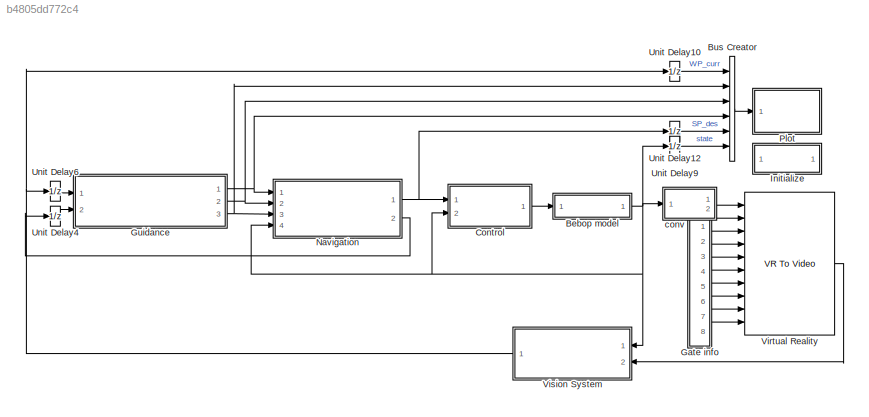
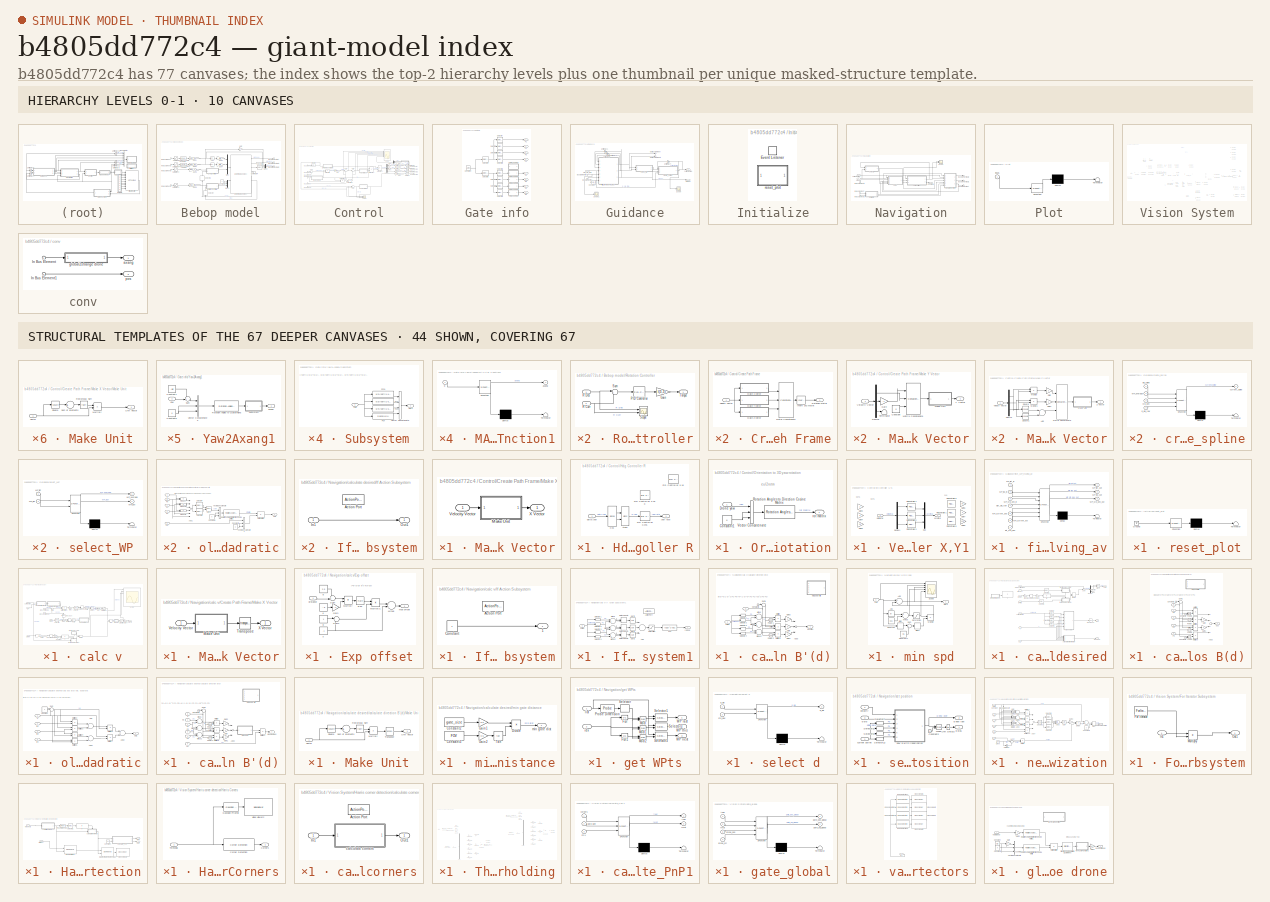
[diagram: thumbnail index - top-2 hierarchy levels (10 canvases) + 44 structural-template representatives of the remaining 67 canvases]
MODEL slx_b4805dd772c4
KIND model
CONFIG AbsTol = 10
CONFIG EnableMultiTasking = off
CONFIG FixedStep = .04
CONFIG MaxStep = 1.00
CONFIG MinStep = 0.005
CONFIG RelTol = 10
CONFIG SampleTimeConstraint = Unconstrained
CONFIG Solver = VariableStepAuto
CONFIG SolverName = VariableStepAuto
CONFIG StartTime = 0.0
CONFIG StopTime = 50
BLOCK [SubSystem] Bebop model
  Ports = [1, 1]
  RequestExecContextInheritance = off
BLOCK [Reference] Bebop model/6DOF (Euler Angles)  REF=shared6dof/6DOF (Euler Angles)
  Ports = [2, 8]
  SourceBlock = shared6dof/6DOF (Euler Angles)
  SourceProductBaseCode = AE
  SourceProductName = Aerospace Blockset
  SourceType = 6DOF EoM (Body Axis)
BLOCK [Outport] Bebop model/Bus Element Out
  IconDisplay = Port number
BLOCK [Outport] Bebop model/Bus Element Out1
  IconDisplay = Port number
BLOCK [Outport] Bebop model/Bus Element Out2
  IconDisplay = Port number
BLOCK [Constant] Bebop model/Constant2
  Value = 0
BLOCK [Gain] Bebop model/Gain
  Gain = -1
  OutDataTypeStr = Inherit: Inherit via internal rule
  ParamDataTypeStr = Inherit: Inherit via internal rule
  SaturateOnIntegerOverflow = off
BLOCK [Gain] Bebop model/Gain1
  Gain = max_theta_X
  OutDataTypeStr = Inherit: Inherit via internal rule
  ParamDataTypeStr = Inherit: Inherit via internal rule
  SaturateOnIntegerOverflow = off
BLOCK [Gain] Bebop model/Gain2
  Gain = max_theta_Y
  OutDataTypeStr = Inherit: Inherit via internal rule
  ParamDataTypeStr = Inherit: Inherit via internal rule
  SaturateOnIntegerOverflow = off
BLOCK [Gain] Bebop model/Gain3
  Gain = m*g
  OutDataTypeStr = Inherit: Inherit via internal rule
  ParamDataTypeStr = Inherit: Inherit via internal rule
  SaturateOnIntegerOverflow = off
BLOCK [Gain] Bebop model/Gain4
  Gain = m*g
  OutDataTypeStr = Inherit: Inherit via internal rule
  ParamDataTypeStr = Inherit: Inherit via internal rule
  SaturateOnIntegerOverflow = off
BLOCK [Gain] Bebop model/Gain5
  Gain = max_v_Z
  OutDataTypeStr = Inherit: Inherit via internal rule
  ParamDataTypeStr = Inherit: Inherit via internal rule
  SaturateOnIntegerOverflow = off
BLOCK [Gain] Bebop model/Gain6
  Gain = max_rot_Z
  OutDataTypeStr = Inherit: Inherit via internal rule
  ParamDataTypeStr = Inherit: Inherit via internal rule
  SaturateOnIntegerOverflow = off
BLOCK [Inport] Bebop model/In Bus Element
  IconDisplay = Port number
BLOCK [Inport] Bebop model/In Bus Element1
  IconDisplay = Port number
BLOCK [Inport] Bebop model/In Bus Element2
  IconDisplay = Port number
BLOCK [Inport] Bebop model/In Bus Element3
  IconDisplay = Port number
BLOCK [Reference] Bebop model/Linear Second-Order Actuator  REF=aerolibactuator/Linear Second-Order Actuator
  Ports = [1, 1]
  SourceBlock = aerolibactuator/Linear Second-Order Actuator
  SourceProductBaseCode = AE
  SourceProductName = Aerospace Blockset
  SourceType = LinearSecondOrderActuator
BLOCK [Reference] Bebop model/Linear Second-Order Actuator1  REF=aerolibactuator/Linear Second-Order Actuator
  Ports = [1, 1]
  SourceBlock = aerolibactuator/Linear Second-Order Actuator
  SourceProductBaseCode = AE
  SourceProductName = Aerospace Blockset
  SourceType = LinearSecondOrderActuator
BLOCK [Mux] Bebop model/Mux
  DisplayOption = bar
  Inputs = 3
  Ports = [3, 1]
BLOCK [Mux] Bebop model/Mux1
  DisplayOption = bar
  Inputs = 3
  Ports = [3, 1]
BLOCK [Mux] Bebop model/Mux2
  DisplayOption = bar
  Inputs = 3
  Ports = [3, 1]
BLOCK [SubSystem] Bebop model/Rotation Controller
  Ports = [2, 1]
  RequestExecContextInheritance = off
BLOCK [Gain] Bebop model/Rotation Controller/Gain
  Gain = I(3,3)
  OutDataTypeStr = Inherit: Inherit via internal rule
  ParamDataTypeStr = Inherit: Inherit via internal rule
  SaturateOnIntegerOverflow = off
BLOCK [Reference] Bebop model/Rotation Controller/PID Controller  REF=simulink/Continuous/PID Controller
  Ports = [1, 1]
  SourceBlock = simulink/Continuous/PID Controller
  SourceProductBaseCode = SL
  SourceProductName = Simulink
  SourceType = PID 1dof
BLOCK [Inport] Bebop model/Rotation Controller/R Curr
  IconDisplay = Port number
  Port = 2
BLOCK [Inport] Bebop model/Rotation Controller/R Des
  IconDisplay = Port number
BLOCK [Scope] Bebop model/Rotation Controller/Scope
  Floating = off
  NumInputPorts = 2
  Ports = [2]
  ScopeSpecificationString = Simulink.scopes.TimeScopeBlockCfg('CurrentConfiguration', extmgr.ConfigurationSet(extmgr.Configuration('Core','General UI',true),extmgr.Configuration('Core','Source UI',true),extmgr.Configuration('Sources','WiredSimulink',true,'DataLoggingVariableName','ScopeData5'),extmgr.Configuration('Visuals','Time Domain',true,'SerializedDisplays',{struct('MinYLimReal','-1.00000','MaxYLimReal','1.00000','YLab...<+1373ch>
BLOCK [Sum] Bebop model/Rotation Controller/Sum
  IconShape = round
  InputSameDT = off
  Inputs = |+-
  OutDataTypeStr = Inherit: Inherit via internal rule
  Ports = [2, 1]
  SaturateOnIntegerOverflow = off
BLOCK [Outport] Bebop model/Rotation Controller/Torque
  IconDisplay = Port number
BLOCK [Saturate] Bebop model/Saturation
  InputPortMap = u0
  LowerLimit = -1
  Ports = [1, 1]
  UpperLimit = 1
BLOCK [Saturate] Bebop model/Saturation1
  InputPortMap = u0
  LowerLimit = -1
  Ports = [1, 1]
  UpperLimit = 1
BLOCK [Saturate] Bebop model/Saturation2
  InputPortMap = u0
  LowerLimit = -1
  Ports = [1, 1]
  UpperLimit = 1
BLOCK [Saturate] Bebop model/Saturation3
  InputPortMap = u0
  LowerLimit = -1
  Ports = [1, 1]
  UpperLimit = 1
BLOCK [Selector] Bebop model/Selector
  IndexOptions = Index vector (dialog)
  Indices = 3
  InputPortWidth = 3
  OutputSizes = 1
  Ports = [1, 1]
BLOCK [Selector] Bebop model/Selector1
  IndexOptions = Index vector (dialog)
  Indices = 3
  InputPortWidth = 3
  OutputSizes = 1
  Ports = [1, 1]
BLOCK [Selector] Bebop model/Selector2
  IndexOptions = Index vector (dialog)
  Indices = 3
  InputPortWidth = 3
  OutputSizes = 1
  Ports = [1, 1]
BLOCK [Trigonometry] Bebop model/Tan
  Operator = tan
  Ports = [1, 1]
BLOCK [Trigonometry] Bebop model/Tan1
  Operator = tan
  Ports = [1, 1]
BLOCK [Terminator] Bebop model/Terminator4
BLOCK [SubSystem] Bebop model/Z Vel Controller
  Ports = [2, 1]
  RequestExecContextInheritance = off
BLOCK [Outport] Bebop model/Z Vel Controller/Fz
  IconDisplay = Port number
BLOCK [Gain] Bebop model/Z Vel Controller/Gain
  Gain = m
  OutDataTypeStr = Inherit: Inherit via internal rule
  ParamDataTypeStr = Inherit: Inherit via internal rule
  SaturateOnIntegerOverflow = off
BLOCK [Reference] Bebop model/Z Vel Controller/PID Controller  REF=simulink/Continuous/PID Controller
  Ports = [1, 1]
  SourceBlock = simulink/Continuous/PID Controller
  SourceProductBaseCode = SL
  SourceProductName = Simulink
  SourceType = PID 1dof
BLOCK [Scope] Bebop model/Z Vel Controller/Scope
  Floating = off
  NumInputPorts = 2
  Ports = [2]
  ScopeSpecificationString = Simulink.scopes.TimeScopeBlockCfg('CurrentConfiguration', extmgr.ConfigurationSet(extmgr.Configuration('Core','General UI',true),extmgr.Configuration('Core','Source UI',true),extmgr.Configuration('Sources','WiredSimulink',true,'DataLoggingVariableName','ScopeData6'),extmgr.Configuration('Visuals','Time Domain',true,'SerializedDisplays',{struct('MinYLimReal','-0.62509','MaxYLimReal','0.62582','YLab...<+1373ch>
BLOCK [Sum] Bebop model/Z Vel Controller/Sum
  IconShape = round
  InputSameDT = off
  Inputs = |+-
  OutDataTypeStr = Inherit: Inherit via internal rule
  Ports = [2, 1]
  SaturateOnIntegerOverflow = off
BLOCK [Inport] Bebop model/Z Vel Controller/Z Curr
  IconDisplay = Port number
  Port = 2
BLOCK [Inport] Bebop model/Z Vel Controller/Z Des
  IconDisplay = Port number
BLOCK [BusCreator] Bus Creator
  DisplayOption = bar
  InheritFromInputs = on
  Inputs = 6
  NonVirtualBus = on
  OutDataTypeStr = Bus: PlotBus
  Ports = [6, 1]
BLOCK [SubSystem] Control
  Ports = [2, 1]
  RequestExecContextInheritance = off
BLOCK [Outport] Control/Bus Element Out
  IconDisplay = Port number
BLOCK [Outport] Control/Bus Element Out1
  IconDisplay = Port number
BLOCK [Outport] Control/Bus Element Out2
  IconDisplay = Port number
BLOCK [Outport] Control/Bus Element Out3
  IconDisplay = Port number
BLOCK [SubSystem] Control/Create Path Frame
  Ports = [1, 1]
  RequestExecContextInheritance = off
BLOCK [Reference] Control/Create Path Frame/Invert 3x3 Matrix  REF=aerolibutil/Invert 
3x3 Matrix
  Ports = [1, 1]
  SourceBlock = aerolibutil/Invert \n3x3 Matrix
  SourceProductBaseCode = AE
  SourceProductName = Aerospace Blockset
  SourceType = Invert 3x3 Matrix
BLOCK [SubSystem] Control/Create Path Frame/Make X Vector
  Ports = [1, 1]
  RequestExecContextInheritance = off
BLOCK [SubSystem] Control/Create Path Frame/Make X Vector/Make Unit
  Ports = [1, 1]
  RequestExecContextInheritance = off
BLOCK [Product] Control/Create Path Frame/Make X Vector/Make Unit/Multiply
  InputSameDT = off
  OutDataTypeStr = Inherit: Inherit via internal rule
  Ports = [2, 1]
  RndMeth = Floor
  SaturateOnIntegerOverflow = off
BLOCK [Sqrt] Control/Create Path Frame/Make X Vector/Make Unit/Reciprocal Sqrt
  Operator = rSqrt
BLOCK [Math] Control/Create Path Frame/Make X Vector/Make Unit/Square
  Operator = square
  Ports = [1, 1]
BLOCK [Sum] Control/Create Path Frame/Make X Vector/Make Unit/Sum of Elements
  InputSameDT = off
  Inputs = +
  OutDataTypeStr = Inherit: Inherit via internal rule
  Ports = [1, 1]
  SaturateOnIntegerOverflow = off
BLOCK [Outport] Control/Create Path Frame/Make X Vector/Make Unit/Unit Vector
  IconDisplay = Port number
BLOCK [Inport] Control/Create Path Frame/Make X Vector/Make Unit/Vector
  IconDisplay = Port number
BLOCK [Inport] Control/Create Path Frame/Make X Vector/Velocity Vector
  IconDisplay = Port number
BLOCK [Outport] Control/Create Path Frame/Make X Vector/X Vector
  IconDisplay = Port number
BLOCK [SubSystem] Control/Create Path Frame/Make Y Vector
  Ports = [1, 1]
  RequestExecContextInheritance = off
BLOCK [Constant] Control/Create Path Frame/Make Y Vector/Constant
  Value = 0
BLOCK [Demux] Control/Create Path Frame/Make Y Vector/Demux
  DisplayOption = bar
  Outputs = 3
  Ports = [1, 3]
BLOCK [Gain] Control/Create Path Frame/Make Y Vector/Gain
  Gain = -1
  OutDataTypeStr = Inherit: Inherit via internal rule
  ParamDataTypeStr = Inherit: Inherit via internal rule
  SaturateOnIntegerOverflow = off
BLOCK [SubSystem] Control/Create Path Frame/Make Y Vector/Make Unit
  Ports = [1, 1]
  RequestExecContextInheritance = off
BLOCK [Product] Control/Create Path Frame/Make Y Vector/Make Unit/Multiply
  InputSameDT = off
  OutDataTypeStr = Inherit: Inherit via internal rule
  Ports = [2, 1]
  RndMeth = Floor
  SaturateOnIntegerOverflow = off
BLOCK [Sqrt] Control/Create Path Frame/Make Y Vector/Make Unit/Reciprocal Sqrt
  Operator = rSqrt
BLOCK [Math] Control/Create Path Frame/Make Y Vector/Make Unit/Square
  Operator = square
  Ports = [1, 1]
BLOCK [Sum] Control/Create Path Frame/Make Y Vector/Make Unit/Sum of Elements
  InputSameDT = off
  Inputs = +
  OutDataTypeStr = Inherit: Inherit via internal rule
  Ports = [1, 1]
  SaturateOnIntegerOverflow = off
BLOCK [Outport] Control/Create Path Frame/Make Y Vector/Make Unit/Unit Vector
  IconDisplay = Port number
BLOCK [Inport] Control/Create Path Frame/Make Y Vector/Make Unit/Vector
  IconDisplay = Port number
BLOCK [Concatenate] Control/Create Path Frame/Make Y Vector/Matrix Concatenate
  Mode = Multidimensional array
  NumInputs = 3
  Ports = [3, 1]
BLOCK [Terminator] Control/Create Path Frame/Make Y Vector/Terminator
BLOCK [Inport] Control/Create Path Frame/Make Y Vector/Velocity Vector
  IconDisplay = Port number
BLOCK [Outport] Control/Create Path Frame/Make Y Vector/Y Vector
  IconDisplay = Port number
BLOCK [SubSystem] Control/Create Path Frame/Make Z Vector
  Ports = [1, 1]
  RequestExecContextInheritance = off
BLOCK [Sum] Control/Create Path Frame/Make Z Vector/Add
  InputSameDT = off
  OutDataTypeStr = Inherit: Inherit via internal rule
  Ports = [2, 1]
  SaturateOnIntegerOverflow = off
BLOCK [Demux] Control/Create Path Frame/Make Z Vector/Demux
  DisplayOption = bar
  Outputs = 3
  Ports = [1, 3]
BLOCK [Gain] Control/Create Path Frame/Make Z Vector/Gain
  Gain = -1
  OutDataTypeStr = Inherit: Inherit via internal rule
  ParamDataTypeStr = Inherit: Inherit via internal rule
  SaturateOnIntegerOverflow = off
BLOCK [Gain] Control/Create Path Frame/Make Z Vector/Gain1
  Gain = -1
  OutDataTypeStr = Inherit: Inherit via internal rule
  ParamDataTypeStr = Inherit: Inherit via internal rule
  SaturateOnIntegerOverflow = off
BLOCK [SubSystem] Control/Create Path Frame/Make Z Vector/Make Unit
  Ports = [1, 1]
  RequestExecContextInheritance = off
BLOCK [Product] Control/Create Path Frame/Make Z Vector/Make Unit/Multiply
  InputSameDT = off
  OutDataTypeStr = Inherit: Inherit via internal rule
  Ports = [2, 1]
  RndMeth = Floor
  SaturateOnIntegerOverflow = off
BLOCK [Sqrt] Control/Create Path Frame/Make Z Vector/Make Unit/Reciprocal Sqrt
  Operator = rSqrt
BLOCK [Math] Control/Create Path Frame/Make Z Vector/Make Unit/Square
  Operator = square
  Ports = [1, 1]
BLOCK [Sum] Control/Create Path Frame/Make Z Vector/Make Unit/Sum of Elements
  InputSameDT = off
  Inputs = +
  OutDataTypeStr = Inherit: Inherit via internal rule
  Ports = [1, 1]
  SaturateOnIntegerOverflow = off
BLOCK [Outport] Control/Create Path Frame/Make Z Vector/Make Unit/Unit Vector
  IconDisplay = Port number
BLOCK [Inport] Control/Create Path Frame/Make Z Vector/Make Unit/Vector
  IconDisplay = Port number
BLOCK [Concatenate] Control/Create Path Frame/Make Z Vector/Matrix Concatenate
  Mode = Multidimensional array
  NumInputs = 3
  Ports = [3, 1]
BLOCK [Product] Control/Create Path Frame/Make Z Vector/Multiply
  InputSameDT = off
  OutDataTypeStr = Inherit: Inherit via internal rule
  Ports = [2, 1]
  RndMeth = Floor
  SaturateOnIntegerOverflow = off
BLOCK [Product] Control/Create Path Frame/Make Z Vector/Multiply1
  InputSameDT = off
  OutDataTypeStr = Inherit: Inherit via internal rule
  Ports = [2, 1]
  RndMeth = Floor
  SaturateOnIntegerOverflow = off
BLOCK [Math] Control/Create Path Frame/Make Z Vector/Square
  Operator = square
  Ports = [1, 1]
BLOCK [Math] Control/Create Path Frame/Make Z Vector/Square1
  Operator = square
  Ports = [1, 1]
BLOCK [Inport] Control/Create Path Frame/Make Z Vector/Velocity Vector
  IconDisplay = Port number
BLOCK [Outport] Control/Create Path Frame/Make Z Vector/Z Vector
  IconDisplay = Port number
BLOCK [Concatenate] Control/Create Path Frame/Matrix Concatenate
  ConcatenateDimension = 2
  Mode = Multidimensional array
  NumInputs = 3
  Ports = [3, 1]
BLOCK [Outport] Control/Create Path Frame/Rotation Matrix
  IconDisplay = Port number
BLOCK [Inport] Control/Create Path Frame/Velocity Vector
  IconDisplay = Port number
BLOCK [Demux] Control/Demux1
  DisplayOption = bar
  Outputs = 3
  Ports = [1, 3]
BLOCK [Gain] Control/Gain
  Gain = 1*[1;1;1]
  OutDataTypeStr = Inherit: Inherit via internal rule
  ParamDataTypeStr = Inherit: Inherit via internal rule
  SaturateOnIntegerOverflow = off
BLOCK [Gain] Control/Gain1
  Gain = 1/max_v_Z
  OutDataTypeStr = Inherit: Inherit via internal rule
  ParamDataTypeStr = Inherit: Inherit via internal rule
  SaturateOnIntegerOverflow = off
BLOCK [Gain] Control/Gain2
  Gain = 1/max_rot_Z
  OutDataTypeStr = Inherit: Inherit via internal rule
  ParamDataTypeStr = Inherit: Inherit via internal rule
  SaturateOnIntegerOverflow = off
BLOCK [Gain] Control/Gain5
  Gain = 1/g
  OutDataTypeStr = Inherit: Inherit via internal rule
  ParamDataTypeStr = Inherit: Inherit via internal rule
  SaturateOnIntegerOverflow = off
BLOCK [Gain] Control/Gain6
  Gain = 1/g
  OutDataTypeStr = Inherit: Inherit via internal rule
  ParamDataTypeStr = Inherit: Inherit via internal rule
  SaturateOnIntegerOverflow = off
BLOCK [Gain] Control/Gain7
  Gain = 1/max_theta_X
  OutDataTypeStr = Inherit: Inherit via internal rule
  ParamDataTypeStr = Inherit: Inherit via internal rule
  SaturateOnIntegerOverflow = off
BLOCK [Gain] Control/Gain8
  Gain = 1/max_theta_Y
  OutDataTypeStr = Inherit: Inherit via internal rule
  ParamDataTypeStr = Inherit: Inherit via internal rule
  SaturateOnIntegerOverflow = off
BLOCK [SubSystem] Control/Hdg Controller R
  Ports = [1, 1]
  RequestExecContextInheritance = off
BLOCK [Trigonometry] Control/Hdg Controller R/Atan2
  Operator = atan2
  Ports = [2, 1]
BLOCK [Trigonometry] Control/Hdg Controller R/Cos
  Operator = sincos
  Ports = [1, 2]
BLOCK [Reference] Control/Hdg Controller R/PID Controller 0.075  REF=simulink/Continuous/PID Controller
  Ports = [1, 1]
  SourceBlock = simulink/Continuous/PID Controller
  SourceProductBaseCode = SL
  SourceProductName = Simulink
  SourceType = PID 1dof
BLOCK [Reference] Control/Hdg Controller R/PID Controller 0.15  REF=simulink/Continuous/PID Controller
  Ports = [1, 1]
  SourceBlock = simulink/Continuous/PID Controller
  SourceProductBaseCode = SL
  SourceProductName = Simulink
  SourceType = PID 1dof
BLOCK [Reference] Control/Hdg Controller R/PID Controller 0.15 p  REF=simulink/Continuous/PID Controller
  Ports = [1, 1]
  SourceBlock = simulink/Continuous/PID Controller
  SourceProductBaseCode = SL
  SourceProductName = Simulink
  SourceType = PID 1dof
BLOCK [Inport] Control/Hdg Controller R/delta yaw
  IconDisplay = Port number
BLOCK [Outport] Control/Hdg Controller R/yaw rate
  IconDisplay = Port number
BLOCK [Inport] Control/In Bus Element
  IconDisplay = Port number
  Port = 2
BLOCK [Inport] Control/In Bus Element1
  IconDisplay = Port number
  Port = 2
BLOCK [Inport] Control/In Bus Element2
  IconDisplay = Port number
  Port = 2
BLOCK [Inport] Control/In Bus Element3
  IconDisplay = Port number
BLOCK [Inport] Control/In Bus Element4
  IconDisplay = Port number
BLOCK [Inport] Control/In Bus Element5
  IconDisplay = Port number
BLOCK [Product] Control/Matrix Multiply
  InputSameDT = off
  Inputs = **
  Multiplication = Matrix(*)
  OutDataTypeStr = Inherit: Inherit via internal rule
  Ports = [2, 1]
  RndMeth = Floor
  SaturateOnIntegerOverflow = off
BLOCK [Product] Control/Matrix Multiply1
  InputSameDT = off
  Inputs = /*
  Multiplication = Matrix(*)
  OutDataTypeStr = Inherit: Inherit via internal rule
  Ports = [2, 1]
  RndMeth = Floor
  SaturateOnIntegerOverflow = off
BLOCK [Product] Control/Matrix Multiply2
  InputSameDT = off
  Inputs = **
  Multiplication = Matrix(*)
  OutDataTypeStr = Inherit: Inherit via internal rule
  Ports = [2, 1]
  RndMeth = Floor
  SaturateOnIntegerOverflow = off
BLOCK [Product] Control/Matrix Multiply3
  InputSameDT = off
  Inputs = **
  Multiplication = Matrix(*)
  OutDataTypeStr = Inherit: Inherit via internal rule
  Ports = [2, 1]
  RndMeth = Floor
  SaturateOnIntegerOverflow = off
BLOCK [Product] Control/Matrix Multiply5
  InputSameDT = off
  Inputs = **
  Multiplication = Matrix(*)
  OutDataTypeStr = Inherit: Inherit via internal rule
  Ports = [2, 1]
  RndMeth = Floor
  SaturateOnIntegerOverflow = off
BLOCK [Mux] Control/Mux
  DisplayOption = bar
  Ports = [4, 1]
BLOCK [SubSystem] Control/Orientation to 3D yaw rotation
  Ports = [1, 1]
  RequestExecContextInheritance = off
BLOCK [Constant] Control/Orientation to 3D yaw rotation/Constant1
  Value = 0
BLOCK [Inport] Control/Orientation to 3D yaw rotation/Drone yaw
  IconDisplay = Port number
BLOCK [Reference] Control/Orientation to 3D yaw rotation/Rotation Angles to Direction Cosine Matrix  REF=sharedtransform/Rotation Angles to
Direction Cosine Matrix
  AttributesFormatString = Rotation Order: %<rotationOrder>
  Ports = [1, 1]
  SourceBlock = sharedtransform/Rotation Angles to\nDirection Cosine Matrix
  SourceProductBaseCode = AE
  SourceProductName = Aerospace Blockset
  SourceType = Ang2DCM
BLOCK [Concatenate] Control/Orientation to 3D yaw rotation/Vector Concatenate
  NumInputs = 3
  Ports = [3, 1]
BLOCK [Outport] Control/Orientation to 3D yaw rotation/rot matrix
  IconDisplay = Port number
BLOCK [Saturate] Control/Saturation
  Commented = through
  InputPortMap = u0
  LowerLimit = -1
  Ports = [1, 1]
  UpperLimit = 1
BLOCK [Saturate] Control/Saturation1
  Commented = through
  InputPortMap = u0
  LowerLimit = -1
  Ports = [1, 1]
  UpperLimit = 1
BLOCK [Saturate] Control/Saturation2
  Commented = through
  InputPortMap = u0
  LowerLimit = -1
  Ports = [1, 1]
  UpperLimit = 1
BLOCK [Saturate] Control/Saturation3
  Commented = through
  InputPortMap = u0
  LowerLimit = -1
  Ports = [1, 1]
  UpperLimit = 1
BLOCK [Scope] Control/Scope
  Commented = on
  Floating = off
  NumInputPorts = 10
  Ports = [10]
  ScopeSpecificationString = Simulink.scopes.TimeScopeBlockCfg('CurrentConfiguration', extmgr.ConfigurationSet(extmgr.Configuration('Core','General UI',true),extmgr.Configuration('Core','Source UI',true),extmgr.Configuration('Sources','WiredSimulink',true,'DataLoggingVariableName','ScopeData3'),extmgr.Configuration('Visuals','Time Domain',true,'SerializedDisplays',{struct('MinYLimReal','-0.56825','MaxYLimReal','0.2559','YLabe...<+2273ch>
BLOCK [Scope] Control/Scope1
  Commented = on
  Floating = off
  NumInputPorts = 4
  Ports = [4]
  ScopeSpecificationString = Simulink.scopes.TimeScopeBlockCfg('CurrentConfiguration', extmgr.ConfigurationSet(extmgr.Configuration('Core','General UI',true),extmgr.Configuration('Core','Source UI',true),extmgr.Configuration('Sources','WiredSimulink',true,'DataLoggingVariableName','ScopeData4'),extmgr.Configuration('Visuals','Time Domain',true,'SerializedDisplays',{struct('MinYLimReal','-3.46855','MaxYLimReal','3.66777','YLab...<+1545ch>
BLOCK [Selector] Control/Selector2
  IndexMode = Zero-based
  IndexOptions = Index vector (dialog)
  Indices = 2
  InputPortWidth = 3
  OutputSizes = 1
  Ports = [1, 1]
BLOCK [Sum] Control/Sum1
  IconShape = round
  InputSameDT = off
  Inputs = |+-
  OutDataTypeStr = Inherit: Inherit via internal rule
  Ports = [2, 1]
  SaturateOnIntegerOverflow = off
BLOCK [Sum] Control/Sum2
  IconShape = round
  InputSameDT = off
  Inputs = |++
  OutDataTypeStr = Inherit: Inherit via internal rule
  Ports = [2, 1]
  SaturateOnIntegerOverflow = off
BLOCK [Sum] Control/Sum3
  IconShape = round
  InputSameDT = off
  Inputs = |+-
  OutDataTypeStr = Inherit: Inherit via internal rule
  Ports = [2, 1]
  SaturateOnIntegerOverflow = off
BLOCK [Sum] Control/Sum4
  IconShape = round
  InputSameDT = off
  Inputs = |+-
  OutDataTypeStr = Inherit: Inherit via internal rule
  Ports = [2, 1]
  SaturateOnIntegerOverflow = off
BLOCK [SubSystem] Control/Vel Controller X,Y1
  Ports = [1, 1]
  RequestExecContextInheritance = off
BLOCK [Demux] Control/Vel Controller X,Y1/Demux1
  DisplayOption = bar
  Outputs = 3
  Ports = [1, 3]
BLOCK [Gain] Control/Vel Controller X,Y1/Gain3
  Gain = 2
  OutDataTypeStr = Inherit: Inherit via internal rule
  ParamDataTypeStr = Inherit: Inherit via internal rule
  SaturateOnIntegerOverflow = off
BLOCK [Gain] Control/Vel Controller X,Y1/Gain4
  Gain = 8
  OutDataTypeStr = Inherit: Inherit via internal rule
  ParamDataTypeStr = Inherit: Inherit via internal rule
  SaturateOnIntegerOverflow = off
BLOCK [Gain] Control/Vel Controller X,Y1/Gain5
  Gain = 2.5
  OutDataTypeStr = Inherit: Inherit via internal rule
  ParamDataTypeStr = Inherit: Inherit via internal rule
  SaturateOnIntegerOverflow = off
BLOCK [Gain] Control/Vel Controller X,Y1/Gain6
  Gain = .75
  OutDataTypeStr = Inherit: Inherit via internal rule
  ParamDataTypeStr = Inherit: Inherit via internal rule
  SaturateOnIntegerOverflow = off
BLOCK [Gain] Control/Vel Controller X,Y1/Gain7
  Gain = 3
  OutDataTypeStr = Inherit: Inherit via internal rule
  ParamDataTypeStr = Inherit: Inherit via internal rule
  SaturateOnIntegerOverflow = off
BLOCK [Gain] Control/Vel Controller X,Y1/Gain8
  Gain = 1.25
  OutDataTypeStr = Inherit: Inherit via internal rule
  ParamDataTypeStr = Inherit: Inherit via internal rule
  SaturateOnIntegerOverflow = off
BLOCK [Mux] Control/Vel Controller X,Y1/Mux
  DisplayOption = bar
  Inputs = 3
  Ports = [3, 1]
BLOCK [Reference] Control/Vel Controller X,Y1/PID Controller1  REF=simulink/Continuous/PID Controller
  Ports = [1, 1]
  SourceBlock = simulink/Continuous/PID Controller
  SourceProductBaseCode = SL
  SourceProductName = Simulink
  SourceType = PID 1dof
BLOCK [Reference] Control/Vel Controller X,Y1/PID Controller2  REF=simulink/Continuous/PID Controller
  Ports = [1, 1]
  SourceBlock = simulink/Continuous/PID Controller
  SourceProductBaseCode = SL
  SourceProductName = Simulink
  SourceType = PID 1dof
BLOCK [Reference] Control/Vel Controller X,Y1/PID Controller3  REF=simulink/Continuous/PID Controller
  Ports = [1, 1]
  SourceBlock = simulink/Continuous/PID Controller
  SourceProductBaseCode = SL
  SourceProductName = Simulink
  SourceType = PID 1dof
BLOCK [Reference] Control/Vel Controller X,Y1/PID Controller4  REF=simulink/Continuous/PID Controller
  Ports = [1, 1]
  SourceBlock = simulink/Continuous/PID Controller
  SourceProductBaseCode = SL
  SourceProductName = Simulink
  SourceType = PID 1dof
BLOCK [Reference] Control/Vel Controller X,Y1/PID Controller5  REF=simulink/Continuous/PID Controller
  Ports = [1, 1]
  SourceBlock = simulink/Continuous/PID Controller
  SourceProductBaseCode = SL
  SourceProductName = Simulink
  SourceType = PID 1dof
BLOCK [Reference] Control/Vel Controller X,Y1/PID Controller6  REF=simulink/Continuous/PID Controller
  Ports = [1, 1]
  SourceBlock = simulink/Continuous/PID Controller
  SourceProductBaseCode = SL
  SourceProductName = Simulink
  SourceType = PID 1dof
BLOCK [Outport] Control/Vel Controller X,Y1/accel traj
  IconDisplay = Port number
BLOCK [Inport] Control/Vel Controller X,Y1/delta V traj
  IconDisplay = Port number
BLOCK [SubSystem] Gate info
  Ports = [0, 8]
  RequestExecContextInheritance = off
BLOCK [Constant] Gate info/Constant
  Value = gates
BLOCK [Outport] Gate info/O1
  IconDisplay = Port number
BLOCK [Outport] Gate info/O2
  IconDisplay = Port number
  Port = 3
BLOCK [Outport] Gate info/O3
  IconDisplay = Port number
  Port = 5
BLOCK [Outport] Gate info/O4
  IconDisplay = Port number
  Port = 7
BLOCK [Outport] Gate info/P1
  IconDisplay = Port number
  Port = 2
BLOCK [Outport] Gate info/P2
  IconDisplay = Port number
  Port = 4
BLOCK [Outport] Gate info/P3
  IconDisplay = Port number
  Port = 6
BLOCK [Outport] Gate info/P4
  IconDisplay = Port number
  Port = 8
BLOCK [Selector] Gate info/Selector
  IndexMode = Zero-based
  IndexOptions = Index vector (dialog),Select all
  Indices = 0,1
  InputPortWidth = 3
  NumberOfDimensions = 2
  OutputSizes = 1,1
  Ports = [1, 1]
BLOCK [Selector] Gate info/Selector1
  IndexMode = Zero-based
  IndexOptions = Index vector (dialog),Select all
  Indices = 1,1
  InputPortWidth = 3
  NumberOfDimensions = 2
  OutputSizes = 1,1
  Ports = [1, 1]
BLOCK [Selector] Gate info/Selector2
  IndexMode = Zero-based
  IndexOptions = Index vector (dialog),Select all
  Indices = 2,1
  InputPortWidth = 3
  NumberOfDimensions = 2
  OutputSizes = 1,1
  Ports = [1, 1]
BLOCK [Selector] Gate info/Selector3
  IndexMode = Zero-based
  IndexOptions = Index vector (dialog),Select all
  Indices = 3,1
  InputPortWidth = 3
  NumberOfDimensions = 2
  OutputSizes = 1,1
  Ports = [1, 1]
BLOCK [Selector] Gate info/Selector4
  IndexMode = Zero-based
  IndexOptions = Select all,Index vector (dialog)
  Indices = 4,[0 1 2]
  InputPortWidth = 3
  NumberOfDimensions = 2
  OutputSizes = 1,1
  Ports = [1, 1]
BLOCK [Selector] Gate info/Selector5
  IndexMode = Zero-based
  IndexOptions = Select all,Index vector (dialog)
  Indices = 4,3
  InputPortWidth = 3
  NumberOfDimensions = 2
  OutputSizes = 1,1
  Ports = [1, 1]
BLOCK [Selector] Gate info/Selector6
  IndexMode = Zero-based
  IndexOptions = Index vector (dialog),Select all
  Indices = 0,1
  InputPortWidth = 3
  NumberOfDimensions = 2
  OutputSizes = 1,1
  Ports = [1, 1]
BLOCK [Selector] Gate info/Selector7
  IndexMode = Zero-based
  IndexOptions = Index vector (dialog),Select all
  Indices = 1,1
  InputPortWidth = 3
  NumberOfDimensions = 2
  OutputSizes = 1,1
  Ports = [1, 1]
BLOCK [Selector] Gate info/Selector8
  IndexMode = Zero-based
  IndexOptions = Index vector (dialog),Select all
  Indices = 2,1
  InputPortWidth = 3
  NumberOfDimensions = 2
  OutputSizes = 1,1
  Ports = [1, 1]
BLOCK [Selector] Gate info/Selector9
  IndexMode = Zero-based
  IndexOptions = Index vector (dialog),Select all
  Indices = 3,1
  InputPortWidth = 3
  NumberOfDimensions = 2
  OutputSizes = 1,1
  Ports = [1, 1]
BLOCK [SubSystem] Gate info/Yaw2Axang1
  Ports = [1, 1]
  RequestExecContextInheritance = off
BLOCK [Constant] Gate info/Yaw2Axang1/Constant6
  Value = 0
BLOCK [Constant] Gate info/Yaw2Axang1/Constant7
  Value = -pi/2
BLOCK [Reference] Gate info/Yaw2Axang1/Rotation Angles to Quaternions  REF=sharedtransform/Rotation Angles to Quaternions
  AttributesFormatString = Rotation Order: %<rotationOrder>
  Ports = [1, 1]
  SourceBlock = sharedtransform/Rotation Angles to Quaternions
  SourceProductBaseCode = AE
  SourceProductName = Aerospace Blockset
  SourceType = Ang2Quat
BLOCK [SubSystem] Gate info/Yaw2Axang1/Subsystem
  Ports = [1, 1]
  RequestExecContextInheritance = off
BLOCK [Fcn] Gate info/Yaw2Axang1/Subsystem/Fcn
  Expr = 2*acos(u(1))
BLOCK [Fcn] Gate info/Yaw2Axang1/Subsystem/Fcn1
  Expr = u(2)/sqrt(1-u(1)*u(1))
BLOCK [Fcn] Gate info/Yaw2Axang1/Subsystem/Fcn2
  Expr = u(3)/sqrt(1-u(1)*u(1))
BLOCK [Fcn] Gate info/Yaw2Axang1/Subsystem/Fcn3
  Expr = u(4)/sqrt(1-u(1)*u(1))
BLOCK [Inport] Gate info/Yaw2Axang1/Subsystem/In1
  IconDisplay = Port number
BLOCK [Outport] Gate info/Yaw2Axang1/Subsystem/Out1
  IconDisplay = Port number
BLOCK [Concatenate] Gate info/Yaw2Axang1/Subsystem/Vector Concatenate
  NumInputs = 4
  Ports = [4, 1]
BLOCK [Sum] Gate info/Yaw2Axang1/Sum
  IconShape = round
  InputSameDT = off
  Inputs = ++|
  OutDataTypeStr = Inherit: Inherit via internal rule
  Ports = [2, 1]
  SaturateOnIntegerOverflow = off
BLOCK [Concatenate] Gate info/Yaw2Axang1/Vector Concatenate2
  NumInputs = 3
  Ports = [3, 1]
BLOCK [Inport] Gate info/Yaw2Axang1/Yaw
  IconDisplay = Port number
BLOCK [Outport] Gate info/Yaw2Axang1/axang
  IconDisplay = Port number
BLOCK [SubSystem] Gate info/Yaw2Axang2
  Ports = [1, 1]
  RequestExecContextInheritance = off
BLOCK [Constant] Gate info/Yaw2Axang2/Constant6
  Value = 0
BLOCK [Constant] Gate info/Yaw2Axang2/Constant7
  Value = -pi/2
BLOCK [Reference] Gate info/Yaw2Axang2/Rotation Angles to Quaternions  REF=sharedtransform/Rotation Angles to Quaternions
  AttributesFormatString = Rotation Order: %<rotationOrder>
  Ports = [1, 1]
  SourceBlock = sharedtransform/Rotation Angles to Quaternions
  SourceProductBaseCode = AE
  SourceProductName = Aerospace Blockset
  SourceType = Ang2Quat
BLOCK [SubSystem] Gate info/Yaw2Axang2/Subsystem
  Ports = [1, 1]
  RequestExecContextInheritance = off
BLOCK [Fcn] Gate info/Yaw2Axang2/Subsystem/Fcn
  Expr = 2*acos(u(1))
BLOCK [Fcn] Gate info/Yaw2Axang2/Subsystem/Fcn1
  Expr = u(2)/sqrt(1-u(1)*u(1))
BLOCK [Fcn] Gate info/Yaw2Axang2/Subsystem/Fcn2
  Expr = u(3)/sqrt(1-u(1)*u(1))
BLOCK [Fcn] Gate info/Yaw2Axang2/Subsystem/Fcn3
  Expr = u(4)/sqrt(1-u(1)*u(1))
BLOCK [Inport] Gate info/Yaw2Axang2/Subsystem/In1
  IconDisplay = Port number
BLOCK [Outport] Gate info/Yaw2Axang2/Subsystem/Out1
  IconDisplay = Port number
BLOCK [Concatenate] Gate info/Yaw2Axang2/Subsystem/Vector Concatenate
  NumInputs = 4
  Ports = [4, 1]
BLOCK [Sum] Gate info/Yaw2Axang2/Sum
  IconShape = round
  InputSameDT = off
  Inputs = ++|
  OutDataTypeStr = Inherit: Inherit via internal rule
  Ports = [2, 1]
  SaturateOnIntegerOverflow = off
BLOCK [Concatenate] Gate info/Yaw2Axang2/Vector Concatenate2
  NumInputs = 3
  Ports = [3, 1]
BLOCK [Inport] Gate info/Yaw2Axang2/Yaw
  IconDisplay = Port number
BLOCK [Outport] Gate info/Yaw2Axang2/axang
  IconDisplay = Port number
BLOCK [SubSystem] Gate info/Yaw2Axang4
  Commented = on
  Ports = [1, 1]
  RequestExecContextInheritance = off
BLOCK [Constant] Gate info/Yaw2Axang4/Constant6
  Value = 0
BLOCK [Constant] Gate info/Yaw2Axang4/Constant7
  Value = -pi/2
BLOCK [SubSystem] Gate info/Yaw2Axang4/MATLAB Function1
  ErrorFcn = Stateflow.Translate.translate
  PermitHierarchicalResolution = ExplicitOnly
  Ports = [1, 1]
  RequestExecContextInheritance = off
  SFBlockType = MATLAB Function
  TreatAsAtomicUnit = on
BLOCK [Demux] Gate info/Yaw2Axang4/MATLAB Function1/ Demux 
  Outputs = 1
  Ports = [1, 1]
BLOCK [S-Function] Gate info/Yaw2Axang4/MATLAB Function1/ SFunction 
  EnableBusSupport = on
  FunctionName = sf_sfun
  PortCounts = [1 2]
  Ports = [1, 2]
  SFcnIsStateOwnerBlock = off
  SFunctionDeploymentMode = off
  Tag = Stateflow S-Function Bebop7_like6_but_spline_only_from_SP 6
BLOCK [Terminator] Gate info/Yaw2Axang4/MATLAB Function1/ Terminator 
BLOCK [Outport] Gate info/Yaw2Axang4/MATLAB Function1/axang
  IconDisplay = Port number
BLOCK [Inport] Gate info/Yaw2Axang4/MATLAB Function1/q
  IconDisplay = Port number
BLOCK [Reference] Gate info/Yaw2Axang4/Rotation Angles to Quaternions  REF=sharedtransform/Rotation Angles to Quaternions
  AttributesFormatString = Rotation Order: %<rotationOrder>
  Ports = [1, 1]
  SourceBlock = sharedtransform/Rotation Angles to Quaternions
  SourceProductBaseCode = AE
  SourceProductName = Aerospace Blockset
  SourceType = Ang2Quat
BLOCK [Sum] Gate info/Yaw2Axang4/Sum
  IconShape = round
  InputSameDT = off
  Inputs = ++|
  OutDataTypeStr = Inherit: Inherit via internal rule
  Ports = [2, 1]
  SaturateOnIntegerOverflow = off
BLOCK [Concatenate] Gate info/Yaw2Axang4/Vector Concatenate2
  NumInputs = 3
  Ports = [3, 1]
BLOCK [Inport] Gate info/Yaw2Axang4/Yaw
  IconDisplay = Port number
BLOCK [Outport] Gate info/Yaw2Axang4/axang
  IconDisplay = Port number
BLOCK [SubSystem] Gate info/Yaw2Axang5
  Ports = [1, 1]
  RequestExecContextInheritance = off
BLOCK [Constant] Gate info/Yaw2Axang5/Constant6
  Value = 0
BLOCK [Constant] Gate info/Yaw2Axang5/Constant7
  Value = -pi/2
BLOCK [Reference] Gate info/Yaw2Axang5/Rotation Angles to Quaternions  REF=sharedtransform/Rotation Angles to Quaternions
  AttributesFormatString = Rotation Order: %<rotationOrder>
  Ports = [1, 1]
  SourceBlock = sharedtransform/Rotation Angles to Quaternions
  SourceProductBaseCode = AE
  SourceProductName = Aerospace Blockset
  SourceType = Ang2Quat
BLOCK [SubSystem] Gate info/Yaw2Axang5/Subsystem
  Ports = [1, 1]
  RequestExecContextInheritance = off
BLOCK [Fcn] Gate info/Yaw2Axang5/Subsystem/Fcn
  Expr = 2*acos(u(1))
BLOCK [Fcn] Gate info/Yaw2Axang5/Subsystem/Fcn1
  Expr = u(2)/sqrt(1-u(1)*u(1))
BLOCK [Fcn] Gate info/Yaw2Axang5/Subsystem/Fcn2
  Expr = u(3)/sqrt(1-u(1)*u(1))
BLOCK [Fcn] Gate info/Yaw2Axang5/Subsystem/Fcn3
  Expr = u(4)/sqrt(1-u(1)*u(1))
BLOCK [Inport] Gate info/Yaw2Axang5/Subsystem/In1
  IconDisplay = Port number
BLOCK [Outport] Gate info/Yaw2Axang5/Subsystem/Out1
  IconDisplay = Port number
BLOCK [Concatenate] Gate info/Yaw2Axang5/Subsystem/Vector Concatenate
  NumInputs = 4
  Ports = [4, 1]
BLOCK [Sum] Gate info/Yaw2Axang5/Sum
  IconShape = round
  InputSameDT = off
  Inputs = ++|
  OutDataTypeStr = Inherit: Inherit via internal rule
  Ports = [2, 1]
  SaturateOnIntegerOverflow = off
BLOCK [Concatenate] Gate info/Yaw2Axang5/Vector Concatenate2
  NumInputs = 3
  Ports = [3, 1]
BLOCK [Inport] Gate info/Yaw2Axang5/Yaw
  IconDisplay = Port number
BLOCK [Outport] Gate info/Yaw2Axang5/axang
  IconDisplay = Port number
BLOCK [SubSystem] Gate info/Yaw2Axang6
  Ports = [1, 1]
  RequestExecContextInheritance = off
BLOCK [Constant] Gate info/Yaw2Axang6/Constant6
  Value = 0
BLOCK [Constant] Gate info/Yaw2Axang6/Constant7
  Value = -pi/2
BLOCK [Reference] Gate info/Yaw2Axang6/Rotation Angles to Quaternions  REF=sharedtransform/Rotation Angles to Quaternions
  AttributesFormatString = Rotation Order: %<rotationOrder>
  Ports = [1, 1]
  SourceBlock = sharedtransform/Rotation Angles to Quaternions
  SourceProductBaseCode = AE
  SourceProductName = Aerospace Blockset
  SourceType = Ang2Quat
BLOCK [SubSystem] Gate info/Yaw2Axang6/Subsystem
  Ports = [1, 1]
  RequestExecContextInheritance = off
BLOCK [Fcn] Gate info/Yaw2Axang6/Subsystem/Fcn
  Expr = 2*acos(u(1))
BLOCK [Fcn] Gate info/Yaw2Axang6/Subsystem/Fcn1
  Expr = u(2)/sqrt(1-u(1)*u(1))
BLOCK [Fcn] Gate info/Yaw2Axang6/Subsystem/Fcn2
  Expr = u(3)/sqrt(1-u(1)*u(1))
BLOCK [Fcn] Gate info/Yaw2Axang6/Subsystem/Fcn3
  Expr = u(4)/sqrt(1-u(1)*u(1))
BLOCK [Inport] Gate info/Yaw2Axang6/Subsystem/In1
  IconDisplay = Port number
BLOCK [Outport] Gate info/Yaw2Axang6/Subsystem/Out1
  IconDisplay = Port number
BLOCK [Concatenate] Gate info/Yaw2Axang6/Subsystem/Vector Concatenate
  NumInputs = 4
  Ports = [4, 1]
BLOCK [Sum] Gate info/Yaw2Axang6/Sum
  IconShape = round
  InputSameDT = off
  Inputs = ++|
  OutDataTypeStr = Inherit: Inherit via internal rule
  Ports = [2, 1]
  SaturateOnIntegerOverflow = off
BLOCK [Concatenate] Gate info/Yaw2Axang6/Vector Concatenate2
  NumInputs = 3
  Ports = [3, 1]
BLOCK [Inport] Gate info/Yaw2Axang6/Yaw
  IconDisplay = Port number
BLOCK [Outport] Gate info/Yaw2Axang6/axang
  IconDisplay = Port number
BLOCK [SubSystem] Guidance
  Ports = [2, 3]
  RequestExecContextInheritance = off
BLOCK [Inport] Guidance/Bus Element In
  IconDisplay = Port number
BLOCK [Inport] Guidance/Bus Element In1
  IconDisplay = Port number
BLOCK [Constant] Guidance/Constant
  Value = init_std_dev
BLOCK [Outport] Guidance/Out Bus Element
  IconDisplay = Port number
  Port = 3
BLOCK [Outport] Guidance/Out Bus Element1
  IconDisplay = Port number
  Port = 3
BLOCK [Scope] Guidance/Scope
  Commented = on
  Floating = off
  NumInputPorts = 1
  Ports = [1]
  ScopeSpecificationString = Simulink.scopes.TimeScopeBlockCfg('CurrentConfiguration', extmgr.ConfigurationSet(extmgr.Configuration('Core','General UI',true),extmgr.Configuration('Core','Source UI',true),extmgr.Configuration('Sources','WiredSimulink',true,'DataLoggingVariableName','ScopeData2'),extmgr.Configuration('Visuals','Time Domain',true,'SerializedDisplays',{struct('MinYLimReal','-6.26319','MaxYLimReal','5.22834','YLab...<+1657ch>
BLOCK [Scope] Guidance/Scope1
  Floating = off
  NumInputPorts = 1
  Ports = [1]
  ScopeSpecificationString = Simulink.scopes.TimeScopeBlockCfg('CurrentConfiguration', extmgr.ConfigurationSet(extmgr.Configuration('Core','General UI',true),extmgr.Configuration('Core','Source UI',true),extmgr.Configuration('Sources','WiredSimulink',true,'DataLoggingVariableName','ScopeData1'),extmgr.Configuration('Visuals','Time Domain',true,'SerializedDisplays',{struct('MinYLimReal','1.91063','MaxYLimReal','2.63808','YLabe...<+1483ch>
BLOCK [UnitDelay] Guidance/Unit Delay1
  InitialCondition = init_std_dev
  InputProcessing = Elements as channels (sample based)
  SampleTime = -1
BLOCK [UnitDelay] Guidance/Unit Delay2
  InputProcessing = Elements as channels (sample based)
  SampleTime = -1
BLOCK [UnitDelay] Guidance/Unit Delay3
  InitialCondition = flightplan
  InputProcessing = Elements as channels (sample based)
  SampleTime = -1
BLOCK [UnitDelay] Guidance/Unit Delay4
  InitialCondition = spline_init
  InputProcessing = Elements as channels (sample based)
  SampleTime = -1
BLOCK [SubSystem] Guidance/create_spline
  ErrorFcn = Stateflow.Translate.translate
  PermitHierarchicalResolution = ExplicitOnly
  Ports = [4, 1]
  RequestExecContextInheritance = off
  SFBlockType = MATLAB Function
  TreatAsAtomicUnit = on
BLOCK [Demux] Guidance/create_spline/ Demux 
  Outputs = 1
  Ports = [1, 1]
BLOCK [S-Function] Guidance/create_spline/ SFunction 
  EnableBusSupport = on
  FunctionName = sf_sfun
  PortCounts = [4 2]
  Ports = [4, 2]
  SFcnIsStateOwnerBlock = off
  SFunctionDeploymentMode = off
  Tag = Stateflow S-Function Bebop7_like6_but_spline_only_from_SP 10
BLOCK [Terminator] Guidance/create_spline/ Terminator 
BLOCK [Inport] Guidance/create_spline/WP_average
  IconDisplay = Port number
  Port = 2
BLOCK [Outport] Guidance/create_spline/current_spline
  IconDisplay = Port number
BLOCK [Inport] Guidance/create_spline/d_old_raw
  IconDisplay = Port number
  Port = 4
BLOCK [Inport] Guidance/create_spline/old_spline
  IconDisplay = Port number
BLOCK [Inport] Guidance/create_spline/std_dev
  IconDisplay = Port number
  Port = 3
BLOCK [Outport] Guidance/current spline
  IconDisplay = Port number
BLOCK [Inport] Guidance/dist_old_raw
  IconDisplay = Port number
  Port = 2
BLOCK [SubSystem] Guidance/filter_WP_moving_av
  ErrorFcn = Stateflow.Translate.translate
  PermitHierarchicalResolution = ExplicitOnly
  Ports = [7, 3]
  RequestExecContextInheritance = off
  SFBlockType = MATLAB Function
  TreatAsAtomicUnit = on
BLOCK [Demux] Guidance/filter_WP_moving_av/ Demux 
  Outputs = 1
  Ports = [1, 1]
BLOCK [S-Function] Guidance/filter_WP_moving_av/ SFunction 
  EnableBusSupport = on
  FunctionName = sf_sfun
  PortCounts = [7 4]
  Ports = [7, 4]
  SFcnIsStateOwnerBlock = off
  SFunctionDeploymentMode = off
  Tag = Stateflow S-Function Bebop7_like6_but_spline_only_from_SP 17
BLOCK [Terminator] Guidance/filter_WP_moving_av/ Terminator 
BLOCK [Inport] Guidance/filter_WP_moving_av/WP_current_eul
  IconDisplay = Port number
  Port = 6
BLOCK [Inport] Guidance/filter_WP_moving_av/WP_current_pos
  IconDisplay = Port number
  Port = 5
BLOCK [Inport] Guidance/filter_WP_moving_av/WP_idx_in
  IconDisplay = Port number
  Port = 2
BLOCK [Outport] Guidance/filter_WP_moving_av/WP_idx_out
  IconDisplay = Port number
  Port = 2
BLOCK [Inport] Guidance/filter_WP_moving_av/WP_list_in
  IconDisplay = Port number
BLOCK [Outport] Guidance/filter_WP_moving_av/WP_list_out
  IconDisplay = Port number
BLOCK [Inport] Guidance/filter_WP_moving_av/WP_std_dev_in
  IconDisplay = Port number
  Port = 3
BLOCK [Outport] Guidance/filter_WP_moving_av/WP_std_dev_out
  IconDisplay = Port number
  Port = 3
BLOCK [Inport] Guidance/filter_WP_moving_av/dist_old_raw
  IconDisplay = Port number
  Port = 4
BLOCK [Inport] Guidance/filter_WP_moving_av/init_std_dev
  IconDisplay = Port number
  Port = 7
BLOCK [SubSystem] Guidance/select_WP
  ErrorFcn = Stateflow.Translate.translate
  PermitHierarchicalResolution = ExplicitOnly
  Ports = [2, 2]
  RequestExecContextInheritance = off
  SFBlockType = MATLAB Function
  TreatAsAtomicUnit = on
BLOCK [Demux] Guidance/select_WP/ Demux 
  Outputs = 1
  Ports = [1, 1]
BLOCK [S-Function] Guidance/select_WP/ SFunction 
  EnableBusSupport = on
  FunctionName = sf_sfun
  PortCounts = [2 3]
  Ports = [2, 3]
  SFcnIsStateOwnerBlock = off
  SFunctionDeploymentMode = off
  Tag = Stateflow S-Function Bebop7_like6_but_spline_only_from_SP 9
BLOCK [Terminator] Guidance/select_WP/ Terminator 
BLOCK [Outport] Guidance/select_WP/WP_average
  IconDisplay = Port number
BLOCK [Inport] Guidance/select_WP/WP_idx
  IconDisplay = Port number
  Port = 2
BLOCK [Outport] Guidance/select_WP/WP_last
  IconDisplay = Port number
  Port = 2
BLOCK [Inport] Guidance/select_WP/WP_list
  IconDisplay = Port number
BLOCK [Outport] Guidance/std dev
  IconDisplay = Port number
  Port = 2
BLOCK [SubSystem] Initialize
  Ports = []
  RequestExecContextInheritance = off
  TreatAsAtomicUnit = on
BLOCK [EventListener] Initialize/Event Listener
  DisableCoverage = on
  EventName = reset
BLOCK [SubSystem] Initialize/reset_plot
  ErrorFcn = Stateflow.Translate.translate
  PermitHierarchicalResolution = ExplicitOnly
  Ports = []
  RequestExecContextInheritance = off
  SFBlockType = MATLAB Function
  TreatAsAtomicUnit = on
BLOCK [Demux] Initialize/reset_plot/ Demux 
  Outputs = 1
  Ports = [1, 1]
BLOCK [Ground] Initialize/reset_plot/ Ground 
BLOCK [S-Function] Initialize/reset_plot/ SFunction 
  EnableBusSupport = on
  FunctionName = sf_sfun
  PortCounts = [1 1]
  Ports = [1, 1]
  SFcnIsStateOwnerBlock = off
  SFunctionDeploymentMode = off
  Tag = Stateflow S-Function Bebop7_like6_but_spline_only_from_SP 3
BLOCK [Terminator] Initialize/reset_plot/ Terminator 
BLOCK [SubSystem] Navigation
  Ports = [4, 2]
  RequestExecContextInheritance = off
BLOCK [Outport] Navigation/Bus Element Out
  IconDisplay = Port number
BLOCK [Outport] Navigation/Bus Element Out1
  IconDisplay = Port number
BLOCK [Outport] Navigation/Bus Element Out2
  IconDisplay = Port number
BLOCK [Inport] Navigation/In Bus Element
  IconDisplay = Port number
  Port = 3
BLOCK [Inport] Navigation/In Bus Element1
  IconDisplay = Port number
  Port = 4
BLOCK [Inport] Navigation/In Bus Element3
  IconDisplay = Port number
  Port = 3
BLOCK [Scope] Navigation/Scope
  Commented = on
  Floating = off
  NumInputPorts = 5
  Ports = [5]
  ScopeSpecificationString = Simulink.scopes.TimeScopeBlockCfg('CurrentConfiguration', extmgr.ConfigurationSet(extmgr.Configuration('Core','General UI',true),extmgr.Configuration('Core','Source UI',true),extmgr.Configuration('Sources','WiredSimulink',true,'DataLoggingVariableName','ScopeData1'),extmgr.Configuration('Visuals','Time Domain',true,'SerializedDisplays',{struct('MinYLimReal','-0.12499','MaxYLimReal','1.12494','YLab...<+1445ch>
BLOCK [SubSystem] Navigation/calc v
  Ports = [6, 1]
  RequestExecContextInheritance = off
BLOCK [Constant] Navigation/calc v/Constant
  Value = std_dev_switch
BLOCK [SubSystem] Navigation/calc v/Create Path Frame
  Ports = [1, 1]
  RequestExecContextInheritance = off
BLOCK [Reference] Navigation/calc v/Create Path Frame/Invert 3x3 Matrix  REF=aerolibutil/Invert 
3x3 Matrix
  Ports = [1, 1]
  SourceBlock = aerolibutil/Invert \n3x3 Matrix
  SourceProductBaseCode = AE
  SourceProductName = Aerospace Blockset
  SourceType = Invert 3x3 Matrix
BLOCK [SubSystem] Navigation/calc v/Create Path Frame/Make X Vector
  Ports = [1, 1]
  RequestExecContextInheritance = off
BLOCK [SubSystem] Navigation/calc v/Create Path Frame/Make X Vector/Make Unit
  Ports = [1, 1]
  RequestExecContextInheritance = off
BLOCK [Product] Navigation/calc v/Create Path Frame/Make X Vector/Make Unit/Multiply
  InputSameDT = off
  OutDataTypeStr = Inherit: Inherit via internal rule
  Ports = [2, 1]
  RndMeth = Floor
  SaturateOnIntegerOverflow = off
BLOCK [Sqrt] Navigation/calc v/Create Path Frame/Make X Vector/Make Unit/Reciprocal Sqrt
  Operator = rSqrt
BLOCK [Math] Navigation/calc v/Create Path Frame/Make X Vector/Make Unit/Square
  Operator = square
  Ports = [1, 1]
BLOCK [Sum] Navigation/calc v/Create Path Frame/Make X Vector/Make Unit/Sum of Elements
  InputSameDT = off
  Inputs = +
  OutDataTypeStr = Inherit: Inherit via internal rule
  Ports = [1, 1]
  SaturateOnIntegerOverflow = off
BLOCK [Outport] Navigation/calc v/Create Path Frame/Make X Vector/Make Unit/Unit Vector
  IconDisplay = Port number
BLOCK [Inport] Navigation/calc v/Create Path Frame/Make X Vector/Make Unit/Vector
  IconDisplay = Port number
BLOCK [Math] Navigation/calc v/Create Path Frame/Make X Vector/Transpose
  Operator = transpose
  Ports = [1, 1]
BLOCK [Inport] Navigation/calc v/Create Path Frame/Make X Vector/Velocity Vector
  IconDisplay = Port number
BLOCK [Outport] Navigation/calc v/Create Path Frame/Make X Vector/X Vector
  IconDisplay = Port number
BLOCK [SubSystem] Navigation/calc v/Create Path Frame/Make Y Vector
  Ports = [1, 1]
  RequestExecContextInheritance = off
BLOCK [Constant] Navigation/calc v/Create Path Frame/Make Y Vector/Constant
  Value = 0
BLOCK [Demux] Navigation/calc v/Create Path Frame/Make Y Vector/Demux
  DisplayOption = bar
  Outputs = 3
  Ports = [1, 3]
BLOCK [Gain] Navigation/calc v/Create Path Frame/Make Y Vector/Gain
  Gain = -1
  OutDataTypeStr = Inherit: Inherit via internal rule
  ParamDataTypeStr = Inherit: Inherit via internal rule
  SaturateOnIntegerOverflow = off
BLOCK [SubSystem] Navigation/calc v/Create Path Frame/Make Y Vector/Make Unit
  Ports = [1, 1]
  RequestExecContextInheritance = off
BLOCK [Product] Navigation/calc v/Create Path Frame/Make Y Vector/Make Unit/Multiply
  InputSameDT = off
  OutDataTypeStr = Inherit: Inherit via internal rule
  Ports = [2, 1]
  RndMeth = Floor
  SaturateOnIntegerOverflow = off
BLOCK [Sqrt] Navigation/calc v/Create Path Frame/Make Y Vector/Make Unit/Reciprocal Sqrt
  Operator = rSqrt
BLOCK [Math] Navigation/calc v/Create Path Frame/Make Y Vector/Make Unit/Square
  Operator = square
  Ports = [1, 1]
BLOCK [Sum] Navigation/calc v/Create Path Frame/Make Y Vector/Make Unit/Sum of Elements
  InputSameDT = off
  Inputs = +
  OutDataTypeStr = Inherit: Inherit via internal rule
  Ports = [1, 1]
  SaturateOnIntegerOverflow = off
BLOCK [Outport] Navigation/calc v/Create Path Frame/Make Y Vector/Make Unit/Unit Vector
  IconDisplay = Port number
BLOCK [Inport] Navigation/calc v/Create Path Frame/Make Y Vector/Make Unit/Vector
  IconDisplay = Port number
BLOCK [Concatenate] Navigation/calc v/Create Path Frame/Make Y Vector/Matrix Concatenate
  Mode = Multidimensional array
  NumInputs = 3
  Ports = [3, 1]
BLOCK [Terminator] Navigation/calc v/Create Path Frame/Make Y Vector/Terminator
BLOCK [Inport] Navigation/calc v/Create Path Frame/Make Y Vector/Velocity Vector
  IconDisplay = Port number
BLOCK [Outport] Navigation/calc v/Create Path Frame/Make Y Vector/Y Vector
  IconDisplay = Port number
BLOCK [SubSystem] Navigation/calc v/Create Path Frame/Make Z Vector
  Ports = [1, 1]
  RequestExecContextInheritance = off
BLOCK [Sum] Navigation/calc v/Create Path Frame/Make Z Vector/Add
  InputSameDT = off
  OutDataTypeStr = Inherit: Inherit via internal rule
  Ports = [2, 1]
  SaturateOnIntegerOverflow = off
BLOCK [Demux] Navigation/calc v/Create Path Frame/Make Z Vector/Demux
  DisplayOption = bar
  Outputs = 3
  Ports = [1, 3]
BLOCK [Gain] Navigation/calc v/Create Path Frame/Make Z Vector/Gain
  Gain = -1
  OutDataTypeStr = Inherit: Inherit via internal rule
  ParamDataTypeStr = Inherit: Inherit via internal rule
  SaturateOnIntegerOverflow = off
BLOCK [Gain] Navigation/calc v/Create Path Frame/Make Z Vector/Gain1
  Gain = -1
  OutDataTypeStr = Inherit: Inherit via internal rule
  ParamDataTypeStr = Inherit: Inherit via internal rule
  SaturateOnIntegerOverflow = off
BLOCK [SubSystem] Navigation/calc v/Create Path Frame/Make Z Vector/Make Unit
  Ports = [1, 1]
  RequestExecContextInheritance = off
BLOCK [Product] Navigation/calc v/Create Path Frame/Make Z Vector/Make Unit/Multiply
  InputSameDT = off
  OutDataTypeStr = Inherit: Inherit via internal rule
  Ports = [2, 1]
  RndMeth = Floor
  SaturateOnIntegerOverflow = off
BLOCK [Sqrt] Navigation/calc v/Create Path Frame/Make Z Vector/Make Unit/Reciprocal Sqrt
  Operator = rSqrt
BLOCK [Math] Navigation/calc v/Create Path Frame/Make Z Vector/Make Unit/Square
  Operator = square
  Ports = [1, 1]
BLOCK [Sum] Navigation/calc v/Create Path Frame/Make Z Vector/Make Unit/Sum of Elements
  InputSameDT = off
  Inputs = +
  OutDataTypeStr = Inherit: Inherit via internal rule
  Ports = [1, 1]
  SaturateOnIntegerOverflow = off
BLOCK [Outport] Navigation/calc v/Create Path Frame/Make Z Vector/Make Unit/Unit Vector
  IconDisplay = Port number
BLOCK [Inport] Navigation/calc v/Create Path Frame/Make Z Vector/Make Unit/Vector
  IconDisplay = Port number
BLOCK [Concatenate] Navigation/calc v/Create Path Frame/Make Z Vector/Matrix Concatenate
  Mode = Multidimensional array
  NumInputs = 3
  Ports = [3, 1]
BLOCK [Product] Navigation/calc v/Create Path Frame/Make Z Vector/Multiply
  InputSameDT = off
  OutDataTypeStr = Inherit: Inherit via internal rule
  Ports = [2, 1]
  RndMeth = Floor
  SaturateOnIntegerOverflow = off
BLOCK [Product] Navigation/calc v/Create Path Frame/Make Z Vector/Multiply1
  InputSameDT = off
  OutDataTypeStr = Inherit: Inherit via internal rule
  Ports = [2, 1]
  RndMeth = Floor
  SaturateOnIntegerOverflow = off
BLOCK [Math] Navigation/calc v/Create Path Frame/Make Z Vector/Square
  Operator = square
  Ports = [1, 1]
BLOCK [Math] Navigation/calc v/Create Path Frame/Make Z Vector/Square1
  Operator = square
  Ports = [1, 1]
BLOCK [Inport] Navigation/calc v/Create Path Frame/Make Z Vector/Velocity Vector
  IconDisplay = Port number
BLOCK [Outport] Navigation/calc v/Create Path Frame/Make Z Vector/Z Vector
  IconDisplay = Port number
BLOCK [Concatenate] Navigation/calc v/Create Path Frame/Matrix Concatenate
  ConcatenateDimension = 2
  Mode = Multidimensional array
  NumInputs = 3
  Ports = [3, 1]
BLOCK [Outport] Navigation/calc v/Create Path Frame/Rotation Matrix
  IconDisplay = Port number
BLOCK [Inport] Navigation/calc v/Create Path Frame/Velocity Vector
  IconDisplay = Port number
BLOCK [Product] Navigation/calc v/Divide1
  InputSameDT = off
  Inputs = */
  OutDataTypeStr = Inherit: Inherit via internal rule
  Ports = [2, 1]
  RndMeth = Floor
  SaturateOnIntegerOverflow = off
BLOCK [DotProduct] Navigation/calc v/Dot Product1
  OutDataTypeStr = Inherit: Inherit via internal rule
BLOCK [DotProduct] Navigation/calc v/Dot Product3
  OutDataTypeStr = Inherit: Inherit via internal rule
BLOCK [SubSystem] Navigation/calc v/Exp offset
  Ports = [1, 1]
  RequestExecContextInheritance = off
BLOCK [Math] Navigation/calc v/Exp offset/Exp
  Ports = [1, 1]
BLOCK [Gain] Navigation/calc v/Exp offset/Gain
  Gain = -1
  OutDataTypeStr = Inherit: Inherit via internal rule
  ParamDataTypeStr = Inherit: Inherit via internal rule
  SaturateOnIntegerOverflow = off
BLOCK [Sum] Navigation/calc v/Exp offset/Minus
  InputSameDT = off
  Inputs = -+
  OutDataTypeStr = Inherit: Inherit via internal rule
  Ports = [2, 1]
  SaturateOnIntegerOverflow = off
BLOCK [Product] Navigation/calc v/Exp offset/Multiply
  InputSameDT = off
  OutDataTypeStr = Inherit: Inherit via internal rule
  Ports = [2, 1]
  RndMeth = Floor
  SaturateOnIntegerOverflow = off
BLOCK [Product] Navigation/calc v/Exp offset/Multiply1
  InputSameDT = off
  OutDataTypeStr = Inherit: Inherit via internal rule
  Ports = [2, 1]
  RndMeth = Floor
  SaturateOnIntegerOverflow = off
BLOCK [Sum] Navigation/calc v/Exp offset/Sum
  IconShape = round
  InputSameDT = off
  Inputs = -+|
  OutDataTypeStr = Inherit: Inherit via internal rule
  Ports = [2, 1]
  SaturateOnIntegerOverflow = off
BLOCK [Sum] Navigation/calc v/Exp offset/Sum1
  IconShape = round
  InputSameDT = off
  Inputs = |-+
  OutDataTypeStr = Inherit: Inherit via internal rule
  Ports = [2, 1]
  SaturateOnIntegerOverflow = off
BLOCK [Constant] Navigation/calc v/Exp offset/b
BLOCK [Constant] Navigation/calc v/Exp offset/d
  Value = 2.5
BLOCK [Inport] Navigation/calc v/Exp offset/distance
  IconDisplay = Port number
BLOCK [Constant] Navigation/calc v/Exp offset/k
  Value = -.8
BLOCK [Outport] Navigation/calc v/Exp offset/max offset
  IconDisplay = Port number
BLOCK [Constant] Navigation/calc v/Exp offset/s
  Value = .1
BLOCK [Fcn] Navigation/calc v/Fcn
  Expr = sqrt(1-u*u)
BLOCK [Gain] Navigation/calc v/Gain1
  Gain = std_dev_factor
  OutDataTypeStr = Inherit: Inherit via internal rule
  ParamDataTypeStr = Inherit: Inherit via internal rule
  SaturateOnIntegerOverflow = off
BLOCK [Gain] Navigation/calc v/Gain2
  Gain = [1 1 1 1/(30*pi/180)]
  OutDataTypeStr = Inherit: Inherit via internal rule
  ParamDataTypeStr = Inherit: Inherit via internal rule
  SaturateOnIntegerOverflow = off
BLOCK [Gain] Navigation/calc v/Gain3
  Gain = [0;1;1]
  OutDataTypeStr = Inherit: Inherit via internal rule
  ParamDataTypeStr = Inherit: Inherit via internal rule
  SaturateOnIntegerOverflow = off
BLOCK [Gain] Navigation/calc v/Gain4
  Gain = max_vel
  OutDataTypeStr = Inherit: Inherit via internal rule
  ParamDataTypeStr = Inherit: Inherit via internal rule
  SaturateOnIntegerOverflow = off
BLOCK [If] Navigation/calc v/If
  IfExpression = u1<=u2
  NumInputs = 2
  Ports = [2, 2]
BLOCK [SubSystem] Navigation/calc v/If Action Subsystem
  Ports = [0, 1, 0, 0, 0, 0, 0, 1]
  RequestExecContextInheritance = off
  TreatAsAtomicUnit = on
BLOCK [Outport] Navigation/calc v/If Action Subsystem/1
  IconDisplay = Port number
BLOCK [ActionPort] Navigation/calc v/If Action Subsystem/Action Port
  ActionType = then
BLOCK [Constant] Navigation/calc v/If Action Subsystem/Constant
BLOCK [SubSystem] Navigation/calc v/If Action Subsystem1
  Ports = [1, 1, 0, 0, 0, 0, 0, 1]
  RequestExecContextInheritance = off
  TreatAsAtomicUnit = on
BLOCK [ActionPort] Navigation/calc v/If Action Subsystem1/Action Port
  ActionType = else
BLOCK [Sum] Navigation/calc v/If Action Subsystem1/Add
  InputSameDT = off
  Inputs = +++
  OutDataTypeStr = Inherit: Inherit via internal rule
  Ports = [3, 1]
  SaturateOnIntegerOverflow = off
BLOCK [DotProduct] Navigation/calc v/If Action Subsystem1/Dot Product1
  OutDataTypeStr = Inherit: Inherit via internal rule
BLOCK [DotProduct] Navigation/calc v/If Action Subsystem1/Dot Product2
  OutDataTypeStr = Inherit: Inherit via internal rule
BLOCK [DotProduct] Navigation/calc v/If Action Subsystem1/Dot Product3
  OutDataTypeStr = Inherit: Inherit via internal rule
BLOCK [Fcn] Navigation/calc v/If Action Subsystem1/Fcn
  Expr = (u/1.5)^2-0.01
BLOCK [Sum] Navigation/calc v/If Action Subsystem1/Minus
  InputSameDT = off
  Inputs = -+
  OutDataTypeStr = Inherit: Inherit via internal rule
  Ports = [2, 1]
  SaturateOnIntegerOverflow = off
BLOCK [Sum] Navigation/calc v/If Action Subsystem1/Minus1
  InputSameDT = off
  Inputs = -+
  OutDataTypeStr = Inherit: Inherit via internal rule
  Ports = [2, 1]
  SaturateOnIntegerOverflow = off
BLOCK [Sum] Navigation/calc v/If Action Subsystem1/Minus2
  InputSameDT = off
  Inputs = -+
  OutDataTypeStr = Inherit: Inherit via internal rule
  Ports = [2, 1]
  SaturateOnIntegerOverflow = off
BLOCK [Saturate] Navigation/calc v/If Action Subsystem1/Saturation
  InputPortMap = u0
  LowerLimit = -1
  Ports = [1, 1]
  UpperLimit = 1.5
BLOCK [Selector] Navigation/calc v/If Action Subsystem1/Selector1
  IndexMode = Zero-based
  IndexOptions = Index vector (dialog),Select all
  Indices = 0,[0 1 2]
  InputPortWidth = 3
  NumberOfDimensions = 2
  OutputSizes = 1,1
  Ports = [1, 1]
BLOCK [Selector] Navigation/calc v/If Action Subsystem1/Selector2
  IndexMode = Zero-based
  IndexOptions = Index vector (dialog),Select all
  Indices = 1,[0 1 2]
  InputPortWidth = 3
  NumberOfDimensions = 2
  OutputSizes = 1,1
  Ports = [1, 1]
BLOCK [Selector] Navigation/calc v/If Action Subsystem1/Selector3
  IndexMode = Zero-based
  IndexOptions = Index vector (dialog),Select all
  Indices = 2,[0 1 2]
  InputPortWidth = 3
  NumberOfDimensions = 2
  OutputSizes = 1,1
  Ports = [1, 1]
BLOCK [Selector] Navigation/calc v/If Action Subsystem1/Selector4
  IndexMode = Zero-based
  IndexOptions = Index vector (dialog),Select all
  Indices = 3,[0 1 2]
  InputPortWidth = 3
  NumberOfDimensions = 2
  OutputSizes = 1,1
  Ports = [1, 1]
BLOCK [Sqrt] Navigation/calc v/If Action Subsystem1/Sqrt1
BLOCK [Sqrt] Navigation/calc v/If Action Subsystem1/Sqrt2
BLOCK [Sqrt] Navigation/calc v/If Action Subsystem1/Sqrt3
BLOCK [Outport] Navigation/calc v/If Action Subsystem1/red vel
  IconDisplay = Port number
BLOCK [Inport] Navigation/calc v/If Action Subsystem1/spline
  IconDisplay = Port number
BLOCK [Product] Navigation/calc v/Matrix Multiply1
  InputSameDT = off
  Inputs = **
  Multiplication = Matrix(*)
  OutDataTypeStr = Inherit: Inherit via internal rule
  Ports = [2, 1]
  RndMeth = Floor
  SaturateOnIntegerOverflow = off
BLOCK [MinMax] Navigation/calc v/Max of Elements
  Function = max
  InputSameDT = off
  Ports = [1, 1]
  SaturateOnIntegerOverflow = off
BLOCK [Merge] Navigation/calc v/Merge
  Ports = [2, 1]
BLOCK [MinMax] Navigation/calc v/Min
  InputSameDT = off
  Inputs = 2
  Ports = [2, 1]
  SaturateOnIntegerOverflow = off
BLOCK [Saturate] Navigation/calc v/Saturation
  Commented = through
  InputPortMap = u0
  LowerLimit = 0.99
  Ports = [1, 1]
  UpperLimit = 1.01
BLOCK [Saturate] Navigation/calc v/Saturation1
  InputPortMap = u0
  LowerLimit = 0
  Ports = [1, 1]
  UpperLimit = 1
BLOCK [Scope] Navigation/calc v/Scope
  Commented = on
  Floating = off
  NumInputPorts = 10
  Ports = [10]
  ScopeSpecificationString = Simulink.scopes.TimeScopeBlockCfg('CurrentConfiguration', extmgr.ConfigurationSet(extmgr.Configuration('Core','General UI',true),extmgr.Configuration('Core','Source UI',true),extmgr.Configuration('Sources','WiredSimulink',true,'DataLoggingVariableName','ScopeData1'),extmgr.Configuration('Visuals','Time Domain',true,'SerializedDisplays',{struct('MinYLimReal','-0.125','MaxYLimReal','1.125','YLabelRe...<+1723ch>
BLOCK [Selector] Navigation/calc v/Selector
  IndexMode = Zero-based
  IndexOptions = Index vector (dialog)
  Indices = [0 1 2]
  InputPortWidth = 3
  OutputSizes = 1
  Ports = [1, 1]
BLOCK [Selector] Navigation/calc v/Selector5
  IndexMode = Zero-based
  IndexOptions = Select all,Index vector (dialog)
  Indices = [1 2 3],[0 1 2]
  InputPortWidth = 4
  NumberOfDimensions = 2
  OutputSizes = 1,1
  Ports = [1, 1]
BLOCK [Sqrt] Navigation/calc v/Sqrt1
BLOCK [Sqrt] Navigation/calc v/Sqrt3
BLOCK [Sum] Navigation/calc v/Sum
  IconShape = round
  InputSameDT = off
  Inputs = |+-
  OutDataTypeStr = Inherit: Inherit via internal rule
  Ports = [2, 1]
  SaturateOnIntegerOverflow = off
BLOCK [Sum] Navigation/calc v/Sum2
  IconShape = round
  InputSameDT = off
  Inputs = -+|
  OutDataTypeStr = Inherit: Inherit via internal rule
  Ports = [2, 1]
  SaturateOnIntegerOverflow = off
BLOCK [Math] Navigation/calc v/Transpose
  Operator = transpose
  Ports = [1, 1]
BLOCK [Inport] Navigation/calc v/WP this
  IconDisplay = Port number
  Port = 4
BLOCK [SubSystem] Navigation/calc v/calculate direction B'(d)
  Ports = [2, 1]
  RequestExecContextInheritance = off
BLOCK [Sum] Navigation/calc v/calculate direction B'(d)/Add3
  InputSameDT = off
  Inputs = +++
  OutDataTypeStr = Inherit: Inherit via internal rule
  Ports = [3, 1]
  SaturateOnIntegerOverflow = off
BLOCK [Constant] Navigation/calc v/calculate direction B'(d)/Constant3
BLOCK [Gain] Navigation/calc v/calculate direction B'(d)/Gain
  Gain = 6
  OutDataTypeStr = Inherit: Inherit via internal rule
  ParamDataTypeStr = Inherit: Inherit via internal rule
  SaturateOnIntegerOverflow = off
BLOCK [Gain] Navigation/calc v/calculate direction B'(d)/Gain1
  Gain = 3
  OutDataTypeStr = Inherit: Inherit via internal rule
  ParamDataTypeStr = Inherit: Inherit via internal rule
  SaturateOnIntegerOverflow = off
BLOCK [Gain] Navigation/calc v/calculate direction B'(d)/Gain2
  Gain = 3
  OutDataTypeStr = Inherit: Inherit via internal rule
  ParamDataTypeStr = Inherit: Inherit via internal rule
  SaturateOnIntegerOverflow = off
BLOCK [Sum] Navigation/calc v/calculate direction B'(d)/Minus
  InputSameDT = off
  Inputs = -+
  OutDataTypeStr = Inherit: Inherit via internal rule
  Ports = [2, 1]
  SaturateOnIntegerOverflow = off
BLOCK [Sum] Navigation/calc v/calculate direction B'(d)/Minus1
  InputSameDT = off
  Inputs = -+
  OutDataTypeStr = Inherit: Inherit via internal rule
  Ports = [2, 1]
  SaturateOnIntegerOverflow = off
BLOCK [Sum] Navigation/calc v/calculate direction B'(d)/Minus2
  InputSameDT = off
  Inputs = -+
  OutDataTypeStr = Inherit: Inherit via internal rule
  Ports = [2, 1]
  SaturateOnIntegerOverflow = off
BLOCK [Product] Navigation/calc v/calculate direction B'(d)/Multiply
  InputSameDT = off
  OutDataTypeStr = Inherit: Inherit via internal rule
  Ports = [2, 1]
  RndMeth = Floor
  SaturateOnIntegerOverflow = off
BLOCK [Product] Navigation/calc v/calculate direction B'(d)/Multiply1
  InputSameDT = off
  Inputs = 3
  OutDataTypeStr = Inherit: Inherit via internal rule
  Ports = [3, 1]
  RndMeth = Floor
  SaturateOnIntegerOverflow = off
BLOCK [Product] Navigation/calc v/calculate direction B'(d)/Multiply8
  InputSameDT = off
  OutDataTypeStr = Inherit: Inherit via internal rule
  Ports = [2, 1]
  RndMeth = Floor
  SaturateOnIntegerOverflow = off
BLOCK [Math] Navigation/calc v/calculate direction B'(d)/Power1
  Operator = square
  Ports = [1, 1]
BLOCK [Math] Navigation/calc v/calculate direction B'(d)/Power2
  Operator = square
  Ports = [1, 1]
BLOCK [Selector] Navigation/calc v/calculate direction B'(d)/Selector1
  IndexMode = Zero-based
  IndexOptions = Index vector (dialog),Select all
  Indices = 0,[0 1 2]
  InputPortWidth = 3
  NumberOfDimensions = 2
  OutputSizes = 1,1
  Ports = [1, 1]
BLOCK [Selector] Navigation/calc v/calculate direction B'(d)/Selector2
  IndexMode = Zero-based
  IndexOptions = Index vector (dialog),Select all
  Indices = 1,[0 1 2]
  InputPortWidth = 3
  NumberOfDimensions = 2
  OutputSizes = 1,1
  Ports = [1, 1]
BLOCK [Selector] Navigation/calc v/calculate direction B'(d)/Selector3
  IndexMode = Zero-based
  IndexOptions = Index vector (dialog),Select all
  Indices = 2,[0 1 2]
  InputPortWidth = 3
  NumberOfDimensions = 2
  OutputSizes = 1,1
  Ports = [1, 1]
BLOCK [Selector] Navigation/calc v/calculate direction B'(d)/Selector4
  IndexMode = Zero-based
  IndexOptions = Index vector (dialog),Select all
  Indices = 3,[0 1 2]
  InputPortWidth = 3
  NumberOfDimensions = 2
  OutputSizes = 1,1
  Ports = [1, 1]
BLOCK [Sum] Navigation/calc v/calculate direction B'(d)/Sum1
  IconShape = round
  InputSameDT = off
  Inputs = |+-
  OutDataTypeStr = Inherit: Inherit via internal rule
  Ports = [2, 1]
  SaturateOnIntegerOverflow = off
BLOCK [Inport] Navigation/calc v/calculate direction B'(d)/d
  IconDisplay = Port number
  Port = 2
BLOCK [Outport] Navigation/calc v/calculate direction B'(d)/direction
  IconDisplay = Port number
BLOCK [SubSystem] Navigation/calc v/calculate direction B'(d)/old, quadratic
  Commented = on
  Ports = [5, 1]
  RequestExecContextInheritance = off
BLOCK [Sum] Navigation/calc v/calculate direction B'(d)/old, quadratic/Add1
  Commented = on
  InputSameDT = off
  Inputs = +--++-
  OutDataTypeStr = Inherit: Inherit via internal rule
  Ports = [6, 1]
  SaturateOnIntegerOverflow = off
BLOCK [Trigonometry] Navigation/calc v/calculate direction B'(d)/old, quadratic/Atan1
  Commented = on
  Operator = atan2
  Ports = [2, 1]
BLOCK [Constant] Navigation/calc v/calculate direction B'(d)/old, quadratic/Constant1
  Commented = on
  Value = 0
BLOCK [Constant] Navigation/calc v/calculate direction B'(d)/old, quadratic/Constant2
  Commented = on
  Value = 0
BLOCK [Product] Navigation/calc v/calculate direction B'(d)/old, quadratic/Matrix Multiply
  Commented = on
  InputSameDT = off
  Inputs = /*
  Multiplication = Matrix(*)
  OutDataTypeStr = Inherit: Inherit via internal rule
  Ports = [2, 1]
  RndMeth = Floor
  SaturateOnIntegerOverflow = off
BLOCK [Outport] Navigation/calc v/calculate direction B'(d)/old, quadratic/Out1
  IconDisplay = Port number
BLOCK [Inport] Navigation/calc v/calculate direction B'(d)/old, quadratic/P0
  IconDisplay = Port number
  Port = 2
BLOCK [Inport] Navigation/calc v/calculate direction B'(d)/old, quadratic/P1
  IconDisplay = Port number
  Port = 3
BLOCK [Inport] Navigation/calc v/calculate direction B'(d)/old, quadratic/P2
  IconDisplay = Port number
  Port = 4
BLOCK [Product] Navigation/calc v/calculate direction B'(d)/old, quadratic/Product
  Commented = on
  InputSameDT = off
  OutDataTypeStr = Inherit: Inherit via internal rule
  Ports = [2, 1]
  RndMeth = Floor
  SaturateOnIntegerOverflow = off
BLOCK [Product] Navigation/calc v/calculate direction B'(d)/old, quadratic/Product1
  Commented = on
  InputSameDT = off
  OutDataTypeStr = Inherit: Inherit via internal rule
  Ports = [2, 1]
  RndMeth = Floor
  SaturateOnIntegerOverflow = off
BLOCK [Product] Navigation/calc v/calculate direction B'(d)/old, quadratic/Product2
  Commented = on
  InputSameDT = off
  OutDataTypeStr = Inherit: Inherit via internal rule
  Ports = [2, 1]
  RndMeth = Floor
  SaturateOnIntegerOverflow = off
BLOCK [Reference] Navigation/calc v/calculate direction B'(d)/old, quadratic/Rotation Angles to Direction Cosine Matrix1  REF=sharedtransform/Rotation Angles to
Direction Cosine Matrix
  AttributesFormatString = Rotation Order: %<rotationOrder>
  Commented = on
  Ports = [1, 1]
  SourceBlock = sharedtransform/Rotation Angles to\nDirection Cosine Matrix
  SourceProductBaseCode = AE
  SourceProductName = Aerospace Blockset
  SourceType = Ang2DCM
BLOCK [Selector] Navigation/calc v/calculate direction B'(d)/old, quadratic/Selector7
  Commented = on
  IndexMode = Zero-based
  IndexOptions = Index vector (dialog)
  Indices = 1
  InputPortWidth = 3
  OutputSizes = 1
  Ports = [1, 1]
BLOCK [Selector] Navigation/calc v/calculate direction B'(d)/old, quadratic/Selector8
  Commented = on
  IndexMode = Zero-based
  IndexOptions = Index vector (dialog)
  Indices = 0
  InputPortWidth = 3
  OutputSizes = 1
  Ports = [1, 1]
BLOCK [Concatenate] Navigation/calc v/calculate direction B'(d)/old, quadratic/Vector Concatenate
  Commented = on
  NumInputs = 3
  Ports = [3, 1]
BLOCK [Concatenate] Navigation/calc v/calculate direction B'(d)/old, quadratic/Vector Concatenate1
  Commented = on
  NumInputs = 3
  Ports = [3, 1]
BLOCK [Inport] Navigation/calc v/calculate direction B'(d)/old, quadratic/d
  IconDisplay = Port number
BLOCK [Inport] Navigation/calc v/calculate direction B'(d)/old, quadratic/vel
  IconDisplay = Port number
  Port = 5
BLOCK [Inport] Navigation/calc v/calculate direction B'(d)/spline
  IconDisplay = Port number
BLOCK [Inport] Navigation/calc v/current spline
  IconDisplay = Port number
BLOCK [Inport] Navigation/calc v/d
  IconDisplay = Port number
  Port = 6
BLOCK [Inport] Navigation/calc v/drone current pos
  IconDisplay = Port number
  Port = 3
BLOCK [Inport] Navigation/calc v/drone desired pos
  IconDisplay = Port number
  Port = 5
BLOCK [SubSystem] Navigation/calc v/min spd
  Ports = [1, 1]
  RequestExecContextInheritance = off
BLOCK [Abs] Navigation/calc v/min spd/Abs
  SaturateOnIntegerOverflow = off
BLOCK [Sum] Navigation/calc v/min spd/Add
  InputSameDT = off
  Inputs = +-
  OutDataTypeStr = Inherit: Inherit via internal rule
  Ports = [2, 1]
  SaturateOnIntegerOverflow = off
BLOCK [Constant] Navigation/calc v/min spd/Constant
  Value = 0.01
BLOCK [Constant] Navigation/calc v/min spd/Constant1
  Value = 0.5
BLOCK [Inport] Navigation/calc v/min spd/In1
  IconDisplay = Port number
BLOCK [Sum] Navigation/calc v/min spd/Minus
  InputSameDT = off
  Inputs = +-
  OutDataTypeStr = Inherit: Inherit via internal rule
  Ports = [2, 1]
  SaturateOnIntegerOverflow = off
BLOCK [Product] Navigation/calc v/min spd/Multiply
  InputSameDT = off
  OutDataTypeStr = Inherit: Inherit via internal rule
  Ports = [2, 1]
  RndMeth = Floor
  SaturateOnIntegerOverflow = off
BLOCK [Outport] Navigation/calc v/min spd/Out1
  IconDisplay = Port number
BLOCK [Saturate] Navigation/calc v/min spd/Saturation
  InputPortMap = u0
  LowerLimit = -1
  Ports = [1, 1]
  UpperLimit = 0
BLOCK [Scope] Navigation/calc v/min spd/Scope
  Floating = off
  NumInputPorts = 7
  Ports = [7]
  ScopeSpecificationString = Simulink.scopes.TimeScopeBlockCfg('CurrentConfiguration', extmgr.ConfigurationSet(extmgr.Configuration('Core','General UI',true),extmgr.Configuration('Core','Source UI',true),extmgr.Configuration('Sources','WiredSimulink',true,'DataLoggingVariableName','ScopeData1'),extmgr.Configuration('Visuals','Time Domain',true,'SerializedDisplays',{struct('MinYLimReal','-0.125','MaxYLimReal','1.125','YLabelRe...<+1606ch>
BLOCK [Signum] Navigation/calc v/min spd/Sign
BLOCK [Signum] Navigation/calc v/min spd/Sign1
BLOCK [Sum] Navigation/calc v/min spd/Sum
  IconShape = round
  InputSameDT = off
  Inputs = |++
  OutDataTypeStr = Inherit: Inherit via internal rule
  Ports = [2, 1]
  SaturateOnIntegerOverflow = off
BLOCK [Inport] Navigation/calc v/std dev
  IconDisplay = Port number
  Port = 2
BLOCK [Outport] Navigation/calc v/velocity
  IconDisplay = Port number
BLOCK [SubSystem] Navigation/calculate desired
  Ports = [7, 3]
  RequestExecContextInheritance = off
BLOCK [Trigonometry] Navigation/calculate desired/Atan2
  Operator = atan2
  Ports = [2, 1]
BLOCK [Demux] Navigation/calculate desired/Demux
  DisplayOption = bar
  Outputs = 3
  Ports = [1, 3]
BLOCK [Gain] Navigation/calculate desired/Gain1
  OutDataTypeStr = Inherit: Inherit via internal rule
  ParamDataTypeStr = Inherit: Inherit via internal rule
  SaturateOnIntegerOverflow = off
BLOCK [Gain] Navigation/calculate desired/Gain2
  Gain = [1 1 1 1/(30*pi/180)]
  OutDataTypeStr = Inherit: Inherit via internal rule
  ParamDataTypeStr = Inherit: Inherit via internal rule
  SaturateOnIntegerOverflow = off
BLOCK [If] Navigation/calculate desired/If
  Commented = on
  IfExpression = u1 < u2
  NumInputs = 2
  Ports = [2, 2]
BLOCK [SubSystem] Navigation/calculate desired/If Action Subsystem
  Ports = [1, 1, 0, 0, 0, 0, 0, 1]
  RequestExecContextInheritance = off
  TreatAsAtomicUnit = on
BLOCK [ActionPort] Navigation/calculate desired/If Action Subsystem/Action Port
  ActionType = then
BLOCK [Inport] Navigation/calculate desired/If Action Subsystem/In1
  IconDisplay = Port number
BLOCK [Outport] Navigation/calculate desired/If Action Subsystem/Out1
  IconDisplay = Port number
BLOCK [SubSystem] Navigation/calculate desired/If Action Subsystem1
  Ports = [1, 1, 0, 0, 0, 0, 0, 1]
  RequestExecContextInheritance = off
  TreatAsAtomicUnit = on
BLOCK [ActionPort] Navigation/calculate desired/If Action Subsystem1/Action Port
  ActionType = else
BLOCK [Inport] Navigation/calculate desired/If Action Subsystem1/In1
  IconDisplay = Port number
BLOCK [Outport] Navigation/calculate desired/If Action Subsystem1/Out1
  IconDisplay = Port number
BLOCK [If] Navigation/calculate desired/If2
  IfExpression = u1<.2
  Ports = [1, 2]
BLOCK [MinMax] Navigation/calculate desired/Max of Elements
  Function = max
  InputSameDT = off
  Ports = [1, 1]
  SaturateOnIntegerOverflow = off
BLOCK [Merge] Navigation/calculate desired/Merge
  Ports = [2, 1]
BLOCK [Selector] Navigation/calculate desired/Selector
  IndexMode = Zero-based
  IndexOptions = Index vector (dialog),Select all
  Indices = 0,[0 1 2]
  InputPortWidth = 3
  NumberOfDimensions = 2
  OutputSizes = 1,1
  Ports = [1, 1]
BLOCK [Selector] Navigation/calculate desired/Selector1
  IndexMode = Zero-based
  IndexOptions = Index vector (dialog),Select all
  Indices = 1,[0 1 2]
  InputPortWidth = 3
  NumberOfDimensions = 2
  OutputSizes = 1,1
  Ports = [1, 1]
BLOCK [Selector] Navigation/calculate desired/Selector2
  IndexMode = Zero-based
  IndexOptions = Select all,Index vector (dialog)
  Indices = [1 2 3],[0 1 2]
  InputPortWidth = 4
  NumberOfDimensions = 2
  OutputSizes = 1,1
  Ports = [1, 1]
BLOCK [Selector] Navigation/calculate desired/Selector3
  IndexMode = Zero-based
  IndexOptions = Index vector (dialog),Select all
  Indices = 2,[0 1 2]
  InputPortWidth = 3
  NumberOfDimensions = 2
  OutputSizes = 1,1
  Ports = [1, 1]
BLOCK [Selector] Navigation/calculate desired/Selector4
  IndexMode = Zero-based
  IndexOptions = Index vector (dialog),Select all
  Indices = 3,[0 1 2]
  InputPortWidth = 3
  NumberOfDimensions = 2
  OutputSizes = 1,1
  Ports = [1, 1]
BLOCK [Selector] Navigation/calculate desired/Selector5
  IndexMode = Zero-based
  IndexOptions = Select all,Index vector (dialog)
  Indices = [1 2 3],[0 1 2]
  InputPortWidth = 4
  NumberOfDimensions = 2
  OutputSizes = 1,1
  Ports = [1, 1]
BLOCK [Sum] Navigation/calculate desired/Sum
  IconShape = round
  InputSameDT = off
  Inputs = -+|
  OutDataTypeStr = Inherit: Inherit via internal rule
  Ports = [2, 1]
  SaturateOnIntegerOverflow = off
BLOCK [Terminator] Navigation/calculate desired/Terminator
BLOCK [Math] Navigation/calculate desired/Transpose
  Operator = transpose
  Ports = [1, 1]
BLOCK [Inport] Navigation/calculate desired/WP next
  IconDisplay = Port number
  Port = 7
BLOCK [Inport] Navigation/calculate desired/WP this
  IconDisplay = Port number
  Port = 6
BLOCK [Outport] Navigation/calculate desired/WP vel des
  IconDisplay = Port number
  Port = 2
BLOCK [SubSystem] Navigation/calculate desired/calc pos B(d)
  Ports = [5, 1]
  RequestExecContextInheritance = off
BLOCK [Sum] Navigation/calculate desired/calc pos B(d)/Add3
  InputSameDT = off
  Inputs = ++++
  OutDataTypeStr = Inherit: Inherit via internal rule
  Ports = [4, 1]
  SaturateOnIntegerOverflow = off
BLOCK [Constant] Navigation/calculate desired/calc pos B(d)/Constant1
BLOCK [Constant] Navigation/calculate desired/calc pos B(d)/Constant2
  Value = 3
BLOCK [Constant] Navigation/calculate desired/calc pos B(d)/Constant3
  Value = 3
BLOCK [Gain] Navigation/calculate desired/calc pos B(d)/Gain
  Gain = 3
  OutDataTypeStr = Inherit: Inherit via internal rule
  ParamDataTypeStr = Inherit: Inherit via internal rule
  SaturateOnIntegerOverflow = off
BLOCK [Gain] Navigation/calculate desired/calc pos B(d)/Gain1
  Gain = 3
  OutDataTypeStr = Inherit: Inherit via internal rule
  ParamDataTypeStr = Inherit: Inherit via internal rule
  SaturateOnIntegerOverflow = off
BLOCK [Product] Navigation/calculate desired/calc pos B(d)/Multiply
  InputSameDT = off
  OutDataTypeStr = Inherit: Inherit via internal rule
  Ports = [2, 1]
  RndMeth = Floor
  SaturateOnIntegerOverflow = off
BLOCK [Product] Navigation/calculate desired/calc pos B(d)/Multiply1
  InputSameDT = off
  Inputs = 3
  OutDataTypeStr = Inherit: Inherit via internal rule
  Ports = [3, 1]
  RndMeth = Floor
  SaturateOnIntegerOverflow = off
BLOCK [Product] Navigation/calculate desired/calc pos B(d)/Multiply8
  InputSameDT = off
  Inputs = 3
  OutDataTypeStr = Inherit: Inherit via internal rule
  Ports = [3, 1]
  RndMeth = Floor
  SaturateOnIntegerOverflow = off
BLOCK [Product] Navigation/calculate desired/calc pos B(d)/Multiply9
  InputSameDT = off
  OutDataTypeStr = Inherit: Inherit via internal rule
  Ports = [2, 1]
  RndMeth = Floor
  SaturateOnIntegerOverflow = off
BLOCK [Inport] Navigation/calculate desired/calc pos B(d)/P0
  IconDisplay = Port number
BLOCK [Inport] Navigation/calculate desired/calc pos B(d)/P1
  IconDisplay = Port number
  Port = 2
BLOCK [Inport] Navigation/calculate desired/calc pos B(d)/P2
  IconDisplay = Port number
  Port = 3
BLOCK [Inport] Navigation/calculate desired/calc pos B(d)/P3
  IconDisplay = Port number
  Port = 4
BLOCK [Math] Navigation/calculate desired/calc pos B(d)/Power
  Operator = square
  Ports = [1, 1]
BLOCK [Math] Navigation/calculate desired/calc pos B(d)/Power1
  Operator = pow
  Ports = [2, 1]
BLOCK [Math] Navigation/calculate desired/calc pos B(d)/Power2
  Operator = square
  Ports = [1, 1]
BLOCK [Math] Navigation/calculate desired/calc pos B(d)/Power3
  Operator = pow
  Ports = [2, 1]
BLOCK [Sum] Navigation/calculate desired/calc pos B(d)/Sum1
  IconShape = round
  InputSameDT = off
  Inputs = |+-
  OutDataTypeStr = Inherit: Inherit via internal rule
  Ports = [2, 1]
  SaturateOnIntegerOverflow = off
BLOCK [Inport] Navigation/calculate desired/calc pos B(d)/d
  IconDisplay = Port number
  Port = 5
BLOCK [SubSystem] Navigation/calculate desired/calc pos B(d)/old, quadratic
  Commented = on
  Ports = [4, 1]
  RequestExecContextInheritance = off
BLOCK [Sum] Navigation/calculate desired/calc pos B(d)/old, quadratic/Add
  Commented = on
  InputSameDT = off
  OutDataTypeStr = Inherit: Inherit via internal rule
  Ports = [2, 1]
  SaturateOnIntegerOverflow = off
BLOCK [Sum] Navigation/calculate desired/calc pos B(d)/old, quadratic/Add1
  Commented = on
  InputSameDT = off
  OutDataTypeStr = Inherit: Inherit via internal rule
  Ports = [2, 1]
  SaturateOnIntegerOverflow = off
BLOCK [Sum] Navigation/calculate desired/calc pos B(d)/old, quadratic/Add2
  Commented = on
  InputSameDT = off
  OutDataTypeStr = Inherit: Inherit via internal rule
  Ports = [2, 1]
  SaturateOnIntegerOverflow = off
BLOCK [Constant] Navigation/calculate desired/calc pos B(d)/old, quadratic/Constant
  Commented = on
BLOCK [Inport] Navigation/calculate desired/calc pos B(d)/old, quadratic/In2
  IconDisplay = Port number
  Port = 2
BLOCK [Inport] Navigation/calculate desired/calc pos B(d)/old, quadratic/In3
  IconDisplay = Port number
  Port = 3
BLOCK [Inport] Navigation/calculate desired/calc pos B(d)/old, quadratic/In4
  IconDisplay = Port number
  Port = 4
BLOCK [Product] Navigation/calculate desired/calc pos B(d)/old, quadratic/Multiply2
  Commented = on
  InputSameDT = off
  OutDataTypeStr = Inherit: Inherit via internal rule
  Ports = [2, 1]
  RndMeth = Floor
  SaturateOnIntegerOverflow = off
BLOCK [Product] Navigation/calculate desired/calc pos B(d)/old, quadratic/Multiply3
  Commented = on
  InputSameDT = off
  OutDataTypeStr = Inherit: Inherit via internal rule
  Ports = [2, 1]
  RndMeth = Floor
  SaturateOnIntegerOverflow = off
BLOCK [Product] Navigation/calculate desired/calc pos B(d)/old, quadratic/Multiply4
  Commented = on
  InputSameDT = off
  OutDataTypeStr = Inherit: Inherit via internal rule
  Ports = [2, 1]
  RndMeth = Floor
  SaturateOnIntegerOverflow = off
BLOCK [Product] Navigation/calculate desired/calc pos B(d)/old, quadratic/Multiply5
  Commented = on
  InputSameDT = off
  OutDataTypeStr = Inherit: Inherit via internal rule
  Ports = [2, 1]
  RndMeth = Floor
  SaturateOnIntegerOverflow = off
BLOCK [Product] Navigation/calculate desired/calc pos B(d)/old, quadratic/Multiply6
  Commented = on
  InputSameDT = off
  OutDataTypeStr = Inherit: Inherit via internal rule
  Ports = [2, 1]
  RndMeth = Floor
  SaturateOnIntegerOverflow = off
BLOCK [Product] Navigation/calculate desired/calc pos B(d)/old, quadratic/Multiply7
  Commented = on
  InputSameDT = off
  OutDataTypeStr = Inherit: Inherit via internal rule
  Ports = [2, 1]
  RndMeth = Floor
  SaturateOnIntegerOverflow = off
BLOCK [Outport] Navigation/calculate desired/calc pos B(d)/old, quadratic/Out1
  IconDisplay = Port number
BLOCK [Sum] Navigation/calculate desired/calc pos B(d)/old, quadratic/Sum
  Commented = on
  IconShape = round
  InputSameDT = off
  Inputs = |+-
  OutDataTypeStr = Inherit: Inherit via internal rule
  Ports = [2, 1]
  SaturateOnIntegerOverflow = off
BLOCK [Inport] Navigation/calculate desired/calc pos B(d)/old, quadratic/d
  IconDisplay = Port number
BLOCK [Outport] Navigation/calculate desired/calc pos B(d)/pos
  IconDisplay = Port number
BLOCK [SubSystem] Navigation/calculate desired/calculate direction B'(d)
  Ports = [6, 1]
  RequestExecContextInheritance = off
BLOCK [Sum] Navigation/calculate desired/calculate direction B'(d)/Add3
  InputSameDT = off
  Inputs = +++
  OutDataTypeStr = Inherit: Inherit via internal rule
  Ports = [3, 1]
  SaturateOnIntegerOverflow = off
BLOCK [Constant] Navigation/calculate desired/calculate direction B'(d)/Constant3
BLOCK [Gain] Navigation/calculate desired/calculate direction B'(d)/Gain
  Gain = 6
  OutDataTypeStr = Inherit: Inherit via internal rule
  ParamDataTypeStr = Inherit: Inherit via internal rule
  SaturateOnIntegerOverflow = off
BLOCK [Gain] Navigation/calculate desired/calculate direction B'(d)/Gain1
  Gain = 3
  OutDataTypeStr = Inherit: Inherit via internal rule
  ParamDataTypeStr = Inherit: Inherit via internal rule
  SaturateOnIntegerOverflow = off
BLOCK [Gain] Navigation/calculate desired/calculate direction B'(d)/Gain2
  Gain = 3
  OutDataTypeStr = Inherit: Inherit via internal rule
  ParamDataTypeStr = Inherit: Inherit via internal rule
  SaturateOnIntegerOverflow = off
BLOCK [SubSystem] Navigation/calculate desired/calculate direction B'(d)/Make Unit
  Ports = [1, 1]
  RequestExecContextInheritance = off
BLOCK [Product] Navigation/calculate desired/calculate direction B'(d)/Make Unit/Multiply
  InputSameDT = off
  OutDataTypeStr = Inherit: Inherit via internal rule
  Ports = [2, 1]
  RndMeth = Floor
  SaturateOnIntegerOverflow = off
BLOCK [Sqrt] Navigation/calculate desired/calculate direction B'(d)/Make Unit/Reciprocal Sqrt
  Operator = rSqrt
BLOCK [Math] Navigation/calculate desired/calculate direction B'(d)/Make Unit/Square
  Operator = square
  Ports = [1, 1]
BLOCK [Sum] Navigation/calculate desired/calculate direction B'(d)/Make Unit/Sum of Elements
  InputSameDT = off
  Inputs = +
  OutDataTypeStr = Inherit: Inherit via internal rule
  Ports = [1, 1]
  SaturateOnIntegerOverflow = off
BLOCK [Math] Navigation/calculate desired/calculate direction B'(d)/Make Unit/Transpose
  Operator = transpose
  Ports = [1, 1]
BLOCK [Outport] Navigation/calculate desired/calculate direction B'(d)/Make Unit/Unit Vector
  IconDisplay = Port number
BLOCK [Inport] Navigation/calculate desired/calculate direction B'(d)/Make Unit/Vector
  IconDisplay = Port number
BLOCK [Sum] Navigation/calculate desired/calculate direction B'(d)/Minus
  InputSameDT = off
  Inputs = -+
  OutDataTypeStr = Inherit: Inherit via internal rule
  Ports = [2, 1]
  SaturateOnIntegerOverflow = off
BLOCK [Sum] Navigation/calculate desired/calculate direction B'(d)/Minus1
  InputSameDT = off
  Inputs = -+
  OutDataTypeStr = Inherit: Inherit via internal rule
  Ports = [2, 1]
  SaturateOnIntegerOverflow = off
BLOCK [Sum] Navigation/calculate desired/calculate direction B'(d)/Minus2
  InputSameDT = off
  Inputs = -+
  OutDataTypeStr = Inherit: Inherit via internal rule
  Ports = [2, 1]
  SaturateOnIntegerOverflow = off
BLOCK [Product] Navigation/calculate desired/calculate direction B'(d)/Multiply
  InputSameDT = off
  OutDataTypeStr = Inherit: Inherit via internal rule
  Ports = [2, 1]
  RndMeth = Floor
  SaturateOnIntegerOverflow = off
BLOCK [Product] Navigation/calculate desired/calculate direction B'(d)/Multiply1
  InputSameDT = off
  Inputs = 3
  OutDataTypeStr = Inherit: Inherit via internal rule
  Ports = [3, 1]
  RndMeth = Floor
  SaturateOnIntegerOverflow = off
BLOCK [Product] Navigation/calculate desired/calculate direction B'(d)/Multiply2
  InputSameDT = off
  OutDataTypeStr = Inherit: Inherit via internal rule
  Ports = [2, 1]
  RndMeth = Floor
  SaturateOnIntegerOverflow = off
BLOCK [Product] Navigation/calculate desired/calculate direction B'(d)/Multiply8
  InputSameDT = off
  OutDataTypeStr = Inherit: Inherit via internal rule
  Ports = [2, 1]
  RndMeth = Floor
  SaturateOnIntegerOverflow = off
BLOCK [Inport] Navigation/calculate desired/calculate direction B'(d)/P0
  IconDisplay = Port number
BLOCK [Inport] Navigation/calculate desired/calculate direction B'(d)/P1
  IconDisplay = Port number
  Port = 2
BLOCK [Inport] Navigation/calculate desired/calculate direction B'(d)/P2
  IconDisplay = Port number
  Port = 3
BLOCK [Inport] Navigation/calculate desired/calculate direction B'(d)/P3
  IconDisplay = Port number
  Port = 4
BLOCK [Math] Navigation/calculate desired/calculate direction B'(d)/Power1
  Operator = square
  Ports = [1, 1]
BLOCK [Math] Navigation/calculate desired/calculate direction B'(d)/Power2
  Operator = square
  Ports = [1, 1]
BLOCK [Sum] Navigation/calculate desired/calculate direction B'(d)/Sum1
  IconShape = round
  InputSameDT = off
  Inputs = |+-
  OutDataTypeStr = Inherit: Inherit via internal rule
  Ports = [2, 1]
  SaturateOnIntegerOverflow = off
BLOCK [Inport] Navigation/calculate desired/calculate direction B'(d)/d
  IconDisplay = Port number
  Port = 5
BLOCK [Outport] Navigation/calculate desired/calculate direction B'(d)/global vel des
  IconDisplay = Port number
BLOCK [SubSystem] Navigation/calculate desired/calculate direction B'(d)/old, quadratic
  Commented = on
  Ports = [5, 1]
  RequestExecContextInheritance = off
BLOCK [Sum] Navigation/calculate desired/calculate direction B'(d)/old, quadratic/Add1
  Commented = on
  InputSameDT = off
  Inputs = +--++-
  OutDataTypeStr = Inherit: Inherit via internal rule
  Ports = [6, 1]
  SaturateOnIntegerOverflow = off
BLOCK [Trigonometry] Navigation/calculate desired/calculate direction B'(d)/old, quadratic/Atan1
  Commented = on
  Operator = atan2
  Ports = [2, 1]
BLOCK [Constant] Navigation/calculate desired/calculate direction B'(d)/old, quadratic/Constant1
  Commented = on
  Value = 0
BLOCK [Constant] Navigation/calculate desired/calculate direction B'(d)/old, quadratic/Constant2
  Commented = on
  Value = 0
BLOCK [Product] Navigation/calculate desired/calculate direction B'(d)/old, quadratic/Matrix Multiply
  Commented = on
  InputSameDT = off
  Inputs = /*
  Multiplication = Matrix(*)
  OutDataTypeStr = Inherit: Inherit via internal rule
  Ports = [2, 1]
  RndMeth = Floor
  SaturateOnIntegerOverflow = off
BLOCK [Outport] Navigation/calculate desired/calculate direction B'(d)/old, quadratic/Out1
  IconDisplay = Port number
BLOCK [Inport] Navigation/calculate desired/calculate direction B'(d)/old, quadratic/P0
  IconDisplay = Port number
  Port = 2
BLOCK [Inport] Navigation/calculate desired/calculate direction B'(d)/old, quadratic/P1
  IconDisplay = Port number
  Port = 3
BLOCK [Inport] Navigation/calculate desired/calculate direction B'(d)/old, quadratic/P2
  IconDisplay = Port number
  Port = 4
BLOCK [Product] Navigation/calculate desired/calculate direction B'(d)/old, quadratic/Product
  Commented = on
  InputSameDT = off
  OutDataTypeStr = Inherit: Inherit via internal rule
  Ports = [2, 1]
  RndMeth = Floor
  SaturateOnIntegerOverflow = off
BLOCK [Product] Navigation/calculate desired/calculate direction B'(d)/old, quadratic/Product1
  Commented = on
  InputSameDT = off
  OutDataTypeStr = Inherit: Inherit via internal rule
  Ports = [2, 1]
  RndMeth = Floor
  SaturateOnIntegerOverflow = off
BLOCK [Product] Navigation/calculate desired/calculate direction B'(d)/old, quadratic/Product2
  Commented = on
  InputSameDT = off
  OutDataTypeStr = Inherit: Inherit via internal rule
  Ports = [2, 1]
  RndMeth = Floor
  SaturateOnIntegerOverflow = off
BLOCK [Reference] Navigation/calculate desired/calculate direction B'(d)/old, quadratic/Rotation Angles to Direction Cosine Matrix1  REF=sharedtransform/Rotation Angles to
Direction Cosine Matrix
  AttributesFormatString = Rotation Order: %<rotationOrder>
  Commented = on
  Ports = [1, 1]
  SourceBlock = sharedtransform/Rotation Angles to\nDirection Cosine Matrix
  SourceProductBaseCode = AE
  SourceProductName = Aerospace Blockset
  SourceType = Ang2DCM
BLOCK [Selector] Navigation/calculate desired/calculate direction B'(d)/old, quadratic/Selector7
  Commented = on
  IndexMode = Zero-based
  IndexOptions = Index vector (dialog)
  Indices = 1
  InputPortWidth = 3
  OutputSizes = 1
  Ports = [1, 1]
BLOCK [Selector] Navigation/calculate desired/calculate direction B'(d)/old, quadratic/Selector8
  Commented = on
  IndexMode = Zero-based
  IndexOptions = Index vector (dialog)
  Indices = 0
  InputPortWidth = 3
  OutputSizes = 1
  Ports = [1, 1]
BLOCK [Concatenate] Navigation/calculate desired/calculate direction B'(d)/old, quadratic/Vector Concatenate
  Commented = on
  NumInputs = 3
  Ports = [3, 1]
BLOCK [Concatenate] Navigation/calculate desired/calculate direction B'(d)/old, quadratic/Vector Concatenate1
  Commented = on
  NumInputs = 3
  Ports = [3, 1]
BLOCK [Inport] Navigation/calculate desired/calculate direction B'(d)/old, quadratic/d
  IconDisplay = Port number
BLOCK [Inport] Navigation/calculate desired/calculate direction B'(d)/old, quadratic/vel
  IconDisplay = Port number
  Port = 5
BLOCK [Inport] Navigation/calculate desired/calculate direction B'(d)/vel
  IconDisplay = Port number
  Port = 6
BLOCK [Inport] Navigation/calculate desired/current spline
  IconDisplay = Port number
  Port = 2
BLOCK [Inport] Navigation/calculate desired/d
  IconDisplay = Port number
  Port = 3
BLOCK [Inport] Navigation/calculate desired/drone current pos
  IconDisplay = Port number
  Port = 5
BLOCK [SubSystem] Navigation/calculate desired/min gate distance
  Commented = on
  Ports = [0, 1]
  RequestExecContextInheritance = off
BLOCK [Constant] Navigation/calculate desired/min gate distance/Constant2
  Value = gate_size
BLOCK [Constant] Navigation/calculate desired/min gate distance/Constant3
  Value = FOV
BLOCK [Product] Navigation/calculate desired/min gate distance/Divide
  InputSameDT = off
  Inputs = */
  OutDataTypeStr = Inherit: Inherit via internal rule
  Ports = [2, 1]
  RndMeth = Floor
  SaturateOnIntegerOverflow = off
BLOCK [Gain] Navigation/calculate desired/min gate distance/Gain1
  Gain = 0.5
  OutDataTypeStr = Inherit: Inherit via internal rule
  ParamDataTypeStr = Inherit: Inherit via internal rule
  SaturateOnIntegerOverflow = off
BLOCK [Gain] Navigation/calculate desired/min gate distance/Gain2
  Gain = 0.5
  OutDataTypeStr = Inherit: Inherit via internal rule
  ParamDataTypeStr = Inherit: Inherit via internal rule
  SaturateOnIntegerOverflow = off
BLOCK [Trigonometry] Navigation/calculate desired/min gate distance/Tan
  Operator = tan
  Ports = [1, 1]
BLOCK [Outport] Navigation/calculate desired/min gate distance/min gate dist
  IconDisplay = Port number
BLOCK [Outport] Navigation/calculate desired/pos
  IconDisplay = Port number
  Port = 3
BLOCK [Inport] Navigation/calculate desired/std dev
  IconDisplay = Port number
BLOCK [Inport] Navigation/calculate desired/vel
  IconDisplay = Port number
  Port = 4
BLOCK [Outport] Navigation/calculate desired/yaw
  IconDisplay = Port number
BLOCK [Inport] Navigation/current spline
  IconDisplay = Port number
BLOCK [Outport] Navigation/d new raw
  IconDisplay = Port number
  Port = 2
BLOCK [SubSystem] Navigation/get WPts
  Ports = [2, 3]
  RequestExecContextInheritance = off
BLOCK [Fcn] Navigation/get WPts/Fcn
  Expr = u-1
BLOCK [Fcn] Navigation/get WPts/Fcn1
  Expr = u+1
BLOCK [Math] Navigation/get WPts/Mod
  Operator = mod
  Ports = [2, 1]
BLOCK [Math] Navigation/get WPts/Mod1
  Operator = mod
  Ports = [2, 1]
BLOCK [Math] Navigation/get WPts/Mod2
  Operator = mod
  Ports = [2, 1]
BLOCK [Probe] Navigation/get WPts/Probe Dimension
  Ports = [1, 1]
  ProbeComplexSignal = off
  ProbeSampleTime = off
  ProbeSignalDimensions = on
  ProbeWidth = off
BLOCK [Selector] Navigation/get WPts/Selector
  IndexOptions = Index vector (dialog)
  Indices = 1
  InputPortWidth = 2
  OutputSizes = 1
  Ports = [1, 1]
BLOCK [Selector] Navigation/get WPts/Selector1
  IndexMode = Zero-based
  IndexOptions = Index vector (port),Select all
  Indices = [1 3],1
  InputPortWidth = 3
  NumberOfDimensions = 2
  OutputSizes = 1,1
  Ports = [2, 1]
BLOCK [Selector] Navigation/get WPts/Selector2
  IndexMode = Zero-based
  IndexOptions = Index vector (port),Select all
  Indices = [1 3],1
  InputPortWidth = 3
  NumberOfDimensions = 2
  OutputSizes = 1,1
  Ports = [2, 1]
BLOCK [Selector] Navigation/get WPts/Selector3
  IndexMode = Zero-based
  IndexOptions = Index vector (port),Select all
  Indices = [1 3],1
  InputPortWidth = 3
  NumberOfDimensions = 2
  OutputSizes = 1,1
  Ports = [2, 1]
BLOCK [Outport] Navigation/get WPts/WP last
  IconDisplay = Port number
BLOCK [Outport] Navigation/get WPts/WP next
  IconDisplay = Port number
  Port = 3
BLOCK [Outport] Navigation/get WPts/WP this
  IconDisplay = Port number
  Port = 2
BLOCK [Inport] Navigation/get WPts/idx
  IconDisplay = Port number
  Port = 2
BLOCK [Inport] Navigation/get WPts/list
  IconDisplay = Port number
BLOCK [SubSystem] Navigation/select d
  ErrorFcn = Stateflow.Translate.translate
  PermitHierarchicalResolution = ExplicitOnly
  Ports = [2, 1]
  RequestExecContextInheritance = off
  SFBlockType = MATLAB Function
  TreatAsAtomicUnit = on
BLOCK [Demux] Navigation/select d/ Demux 
  Outputs = 1
  Ports = [1, 1]
BLOCK [S-Function] Navigation/select d/ SFunction 
  EnableBusSupport = on
  FunctionName = sf_sfun
  PortCounts = [2 2]
  Ports = [2, 2]
  SFcnIsStateOwnerBlock = off
  SFunctionDeploymentMode = off
  Tag = Stateflow S-Function Bebop7_like6_but_spline_only_from_SP 2
BLOCK [Terminator] Navigation/select d/ Terminator 
BLOCK [Outport] Navigation/select d/d_old
  IconDisplay = Port number
BLOCK [Inport] Navigation/select d/d_old 
  IconDisplay = Port number
BLOCK [Inport] Navigation/select d/std_dev
  IconDisplay = Port number
  Port = 2
BLOCK [SubSystem] Navigation/set position
  Ports = [3, 2]
  RequestExecContextInheritance = off
BLOCK [Constant] Navigation/set position/Constant2
BLOCK [Math] Navigation/set position/Mod1
  Operator = mod
  Ports = [2, 1]
BLOCK [Selector] Navigation/set position/Selector10
  IndexMode = Zero-based
  IndexOptions = Index vector (dialog),Select all
  Indices = 1,[0 1 2]
  InputPortWidth = 3
  NumberOfDimensions = 2
  OutputSizes = 1,1
  Ports = [1, 1]
BLOCK [Selector] Navigation/set position/Selector11
  IndexMode = Zero-based
  IndexOptions = Index vector (dialog),Select all
  Indices = 2,[0 1 2]
  InputPortWidth = 3
  NumberOfDimensions = 2
  OutputSizes = 1,1
  Ports = [1, 1]
BLOCK [Selector] Navigation/set position/Selector12
  IndexMode = Zero-based
  IndexOptions = Index vector (dialog),Select all
  Indices = 3,[0 1 2]
  InputPortWidth = 3
  NumberOfDimensions = 2
  OutputSizes = 1,1
  Ports = [1, 1]
BLOCK [Selector] Navigation/set position/Selector7
  IndexMode = Zero-based
  IndexOptions = Index vector (dialog),Select all
  Indices = 0,[0 1 2]
  InputPortWidth = 3
  NumberOfDimensions = 2
  OutputSizes = 1,1
  Ports = [1, 1]
BLOCK [UnitDelay] Navigation/set position/Unit Delay2
  InputProcessing = Elements as channels (sample based)
  SampleTime = -1
BLOCK [Inport] Navigation/set position/current spline
  IconDisplay = Port number
BLOCK [Outport] Navigation/set position/d new raw
  IconDisplay = Port number
  Port = 2
BLOCK [Inport] Navigation/set position/d old
  IconDisplay = Port number
  Port = 3
BLOCK [Outport] Navigation/set position/d old1
  IconDisplay = Port number
BLOCK [SubSystem] Navigation/set position/new d with linearization
  Ports = [6, 1]
  RequestExecContextInheritance = off
BLOCK [Sum] Navigation/set position/new d with linearization/Add
  InputSameDT = off
  Inputs = -+-
  OutDataTypeStr = Inherit: Inherit via internal rule
  Ports = [3, 1]
  SaturateOnIntegerOverflow = off
BLOCK [Sum] Navigation/set position/new d with linearization/Add1
  InputSameDT = off
  Inputs = +-+
  OutDataTypeStr = Inherit: Inherit via internal rule
  Ports = [3, 1]
  SaturateOnIntegerOverflow = off
BLOCK [Sum] Navigation/set position/new d with linearization/Add2
  InputSameDT = off
  Inputs = -+
  OutDataTypeStr = Inherit: Inherit via internal rule
  Ports = [2, 1]
  SaturateOnIntegerOverflow = off
BLOCK [Sum] Navigation/set position/new d with linearization/Add3
  InputSameDT = off
  Inputs = +++
  OutDataTypeStr = Inherit: Inherit via internal rule
  Ports = [3, 1]
  SaturateOnIntegerOverflow = off
BLOCK [Sum] Navigation/set position/new d with linearization/Add4
  InputSameDT = off
  OutDataTypeStr = Inherit: Inherit via internal rule
  Ports = [2, 1]
  SaturateOnIntegerOverflow = off
BLOCK [Sum] Navigation/set position/new d with linearization/Add7
  InputSameDT = off
  Inputs = ++++
  OutDataTypeStr = Inherit: Inherit via internal rule
  Ports = [4, 1]
  SaturateOnIntegerOverflow = off
BLOCK [Clock] Navigation/set position/new d with linearization/Clock
BLOCK [Constant] Navigation/set position/new d with linearization/Constant
BLOCK [Constant] Navigation/set position/new d with linearization/Constant1
  Value = 0
BLOCK [Product] Navigation/set position/new d with linearization/Divide
  InputSameDT = off
  Inputs = /*
  OutDataTypeStr = Inherit: Inherit via internal rule
  Ports = [2, 1]
  RndMeth = Floor
  SaturateOnIntegerOverflow = off
BLOCK [Gain] Navigation/set position/new d with linearization/Gain
  Gain = 2
  OutDataTypeStr = Inherit: Inherit via internal rule
  ParamDataTypeStr = Inherit: Inherit via internal rule
  SaturateOnIntegerOverflow = off
BLOCK [Gain] Navigation/set position/new d with linearization/Gain1
  Gain = 4
  OutDataTypeStr = Inherit: Inherit via internal rule
  ParamDataTypeStr = Inherit: Inherit via internal rule
  SaturateOnIntegerOverflow = off
BLOCK [Gain] Navigation/set position/new d with linearization/Gain2
  Gain = 3
  OutDataTypeStr = Inherit: Inherit via internal rule
  ParamDataTypeStr = Inherit: Inherit via internal rule
  SaturateOnIntegerOverflow = off
BLOCK [Gain] Navigation/set position/new d with linearization/Gain3
  Gain = 3
  OutDataTypeStr = Inherit: Inherit via internal rule
  ParamDataTypeStr = Inherit: Inherit via internal rule
  SaturateOnIntegerOverflow = off
BLOCK [Gain] Navigation/set position/new d with linearization/Gain5
  Gain = 2
  OutDataTypeStr = Inherit: Inherit via internal rule
  ParamDataTypeStr = Inherit: Inherit via internal rule
  SaturateOnIntegerOverflow = off
BLOCK [Gain] Navigation/set position/new d with linearization/Gain6
  Gain = 3
  OutDataTypeStr = Inherit: Inherit via internal rule
  ParamDataTypeStr = Inherit: Inherit via internal rule
  SaturateOnIntegerOverflow = off
BLOCK [MinMax] Navigation/set position/new d with linearization/Max
  Function = max
  InputSameDT = off
  Inputs = 2
  Ports = [2, 1]
  SaturateOnIntegerOverflow = off
BLOCK [Product] Navigation/set position/new d with linearization/Multiply
  InputSameDT = off
  OutDataTypeStr = Inherit: Inherit via internal rule
  Ports = [2, 1]
  RndMeth = Floor
  SaturateOnIntegerOverflow = off
BLOCK [Product] Navigation/set position/new d with linearization/Multiply10
  InputSameDT = off
  OutDataTypeStr = Inherit: Inherit via internal rule
  Ports = [2, 1]
  RndMeth = Floor
  SaturateOnIntegerOverflow = off
BLOCK [Product] Navigation/set position/new d with linearization/Multiply7
  InputSameDT = off
  OutDataTypeStr = Inherit: Inherit via internal rule
  Ports = [2, 1]
  RndMeth = Floor
  SaturateOnIntegerOverflow = off
BLOCK [Product] Navigation/set position/new d with linearization/Multiply8
  InputSameDT = off
  OutDataTypeStr = Inherit: Inherit via internal rule
  Ports = [2, 1]
  RndMeth = Floor
  SaturateOnIntegerOverflow = off
BLOCK [Product] Navigation/set position/new d with linearization/Multiply9
  InputSameDT = off
  OutDataTypeStr = Inherit: Inherit via internal rule
  Ports = [2, 1]
  RndMeth = Floor
  SaturateOnIntegerOverflow = off
BLOCK [Inport] Navigation/set position/new d with linearization/P0
  IconDisplay = Port number
  Port = 3
BLOCK [Inport] Navigation/set position/new d with linearization/P1
  IconDisplay = Port number
  Port = 4
BLOCK [Inport] Navigation/set position/new d with linearization/P2
  IconDisplay = Port number
  Port = 5
BLOCK [Inport] Navigation/set position/new d with linearization/P3
  IconDisplay = Port number
  Port = 6
BLOCK [Selector] Navigation/set position/new d with linearization/Selector1
  IndexMode = Zero-based
  IndexOptions = Index vector (dialog)
  Indices = 2
  InputPortWidth = 3
  OutputSizes = 1
  Ports = [1, 1]
BLOCK [Selector] Navigation/set position/new d with linearization/Selector4
  IndexMode = Zero-based
  IndexOptions = Index vector (dialog)
  Indices = 0
  InputPortWidth = 3
  OutputSizes = 1
  Ports = [1, 1]
BLOCK [Selector] Navigation/set position/new d with linearization/Selector5
  IndexMode = Zero-based
  IndexOptions = Index vector (dialog)
  Indices = 1
  InputPortWidth = 3
  OutputSizes = 1
  Ports = [1, 1]
BLOCK [Sqrt] Navigation/set position/new d with linearization/Sqrt
BLOCK [Math] Navigation/set position/new d with linearization/Square
  Operator = square
  Ports = [1, 1]
BLOCK [Math] Navigation/set position/new d with linearization/Square1
  Operator = square
  Ports = [1, 1]
BLOCK [Sum] Navigation/set position/new d with linearization/Sum
  IconShape = round
  InputSameDT = off
  Inputs = |+-
  OutDataTypeStr = Inherit: Inherit via internal rule
  Ports = [2, 1]
  SaturateOnIntegerOverflow = off
BLOCK [UnitDelay] Navigation/set position/new d with linearization/Unit Delay
  InputProcessing = Elements as channels (sample based)
  SampleTime = -1
BLOCK [Outport] Navigation/set position/new d with linearization/d new same spline
  IconDisplay = Port number
BLOCK [Inport] Navigation/set position/new d with linearization/d old
  IconDisplay = Port number
  Port = 2
BLOCK [Inport] Navigation/set position/new d with linearization/vel
  IconDisplay = Port number
BLOCK [Inport] Navigation/set position/velocity
  IconDisplay = Port number
  Port = 2
BLOCK [Inport] Navigation/std dev
  IconDisplay = Port number
  Port = 2
BLOCK [SubSystem] Plot
  ErrorFcn = Stateflow.Translate.translate
  PermitHierarchicalResolution = ExplicitOnly
  Ports = [1]
  RequestExecContextInheritance = off
  SFBlockType = MATLAB Function
  TreatAsAtomicUnit = on
BLOCK [Demux] Plot/ Demux 
  Outputs = 1
  Ports = [1, 1]
BLOCK [S-Function] Plot/ SFunction 
  EnableBusSupport = on
  FunctionName = sf_sfun
  PortCounts = [1 1]
  Ports = [1, 1]
  SFcnIsStateOwnerBlock = off
  SFunctionDeploymentMode = off
  Tag = Stateflow S-Function Bebop7_like6_but_spline_only_from_SP 8
BLOCK [Terminator] Plot/ Terminator 
BLOCK [Inport] Plot/inbus
  IconDisplay = Port number
BLOCK [UnitDelay] Unit Delay10
  InputProcessing = Elements as channels (sample based)
  SampleTime = -1
BLOCK [UnitDelay] Unit Delay12
  InputProcessing = Elements as channels (sample based)
  SampleTime = -1
BLOCK [UnitDelay] Unit Delay4
  InputProcessing = Elements as channels (sample based)
  SampleTime = -1
BLOCK [UnitDelay] Unit Delay6
  InputProcessing = Elements as channels (sample based)
  SampleTime = -1
BLOCK [UnitDelay] Unit Delay9
  SampleTime = -1
BLOCK [Reference] Virtual Reality  REF=vrlib/VR To Video
  InstantiateOnLoad = on
  Ports = [10, 1]
  SourceBlock = vrlib/VR To Video
  SourceProductBaseCode = VR
  SourceProductName = Simulink 3D Animation
  SourceType = Virtual Reality Sink
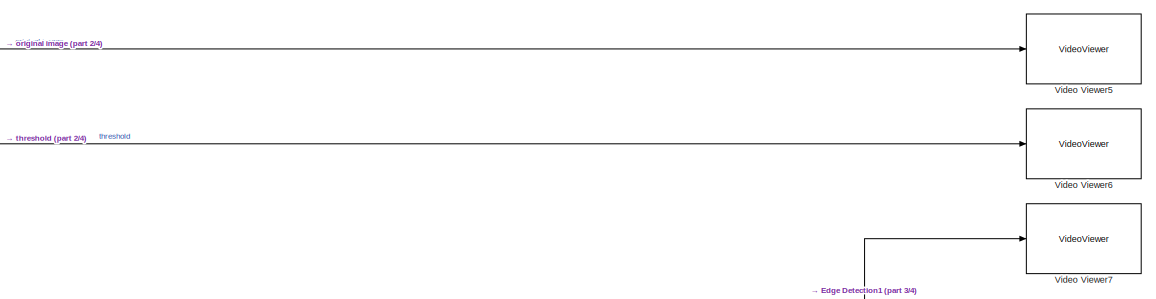
[diagram: Vision System - part 1/4, top right region]
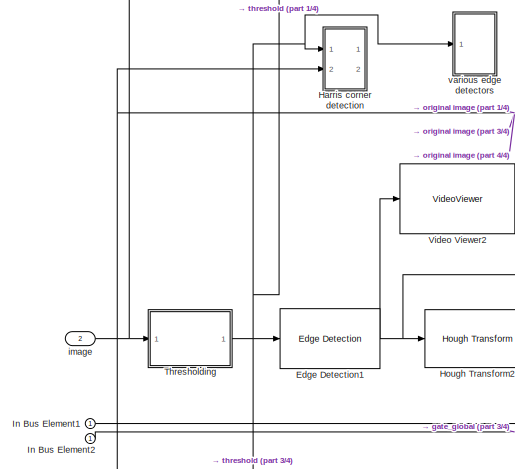
[diagram: Vision System - part 2/4, middle left region]
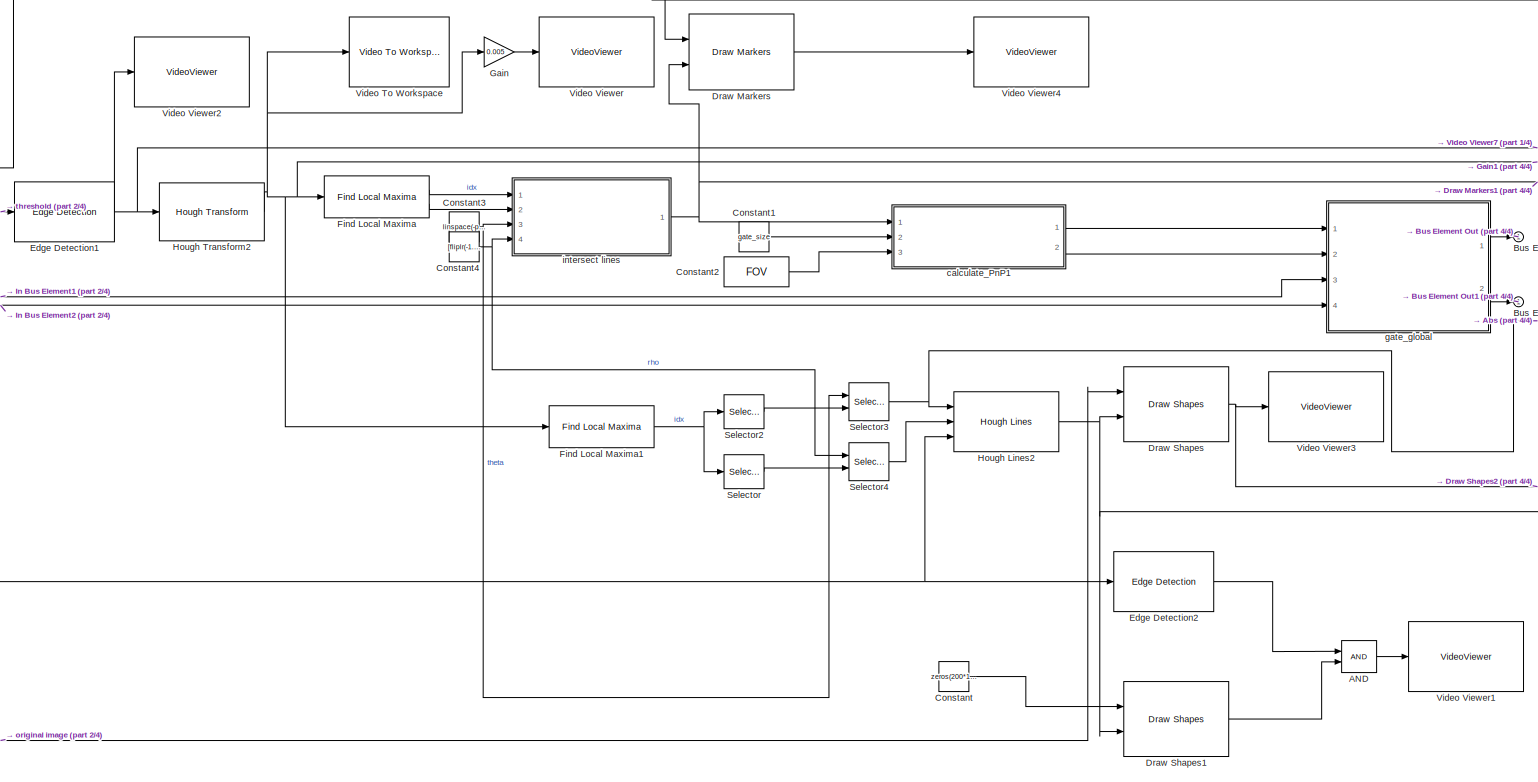
[diagram: Vision System - part 3/4, central region]
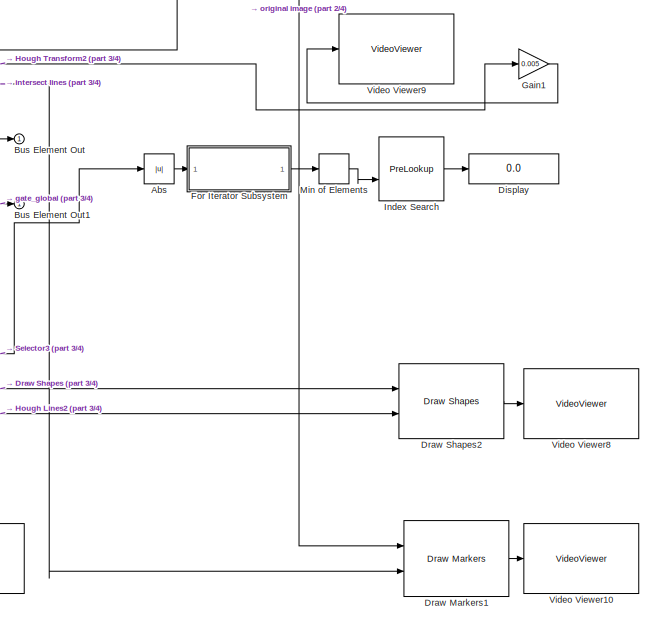
[diagram: Vision System - part 4/4, bottom right region]
BLOCK [SubSystem] Vision System
  Ports = [2, 1]
  RequestExecContextInheritance = off
BLOCK [Logic] Vision System/AND
  AllPortsSameDT = off
  IconShape = distinctive
  OutDataTypeStr = boolean
  Ports = [2, 1]
BLOCK [Abs] Vision System/Abs
  Commented = on
  SaturateOnIntegerOverflow = off
BLOCK [Outport] Vision System/Bus Element Out
  IconDisplay = Port number
BLOCK [Outport] Vision System/Bus Element Out1
  IconDisplay = Port number
BLOCK [Constant] Vision System/Constant
  Commented = on
  Value = zeros(200*1.5,320*1.5)
BLOCK [Constant] Vision System/Constant1
  Value = gate_size
BLOCK [Constant] Vision System/Constant2
  Value = FOV
BLOCK [Constant] Vision System/Constant3
  Value = linspace(-pi/2,pi/2-0.5*pi/180,360)
BLOCK [Constant] Vision System/Constant4
  Value = [fliplr(-1.5:-1.5:-sqrt(480*480+300*300)), 0:1.5:sqrt(480*480+300*300)]
BLOCK [Display] Vision System/Display
  Commented = on
  Decimation = 1
  Ports = [1]
BLOCK [Reference] Vision System/Draw Markers  REF=visiontextngfix/Draw Markers
  Commented = on
  Ports = [2, 1]
  SourceBlock = visiontextngfix/Draw Markers
  SourceProductBaseCode = VP
  SourceProductName = Computer Vision System Toolbox
  SourceType = Draw Markers
BLOCK [Reference] Vision System/Draw Markers1  REF=visiontextngfix/Draw Markers
  Commented = on
  Ports = [2, 1]
  SourceBlock = visiontextngfix/Draw Markers
  SourceProductBaseCode = VP
  SourceProductName = Computer Vision System Toolbox
  SourceType = Draw Markers
BLOCK [Reference] Vision System/Draw Shapes  REF=visiontextngfix/Draw Shapes
  Commented = on
  Ports = [2, 1]
  SourceBlock = visiontextngfix/Draw Shapes
  SourceProductBaseCode = VP
  SourceProductName = Computer Vision System Toolbox
  SourceType = Draw Shapes
BLOCK [Reference] Vision System/Draw Shapes1  REF=visiontextngfix/Draw Shapes
  Commented = on
  Ports = [2, 1]
  SourceBlock = visiontextngfix/Draw Shapes
  SourceProductBaseCode = VP
  SourceProductName = Computer Vision System Toolbox
  SourceType = Draw Shapes
BLOCK [Reference] Vision System/Draw Shapes2  REF=visiontextngfix/Draw Shapes
  Commented = on
  Ports = [2, 1]
  SourceBlock = visiontextngfix/Draw Shapes
  SourceProductBaseCode = VP
  SourceProductName = Computer Vision System Toolbox
  SourceType = Draw Shapes
BLOCK [Reference] Vision System/Edge Detection1  REF=visionanalysis/Edge Detection
  Ports = [1, 1]
  SourceBlock = visionanalysis/Edge Detection
  SourceProductBaseCode = VP
  SourceProductName = Computer Vision System Toolbox
  SourceType = Edge Detection
BLOCK [Reference] Vision System/Edge Detection2  REF=visionanalysis/Edge Detection
  Commented = on
  Ports = [1, 1]
  SourceBlock = visionanalysis/Edge Detection
  SourceProductBaseCode = VP
  SourceProductName = Computer Vision System Toolbox
  SourceType = Edge Detection
BLOCK [Reference] Vision System/Find Local Maxima  REF=visionstatistics/Find Local Maxima
  Ports = [1, 2]
  SourceBlock = visionstatistics/Find Local Maxima
  SourceProductBaseCode = VP
  SourceProductName = Computer Vision System Toolbox
  SourceType = Find Local Maxima
BLOCK [Reference] Vision System/Find Local Maxima1  REF=visionstatistics/Find Local Maxima
  Commented = on
  Ports = [1, 1]
  SourceBlock = visionstatistics/Find Local Maxima
  SourceProductBaseCode = VP
  SourceProductName = Computer Vision System Toolbox
  SourceType = Find Local Maxima
BLOCK [SubSystem] Vision System/For Iterator Subsystem
  Commented = on
  Ports = [1, 1]
  RequestExecContextInheritance = off
  TreatAsAtomicUnit = on
BLOCK [ForIterator] Vision System/For Iterator Subsystem/For Iterator
  Ports = [0, 1]
BLOCK [Inport] Vision System/For Iterator Subsystem/In1
  IconDisplay = Port number
BLOCK [Product] Vision System/For Iterator Subsystem/Multiply
  InputSameDT = off
  OutDataTypeStr = Inherit: Inherit via internal rule
  Ports = [2, 1]
  RndMeth = Floor
  SaturateOnIntegerOverflow = off
BLOCK [Outport] Vision System/For Iterator Subsystem/Out1
  IconDisplay = Port number
BLOCK [Gain] Vision System/Gain
  Commented = on
  Gain = 0.005
  OutDataTypeStr = Inherit: Inherit via internal rule
  ParamDataTypeStr = Inherit: Inherit via internal rule
  SaturateOnIntegerOverflow = off
BLOCK [Gain] Vision System/Gain1
  Commented = on
  Gain = 0.005
  OutDataTypeStr = Inherit: Inherit via internal rule
  ParamDataTypeStr = Inherit: Inherit via internal rule
  SaturateOnIntegerOverflow = off
BLOCK [SubSystem] Vision System/Harris corner detection
  Commented = on
  Ports = [2, 2]
  RequestExecContextInheritance = off
BLOCK [Constant] Vision System/Harris corner detection/Constant
  Commented = on
  Value = 1.4
BLOCK [Reference] Vision System/Harris corner detection/Draw all Harris red  REF=visiontextngfix/Draw Markers
  Commented = on
  Ports = [2, 1]
  SourceBlock = visiontextngfix/Draw Markers
  SourceProductBaseCode = VP
  SourceProductName = Computer Vision System Toolbox
  SourceType = Draw Markers
BLOCK [Reference] Vision System/Harris corner detection/Draw four markers green//blue  REF=visiontextngfix/Draw Markers
  Commented = on
  Ports = [2, 1]
  SourceBlock = visiontextngfix/Draw Markers
  SourceProductBaseCode = VP
  SourceProductName = Computer Vision System Toolbox
  SourceType = Draw Markers
BLOCK [SubSystem] Vision System/Harris corner detection/Harris Corners
  Commented = on
  Ports = [1, 1]
  RequestExecContextInheritance = off
BLOCK [Reference] Vision System/Harris corner detection/Harris Corners/Corner Detection  REF=visionanalysis/Corner Detection
  Ports = [1, 1]
  SourceBlock = visionanalysis/Corner Detection
  SourceProductBaseCode = VP
  SourceProductName = Computer Vision System Toolbox
  SourceType = Corner Detection
BLOCK [Outport] Vision System/Harris corner detection/Harris Corners/Corners
  IconDisplay = Port number
BLOCK [Reference] Vision System/Harris corner detection/Harris Corners/Gaussian Pyramid  REF=visiontransforms/Gaussian
Pyramid
  Commented = on
  Ports = [1, 1]
  SourceBlock = visiontransforms/Gaussian\nPyramid
  SourceProductBaseCode = VP
  SourceProductName = Computer Vision System Toolbox
  SourceType = Gaussian Pyramid
BLOCK [Inport] Vision System/Harris corner detection/Harris Corners/Threshold
  IconDisplay = Port number
BLOCK [VideoViewer] Vision System/Harris corner detection/Harris Corners/Video Viewer2
  Commented = on
  FigPos = [76 898 768 763]
  Ports = [1]
  ScopeSpecificationString = vipscopes.VideoViewerScopeCfg('CurrentConfiguration', extmgr.ConfigurationSet(extmgr.Configuration('Core','General UI',true,'ShowMainToolbar',false,'ShowStatusbar',false),extmgr.Configuration('Core','Source UI',true),extmgr.Configuration('Sources','WiredSimulink',true),extmgr.Configuration('Visuals','Video',true),extmgr.Configuration('Tools','Image Navigation Tools',true,'FitToView',true),extmgr.C...<+135ch>
  colormapValue = gray(256)
BLOCK [If] Vision System/Harris corner detection/If
  Commented = on
  IfExpression = u1 >= 4
  Ports = [1, 1]
  ShowElse = off
BLOCK [Outport] Vision System/Harris corner detection/Out1
  IconDisplay = Port number
BLOCK [Outport] Vision System/Harris corner detection/Out2
  IconDisplay = Port number
  Port = 2
BLOCK [Probe] Vision System/Harris corner detection/Probe Dimension1
  Commented = on
  Ports = [1, 1]
  ProbeComplexSignal = off
  ProbeSampleTime = off
  ProbeSignalDimensions = on
  ProbeWidth = off
BLOCK [Selector] Vision System/Harris corner detection/Selector1
  Commented = on
  IndexOptions = Index vector (dialog)
  Indices = 1
  OutputSizes = 1
  Ports = [1, 1]
BLOCK [VideoViewer] Vision System/Harris corner detection/Video Viewer1
  Commented = on
  FigPos = [823 898 758 735]
  Ports = [1]
  ScopeSpecificationString = vipscopes.VideoViewerScopeCfg('CurrentConfiguration', extmgr.ConfigurationSet(extmgr.Configuration('Core','General UI',true,'ShowMainToolbar',false,'ShowStatusbar',false),extmgr.Configuration('Core','Source UI',true),extmgr.Configuration('Sources','WiredSimulink',true,'LockSynchronous',true),extmgr.Configuration('Visuals','Video',true),extmgr.Configuration('Tools','Image Navigation Tools',true,'Fi...<+185ch>
  colormapValue = gray(256)
BLOCK [SubSystem] Vision System/Harris corner detection/calculate corners
  Commented = on
  Ports = [1, 1, 0, 0, 0, 0, 0, 1]
  RequestExecContextInheritance = off
  TreatAsAtomicUnit = on
BLOCK [ActionPort] Vision System/Harris corner detection/calculate corners/Action Port
  ActionType = then
  PropagateVarSize = During execution
BLOCK [Inport] Vision System/Harris corner detection/calculate corners/In1
  IconDisplay = Port number
BLOCK [Outport] Vision System/Harris corner detection/calculate corners/Out1
  IconDisplay = Port number
BLOCK [SubSystem] Vision System/Harris corner detection/calculate corners/calculate corners
  ErrorFcn = Stateflow.Translate.translate
  PermitHierarchicalResolution = ExplicitOnly
  Ports = [1, 1]
  RequestExecContextInheritance = off
  SFBlockType = MATLAB Function
  TreatAsAtomicUnit = on
BLOCK [Demux] Vision System/Harris corner detection/calculate corners/calculate corners/ Demux 
  Outputs = 1
  Ports = [1, 1]
BLOCK [S-Function] Vision System/Harris corner detection/calculate corners/calculate corners/ SFunction 
  EnableBusSupport = on
  FunctionName = sf_sfun
  PortCounts = [1 2]
  Ports = [1, 2]
  SFcnIsStateOwnerBlock = off
  SFunctionDeploymentMode = off
  Tag = Stateflow S-Function Bebop7_like6_but_spline_only_from_SP 1
BLOCK [Terminator] Vision System/Harris corner detection/calculate corners/calculate corners/ Terminator 
BLOCK [Inport] Vision System/Harris corner detection/calculate corners/calculate corners/corners
  IconDisplay = Port number
BLOCK [Outport] Vision System/Harris corner detection/calculate corners/calculate corners/corners_four
  IconDisplay = Port number
BLOCK [SubSystem] Vision System/Harris corner detection/calculate_PnP
  Commented = on
  ErrorFcn = Stateflow.Translate.translate
  PermitHierarchicalResolution = ExplicitOnly
  Ports = [2, 2]
  RequestExecContextInheritance = off
  SFBlockType = MATLAB Function
  TreatAsAtomicUnit = on
BLOCK [Demux] Vision System/Harris corner detection/calculate_PnP/ Demux 
  Outputs = 1
  Ports = [1, 1]
BLOCK [S-Function] Vision System/Harris corner detection/calculate_PnP/ SFunction 
  EnableBusSupport = on
  FunctionName = sf_sfun
  PortCounts = [2 3]
  Ports = [2, 3]
  SFcnIsStateOwnerBlock = off
  SFunctionDeploymentMode = off
  Tag = Stateflow S-Function Bebop7_like6_but_spline_only_from_SP 5
BLOCK [Terminator] Vision System/Harris corner detection/calculate_PnP/ Terminator 
BLOCK [Inport] Vision System/Harris corner detection/calculate_PnP/corners
  IconDisplay = Port number
BLOCK [Outport] Vision System/Harris corner detection/calculate_PnP/rMat
  IconDisplay = Port number
  Port = 2
BLOCK [Inport] Vision System/Harris corner detection/calculate_PnP/size
  IconDisplay = Port number
  Port = 2
BLOCK [Outport] Vision System/Harris corner detection/calculate_PnP/tVec
  IconDisplay = Port number
BLOCK [Inport] Vision System/Harris corner detection/hreshold
  IconDisplay = Port number
BLOCK [Inport] Vision System/Harris corner detection/original
  IconDisplay = Port number
  Port = 2
BLOCK [Reference] Vision System/Hough Lines2  REF=visiontransforms/Hough Lines
  Commented = on
  Ports = [3, 1]
  SourceBlock = visiontransforms/Hough Lines
  SourceProductBaseCode = VP
  SourceProductName = Computer Vision System Toolbox
  SourceType = Hough Lines
BLOCK [Reference] Vision System/Hough Transform2  REF=visiontransforms/Hough Transform
  Ports = [1, 1]
  SourceBlock = visiontransforms/Hough Transform
  SourceProductBaseCode = VP
  SourceProductName = Computer Vision System Toolbox
  SourceType = Hough Transform
BLOCK [Inport] Vision System/In Bus Element1
  IconDisplay = Port number
BLOCK [Inport] Vision System/In Bus Element2
  IconDisplay = Port number
BLOCK [PreLookup] Vision System/Index Search
  BreakpointsData = [10:10:110]
  BreakpointsDataSource = Input port
  Commented = on
  InputPortMap = u0,p1
  OutputSelection = Index only
  Ports = [2, 1]
BLOCK [MinMax] Vision System/Min of Elements
  Commented = on
  InputSameDT = off
  Ports = [1, 1]
  SaturateOnIntegerOverflow = off
BLOCK [Selector] Vision System/Selector
  Commented = on
  IndexMode = Zero-based
  IndexOptions = Select all,Index vector (dialog)
  Indices = 2,1
  InputPortWidth = 2
  NumberOfDimensions = 2
  OutputSizes = 1,1
  Ports = [1, 1]
BLOCK [Selector] Vision System/Selector2
  Commented = on
  IndexMode = Zero-based
  IndexOptions = Select all,Index vector (dialog)
  Indices = 1,0
  InputPortWidth = 2
  NumberOfDimensions = 2
  OutputSizes = 1,1
  Ports = [1, 1]
BLOCK [Selector] Vision System/Selector3
  Commented = on
  IndexOptions = Select all,Index vector (port)
  Indices = [1 3],1
  InputPortWidth = 3
  NumberOfDimensions = 2
  OutputSizes = 1,1
  Ports = [2, 1]
BLOCK [Selector] Vision System/Selector4
  Commented = on
  IndexOptions = Select all,Index vector (port)
  Indices = [1 3],1
  InputPortWidth = 3
  NumberOfDimensions = 2
  OutputSizes = 1,1
  Ports = [2, 1]
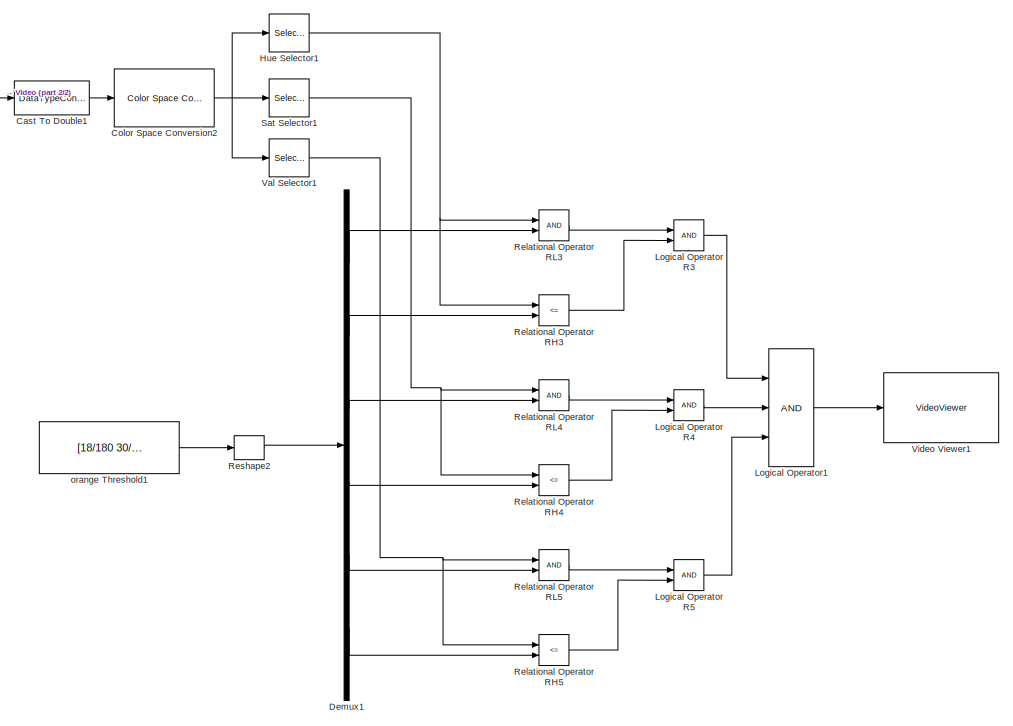
[diagram: Vision System/Thresholding - part 1/2, middle right region]
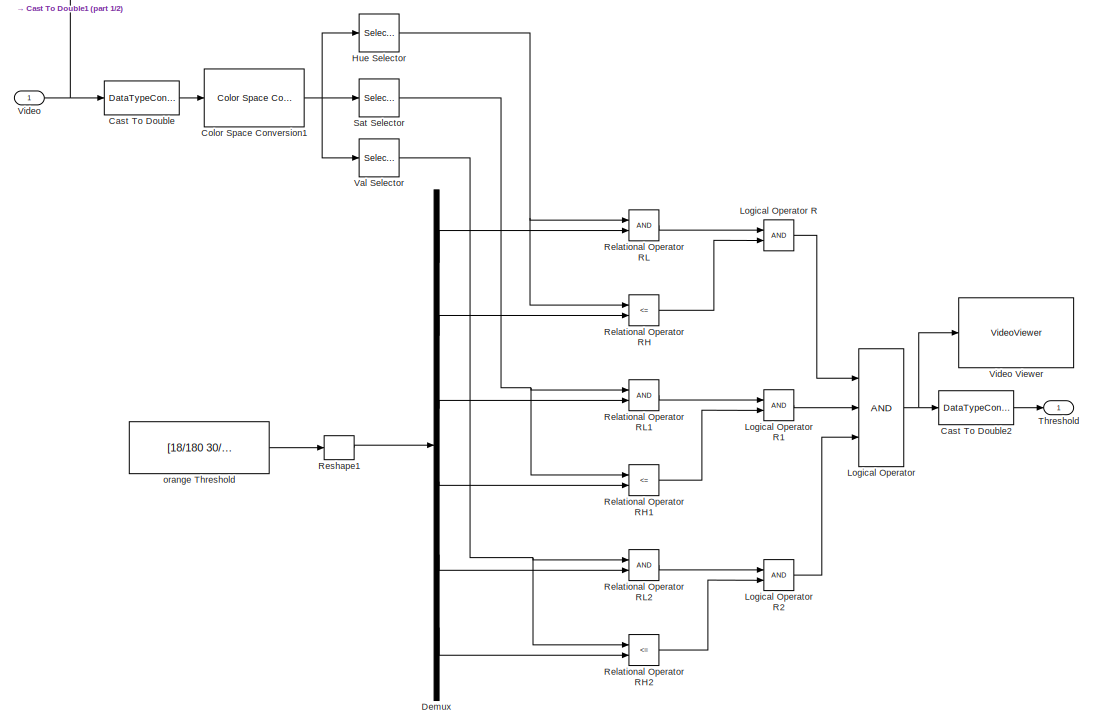
[diagram: Vision System/Thresholding - part 2/2, middle left region]
BLOCK [SubSystem] Vision System/Thresholding
  Ports = [1, 1]
  RequestExecContextInheritance = off
BLOCK [DataTypeConversion] Vision System/Thresholding/Cast To Double
  OutDataTypeStr = double
  RndMeth = Floor
  SaturateOnIntegerOverflow = off
BLOCK [DataTypeConversion] Vision System/Thresholding/Cast To Double1
  Commented = on
  OutDataTypeStr = double
  RndMeth = Floor
  SaturateOnIntegerOverflow = off
BLOCK [DataTypeConversion] Vision System/Thresholding/Cast To Double2
  OutDataTypeStr = double
  RndMeth = Floor
  SaturateOnIntegerOverflow = off
BLOCK [Reference] Vision System/Thresholding/Color Space Conversion1  REF=visionconversions/Color Space
 Conversion
  Ports = [1, 1]
  SourceBlock = visionconversions/Color Space\n Conversion
  SourceProductBaseCode = VP
  SourceProductName = Computer Vision System Toolbox
  SourceType = Color Space Conversion
BLOCK [Reference] Vision System/Thresholding/Color Space Conversion2  REF=visionconversions/Color Space
 Conversion
  Commented = on
  Ports = [1, 1]
  SourceBlock = visionconversions/Color Space\n Conversion
  SourceProductBaseCode = VP
  SourceProductName = Computer Vision System Toolbox
  SourceType = Color Space Conversion
BLOCK [Demux] Vision System/Thresholding/Demux
  DisplayOption = bar
  Outputs = 6
  Ports = [1, 6]
BLOCK [Demux] Vision System/Thresholding/Demux1
  Commented = on
  DisplayOption = bar
  Outputs = 6
  Ports = [1, 6]
BLOCK [Selector] Vision System/Thresholding/Hue Selector
  IndexMode = Zero-based
  IndexOptions = Select all,Select all,Index vector (dialog)
  Indices = [1 3],1,0
  InputPortWidth = 3
  NumberOfDimensions = 3
  OutputSizes = 1,1,1
  Ports = [1, 1]
BLOCK [Selector] Vision System/Thresholding/Hue Selector1
  Commented = on
  IndexOptions = Select all,Select all,Index vector (dialog)
  Indices = [1 3],1,1
  InputPortWidth = 3
  NumberOfDimensions = 3
  OutputSizes = 1,1,1
  Ports = [1, 1]
BLOCK [Logic] Vision System/Thresholding/Logical Operator
  AllPortsSameDT = off
  Inputs = 3
  OutDataTypeStr = boolean
  Ports = [3, 1]
BLOCK [Logic] Vision System/Thresholding/Logical Operator R
  AllPortsSameDT = off
  OutDataTypeStr = boolean
  Ports = [2, 1]
BLOCK [Logic] Vision System/Thresholding/Logical Operator R1
  AllPortsSameDT = off
  OutDataTypeStr = boolean
  Ports = [2, 1]
BLOCK [Logic] Vision System/Thresholding/Logical Operator R2
  AllPortsSameDT = off
  OutDataTypeStr = boolean
  Ports = [2, 1]
BLOCK [Logic] Vision System/Thresholding/Logical Operator R3
  AllPortsSameDT = off
  Commented = on
  OutDataTypeStr = boolean
  Ports = [2, 1]
BLOCK [Logic] Vision System/Thresholding/Logical Operator R4
  AllPortsSameDT = off
  Commented = on
  OutDataTypeStr = boolean
  Ports = [2, 1]
BLOCK [Logic] Vision System/Thresholding/Logical Operator R5
  AllPortsSameDT = off
  Commented = on
  OutDataTypeStr = boolean
  Ports = [2, 1]
BLOCK [Logic] Vision System/Thresholding/Logical Operator1
  AllPortsSameDT = off
  Commented = on
  Inputs = 3
  OutDataTypeStr = boolean
  Ports = [3, 1]
BLOCK [RelationalOperator] Vision System/Thresholding/Relational Operator RH
  InputSameDT = off
  Operator = <=
  OutDataTypeStr = boolean
  Ports = [2, 1]
BLOCK [RelationalOperator] Vision System/Thresholding/Relational Operator RH1
  InputSameDT = off
  Operator = <=
  OutDataTypeStr = boolean
  Ports = [2, 1]
BLOCK [RelationalOperator] Vision System/Thresholding/Relational Operator RH2
  InputSameDT = off
  Operator = <=
  OutDataTypeStr = boolean
  Ports = [2, 1]
BLOCK [RelationalOperator] Vision System/Thresholding/Relational Operator RH3
  Commented = on
  InputSameDT = off
  Operator = <=
  OutDataTypeStr = boolean
  Ports = [2, 1]
BLOCK [RelationalOperator] Vision System/Thresholding/Relational Operator RH4
  Commented = on
  InputSameDT = off
  Operator = <=
  OutDataTypeStr = boolean
  Ports = [2, 1]
BLOCK [RelationalOperator] Vision System/Thresholding/Relational Operator RH5
  Commented = on
  InputSameDT = off
  Operator = <=
  OutDataTypeStr = boolean
  Ports = [2, 1]
BLOCK [RelationalOperator] Vision System/Thresholding/Relational Operator RL
  InputSameDT = off
  OutDataTypeStr = boolean
  Ports = [2, 1]
BLOCK [RelationalOperator] Vision System/Thresholding/Relational Operator RL1
  InputSameDT = off
  OutDataTypeStr = boolean
  Ports = [2, 1]
BLOCK [RelationalOperator] Vision System/Thresholding/Relational Operator RL2
  InputSameDT = off
  OutDataTypeStr = boolean
  Ports = [2, 1]
BLOCK [RelationalOperator] Vision System/Thresholding/Relational Operator RL3
  Commented = on
  InputSameDT = off
  OutDataTypeStr = boolean
  Ports = [2, 1]
BLOCK [RelationalOperator] Vision System/Thresholding/Relational Operator RL4
  Commented = on
  InputSameDT = off
  OutDataTypeStr = boolean
  Ports = [2, 1]
BLOCK [RelationalOperator] Vision System/Thresholding/Relational Operator RL5
  Commented = on
  InputSameDT = off
  OutDataTypeStr = boolean
  Ports = [2, 1]
BLOCK [Reshape] Vision System/Thresholding/Reshape1
  Ports = [1, 1]
BLOCK [Reshape] Vision System/Thresholding/Reshape2
  Commented = on
  Ports = [1, 1]
BLOCK [Selector] Vision System/Thresholding/Sat Selector
  IndexMode = Zero-based
  IndexOptions = Select all,Select all,Index vector (dialog)
  Indices = [1 3],1,1
  InputPortWidth = 3
  NumberOfDimensions = 3
  OutputSizes = 1,1,1
  Ports = [1, 1]
BLOCK [Selector] Vision System/Thresholding/Sat Selector1
  Commented = on
  IndexOptions = Select all,Select all,Index vector (dialog)
  Indices = [1 3],1,2
  InputPortWidth = 3
  NumberOfDimensions = 3
  OutputSizes = 1,1,1
  Ports = [1, 1]
BLOCK [Outport] Vision System/Thresholding/Threshold
  IconDisplay = Port number
BLOCK [Selector] Vision System/Thresholding/Val Selector
  IndexMode = Zero-based
  IndexOptions = Select all,Select all,Index vector (dialog)
  Indices = [1 3],1,2
  InputPortWidth = 3
  NumberOfDimensions = 3
  OutputSizes = 1,1,1
  Ports = [1, 1]
BLOCK [Selector] Vision System/Thresholding/Val Selector1
  Commented = on
  IndexOptions = Select all,Select all,Index vector (dialog)
  Indices = [1 3],1,3
  InputPortWidth = 3
  NumberOfDimensions = 3
  OutputSizes = 1,1,1
  Ports = [1, 1]
BLOCK [Inport] Vision System/Thresholding/Video 
  IconDisplay = Port number
BLOCK [VideoViewer] Vision System/Thresholding/Video Viewer
  Commented = on
  FigPos = [833 898 768 793]
  Ports = [1]
  ScopeSpecificationString = vipscopes.VideoViewerScopeCfg('CurrentConfiguration', extmgr.ConfigurationSet(extmgr.Configuration('Core','General UI',true,'ShowMainToolbar',false,'ShowStatusbar',false),extmgr.Configuration('Core','Source UI',true),extmgr.Configuration('Sources','WiredSimulink',true),extmgr.Configuration('Visuals','Video',true),extmgr.Configuration('Tools','Image Navigation Tools',true,'FitToView',true),extmgr.C...<+136ch>
  colormapValue = gray(256)
BLOCK [VideoViewer] Vision System/Thresholding/Video Viewer1
  Commented = on
  FigPos = [823 898 778 793]
  Ports = [1]
  ScopeSpecificationString = vipscopes.VideoViewerScopeCfg('CurrentConfiguration', extmgr.ConfigurationSet(extmgr.Configuration('Core','General UI',true,'ShowMainToolbar',false,'ShowStatusbar',false),extmgr.Configuration('Core','Source UI',true),extmgr.Configuration('Sources','WiredSimulink',true),extmgr.Configuration('Visuals','Video',true),extmgr.Configuration('Tools','Image Navigation Tools',true,'FitToView',true),extmgr.C...<+136ch>
  colormapValue = gray(256)
BLOCK [Constant] Vision System/Thresholding/orange Threshold
  OutDataTypeStr = double
  Value = [18/180 30/180; 190/255 255/255; 75 255]'
BLOCK [Constant] Vision System/Thresholding/orange Threshold1
  Commented = on
  OutDataTypeStr = double
  Value = [18/180 30/180; 190/255 255/255; 75 255]'
BLOCK [Reference] Vision System/Video To Workspace  REF=visionsinks/Video To Workspace
  Commented = on
  Ports = [1]
  SourceBlock = visionsinks/Video To Workspace
  SourceProductBaseCode = VP
  SourceProductName = Computer Vision System Toolbox
  SourceType = Video To Workspace
BLOCK [VideoViewer] Vision System/Video Viewer
  Commented = on
  FigPos = [66 898 768 765]
  Ports = [1]
  ScopeSpecificationString = vipscopes.VideoViewerScopeCfg('CurrentConfiguration', extmgr.ConfigurationSet(extmgr.Configuration('Core','General UI',true),extmgr.Configuration('Core','Source UI',true),extmgr.Configuration('Sources','WiredSimulink',true),extmgr.Configuration('Visuals','Video',true),extmgr.Configuration('Tools','Image Navigation Tools',true,'FitToView',true),extmgr.Configuration('Tools','Image Tool',true),extmgr...<+115ch>
  colormapValue = gray(256)
BLOCK [VideoViewer] Vision System/Video Viewer1
  Commented = on
  FigPos = [983 1078 938 945]
  Ports = [1]
  ScopeSpecificationString = vipscopes.VideoViewerScopeCfg('CurrentConfiguration', extmgr.ConfigurationSet(extmgr.Configuration('Core','General UI',true,'ShowSaveConfigSet',true,'FigureProperties',struct('ColorMap',[0 0 0;0.00392156862745098 0.00392156862745098 0.00392156862745098;0.00784313725490196 0.00784313725490196 0.00784313725490196;0.0117647058823529 0.0117647058823529 0.0117647058823529;0.0156862745098039 0.015686274...<+15066ch>
  colormapValue = gray(256)
BLOCK [VideoViewer] Vision System/Video Viewer10
  Commented = on
  FigPos = [66 1078 1855 973]
  Ports = [1]
  ScopeSpecificationString = vipscopes.VideoViewerScopeCfg('CurrentConfiguration', extmgr.ConfigurationSet(extmgr.Configuration('Core','General UI',true,'ShowSaveConfigSet',true,'FigureProperties',struct('ColorMap',[0 0 0;0.00392156862745098 0.00392156862745098 0.00392156862745098;0.00784313725490196 0.00784313725490196 0.00784313725490196;0.0117647058823529 0.0117647058823529 0.0117647058823529;0.0156862745098039 0.015686274...<+15016ch>
  colormapValue = gray(256)
BLOCK [VideoViewer] Vision System/Video Viewer2
  Commented = on
  FigPos = [993 1078 928 945]
  Ports = [1]
  ScopeSpecificationString = vipscopes.VideoViewerScopeCfg('CurrentConfiguration', extmgr.ConfigurationSet(extmgr.Configuration('Core','General UI',true),extmgr.Configuration('Core','Source UI',true),extmgr.Configuration('Sources','WiredSimulink',true),extmgr.Configuration('Visuals','Video',true),extmgr.Configuration('Tools','Image Navigation Tools',true,'Magnification',1.6,'FitToView',true),extmgr.Configuration('Tools','Imag...<+136ch>
  colormapValue = gray(256)
BLOCK [VideoViewer] Vision System/Video Viewer3
  Commented = on
  FigPos = [993 1078 928 945]
  Ports = [1]
  ScopeSpecificationString = vipscopes.VideoViewerScopeCfg('CurrentConfiguration', extmgr.ConfigurationSet(extmgr.Configuration('Core','General UI',true,'ShowSaveConfigSet',true,'FigureProperties',struct('ColorMap',[0 0 0;0.00392156862745098 0.00392156862745098 0.00392156862745098;0.00784313725490196 0.00784313725490196 0.00784313725490196;0.0117647058823529 0.0117647058823529 0.0117647058823529;0.0156862745098039 0.015686274...<+15092ch>
  colormapValue = gray(256)
BLOCK [VideoViewer] Vision System/Video Viewer4
  Commented = on
  FigPos = [983 1078 938 945]
  Ports = [1]
  ScopeSpecificationString = vipscopes.VideoViewerScopeCfg('CurrentConfiguration', extmgr.ConfigurationSet(extmgr.Configuration('Core','General UI',true,'ShowSaveConfigSet',true,'FigureProperties',struct('ColorMap',[0 0 0;0.00392156862745098 0.00392156862745098 0.00392156862745098;0.00784313725490196 0.00784313725490196 0.00784313725490196;0.0117647058823529 0.0117647058823529 0.0117647058823529;0.0156862745098039 0.015686274...<+15092ch>
  colormapValue = gray(256)
BLOCK [VideoViewer] Vision System/Video Viewer5
  Commented = on
  FigPos = [66 1078 1855 973]
  Ports = [1]
  ScopeSpecificationString = vipscopes.VideoViewerScopeCfg('CurrentConfiguration', extmgr.ConfigurationSet(extmgr.Configuration('Core','General UI',true),extmgr.Configuration('Core','Source UI',true),extmgr.Configuration('Sources','WiredSimulink',true),extmgr.Configuration('Visuals','Video',true),extmgr.Configuration('Tools','Image Navigation Tools',true),extmgr.Configuration('Tools','Image Tool',true),extmgr.Configuration('T...<+73ch>  <repeated x4 — deduplicated; at blocks: Video Viewer5, Video Viewer6, Video Viewer7, Video Viewer8>
  colormapValue = gray(256)
BLOCK [VideoViewer] Vision System/Video Viewer6
  Commented = on
  FigPos = [66 1078 1855 973]
  Ports = [1]
  colormapValue = gray(256)
BLOCK [VideoViewer] Vision System/Video Viewer7
  Commented = on
  FigPos = [66 1078 1855 973]
  Ports = [1]
  colormapValue = gray(256)
BLOCK [VideoViewer] Vision System/Video Viewer8
  Commented = on
  FigPos = [66 1078 1855 973]
  Ports = [1]
  colormapValue = gray(256)
BLOCK [VideoViewer] Vision System/Video Viewer9
  Commented = on
  FigPos = [66 1078 1855 973]
  Ports = [1]
  ScopeSpecificationString = vipscopes.VideoViewerScopeCfg('CurrentConfiguration', extmgr.ConfigurationSet(extmgr.Configuration('Core','General UI',true),extmgr.Configuration('Core','Source UI',true),extmgr.Configuration('Sources','WiredSimulink',true),extmgr.Configuration('Visuals','Video',true),extmgr.Configuration('Tools','Image Navigation Tools',true,'FitToView',true),extmgr.Configuration('Tools','Image Tool',true),extmgr...<+90ch>
  colormapValue = gray(256)
BLOCK [SubSystem] Vision System/calculate_PnP1
  ErrorFcn = Stateflow.Translate.translate
  PermitHierarchicalResolution = ExplicitOnly
  Ports = [3, 2]
  RequestExecContextInheritance = off
  SFBlockType = MATLAB Function
  TreatAsAtomicUnit = on
BLOCK [Demux] Vision System/calculate_PnP1/ Demux 
  Outputs = 1
  Ports = [1, 1]
BLOCK [S-Function] Vision System/calculate_PnP1/ SFunction 
  EnableBusSupport = on
  FunctionName = sf_sfun
  PortCounts = [3 3]
  Ports = [3, 3]
  SFcnIsStateOwnerBlock = off
  SFunctionDeploymentMode = off
  Tag = Stateflow S-Function Bebop7_like6_but_spline_only_from_SP 13
BLOCK [Terminator] Vision System/calculate_PnP1/ Terminator 
BLOCK [Inport] Vision System/calculate_PnP1/FOV
  IconDisplay = Port number
  Port = 3
BLOCK [Inport] Vision System/calculate_PnP1/corners
  IconDisplay = Port number
BLOCK [Inport] Vision System/calculate_PnP1/gate_size
  IconDisplay = Port number
  Port = 2
BLOCK [Outport] Vision System/calculate_PnP1/rMat
  IconDisplay = Port number
  Port = 2
BLOCK [Outport] Vision System/calculate_PnP1/tVec
  IconDisplay = Port number
BLOCK [SubSystem] Vision System/gate_global
  ErrorFcn = Stateflow.Translate.translate
  PermitHierarchicalResolution = ExplicitOnly
  Ports = [4, 2]
  RequestExecContextInheritance = off
  SFBlockType = MATLAB Function
  TreatAsAtomicUnit = on
BLOCK [Demux] Vision System/gate_global/ Demux 
  Outputs = 1
  Ports = [1, 1]
BLOCK [S-Function] Vision System/gate_global/ SFunction 
  EnableBusSupport = on
  FunctionName = sf_sfun
  PortCounts = [4 3]
  Ports = [4, 3]
  SFcnIsStateOwnerBlock = off
  SFunctionDeploymentMode = off
  Tag = Stateflow S-Function Bebop7_like6_but_spline_only_from_SP 18
BLOCK [Terminator] Vision System/gate_global/ Terminator 
BLOCK [Inport] Vision System/gate_global/drone_ori
  IconDisplay = Port number
  Port = 4
BLOCK [Inport] Vision System/gate_global/drone_pos
  IconDisplay = Port number
  Port = 3
BLOCK [Outport] Vision System/gate_global/gate_eul_global
  IconDisplay = Port number
  Port = 2
BLOCK [Outport] Vision System/gate_global/gate_pos_global
  IconDisplay = Port number
BLOCK [Inport] Vision System/gate_global/rMat
  IconDisplay = Port number
  Port = 2
BLOCK [Inport] Vision System/gate_global/tVec
  IconDisplay = Port number
BLOCK [Inport] Vision System/image
  IconDisplay = Port number
  Port = 2
BLOCK [SubSystem] Vision System/intersect lines
  ErrorFcn = Stateflow.Translate.translate
  PermitHierarchicalResolution = ExplicitOnly
  Ports = [4, 1]
  RequestExecContextInheritance = off
  SFBlockType = MATLAB Function
  TreatAsAtomicUnit = on
BLOCK [Demux] Vision System/intersect lines/ Demux 
  Outputs = 1
  Ports = [1, 1]
BLOCK [S-Function] Vision System/intersect lines/ SFunction 
  EnableBusSupport = on
  FunctionName = sf_sfun
  PortCounts = [4 2]
  Ports = [4, 2]
  SFcnIsStateOwnerBlock = off
  SFunctionDeploymentMode = off
  Tag = Stateflow S-Function Bebop7_like6_but_spline_only_from_SP 12
BLOCK [Terminator] Vision System/intersect lines/ Terminator 
BLOCK [Outport] Vision System/intersect lines/corners_output
  IconDisplay = Port number
BLOCK [Inport] Vision System/intersect lines/count
  IconDisplay = Port number
  Port = 2
BLOCK [Inport] Vision System/intersect lines/index
  IconDisplay = Port number
BLOCK [Inport] Vision System/intersect lines/rhos
  IconDisplay = Port number
  Port = 4
BLOCK [Inport] Vision System/intersect lines/thetas
  IconDisplay = Port number
  Port = 3
BLOCK [SubSystem] Vision System/various edge detectors
  Commented = on
  Ports = [1]
  RequestExecContextInheritance = off
BLOCK [Reference] Vision System/various edge detectors/Edge Detection2  REF=visionanalysis/Edge Detection
  Commented = on
  Ports = [1, 1]
  SourceBlock = visionanalysis/Edge Detection
  SourceProductBaseCode = VP
  SourceProductName = Computer Vision System Toolbox
  SourceType = Edge Detection
BLOCK [Reference] Vision System/various edge detectors/Edge Detection3  REF=visionanalysis/Edge Detection
  Commented = on
  Ports = [1, 1]
  SourceBlock = visionanalysis/Edge Detection
  SourceProductBaseCode = VP
  SourceProductName = Computer Vision System Toolbox
  SourceType = Edge Detection
BLOCK [Reference] Vision System/various edge detectors/Edge Detection4  REF=visionanalysis/Edge Detection
  Commented = on
  Ports = [1, 1]
  SourceBlock = visionanalysis/Edge Detection
  SourceProductBaseCode = VP
  SourceProductName = Computer Vision System Toolbox
  SourceType = Edge Detection
BLOCK [Reference] Vision System/various edge detectors/Edge Detection5  REF=visionanalysis/Edge Detection
  Commented = on
  Ports = [1, 1]
  SourceBlock = visionanalysis/Edge Detection
  SourceProductBaseCode = VP
  SourceProductName = Computer Vision System Toolbox
  SourceType = Edge Detection
BLOCK [Inport] Vision System/various edge detectors/In1
  IconDisplay = Port number
BLOCK [VideoViewer] Vision System/various edge detectors/Video Viewer5
  Commented = on
  FigPos = [66 590 883 485]
  Ports = [1]
  ScopeSpecificationString = vipscopes.VideoViewerScopeCfg('CurrentConfiguration', extmgr.ConfigurationSet(extmgr.Configuration('Core','General UI',true,'ShowMainToolbar',false,'ShowStatusbar',false),extmgr.Configuration('Core','Source UI',true),extmgr.Configuration('Sources','WiredSimulink',true),extmgr.Configuration('Visuals','Video',true),extmgr.Configuration('Tools','Image Navigation Tools',true,'Magnification',1.6,'FitTo...<+157ch>
  colormapValue = gray(256)
BLOCK [VideoViewer] Vision System/various edge detectors/Video Viewer6
  Commented = on
  FigPos = [944 599 964 491]
  Ports = [1]
  ScopeSpecificationString = vipscopes.VideoViewerScopeCfg('CurrentConfiguration', extmgr.ConfigurationSet(extmgr.Configuration('Core','General UI',true,'ShowMainToolbar',false,'ShowStatusbar',false),extmgr.Configuration('Core','Source UI',true),extmgr.Configuration('Sources','WiredSimulink',true),extmgr.Configuration('Visuals','Video',true),extmgr.Configuration('Tools','Image Navigation Tools',true,'Magnification',1.6,'FitTo...<+158ch>
  colormapValue = gray(256)
BLOCK [VideoViewer] Vision System/various edge detectors/Video Viewer7
  Commented = on
  FigPos = [76 1078 884 495]
  Ports = [1]
  ScopeSpecificationString = vipscopes.VideoViewerScopeCfg('CurrentConfiguration', extmgr.ConfigurationSet(extmgr.Configuration('Core','General UI',true,'ShowMainToolbar',false,'ShowStatusbar',false),extmgr.Configuration('Core','Source UI',true),extmgr.Configuration('Sources','WiredSimulink',true),extmgr.Configuration('Visuals','Video',true),extmgr.Configuration('Tools','Image Navigation Tools',true,'Magnification',1.6,'FitTo...<+155ch>
  colormapValue = gray(256)
BLOCK [VideoViewer] Vision System/various edge detectors/Video Viewer8
  Commented = on
  FigPos = [956 1078 951 493]
  Ports = [1]
  ScopeSpecificationString = vipscopes.VideoViewerScopeCfg('CurrentConfiguration', extmgr.ConfigurationSet(extmgr.Configuration('Core','General UI',true,'ShowMainToolbar',false,'ShowStatusbar',false),extmgr.Configuration('Core','Source UI',true),extmgr.Configuration('Sources','WiredSimulink',true),extmgr.Configuration('Visuals','Video',true),extmgr.Configuration('Tools','Image Navigation Tools',true,'Magnification',1.6,'FitTo...<+156ch>
  colormapValue = gray(256)
BLOCK [SubSystem] conv
  Ports = [1, 2]
  RequestExecContextInheritance = off
BLOCK [Inport] conv/In Bus Element
  IconDisplay = Port number
BLOCK [Inport] conv/In Bus Element1
  IconDisplay = Port number
BLOCK [Outport] conv/axang
  IconDisplay = Port number
BLOCK [SubSystem] conv/global2strange drone
  Ports = [1, 1]
  RequestExecContextInheritance = off
BLOCK [Constant] conv/global2strange drone/Constant
  Value = pi/2
BLOCK [Constant] conv/global2strange drone/Constant1
  Value = 0
BLOCK [Reference] conv/global2strange drone/Direction Cosine Matrix to Quaternions  REF=sharedtransform/Direction Cosine Matrix 
to Quaternions
  Ports = [1, 1]
  SourceBlock = sharedtransform/Direction Cosine Matrix \nto Quaternions
  SourceProductBaseCode = AE
  SourceProductName = Aerospace Blockset
  SourceType = DCM2Quaternion
BLOCK [Gain] conv/global2strange drone/Gain
  Gain = -1
  OutDataTypeStr = Inherit: Inherit via internal rule
  ParamDataTypeStr = Inherit: Inherit via internal rule
  SaturateOnIntegerOverflow = off
BLOCK [Gain] conv/global2strange drone/Gain2
  Gain = -1
  OutDataTypeStr = Inherit: Inherit via internal rule
  ParamDataTypeStr = Inherit: Inherit via internal rule
  SaturateOnIntegerOverflow = off
BLOCK [Gain] conv/global2strange drone/Gain3
  Gain = [-1,-1,-1,1]
  OutDataTypeStr = Inherit: Inherit via internal rule
  ParamDataTypeStr = Inherit: Inherit via internal rule
  SaturateOnIntegerOverflow = off
BLOCK [SubSystem] conv/global2strange drone/MATLAB Function
  Commented = on
  ErrorFcn = Stateflow.Translate.translate
  PermitHierarchicalResolution = ExplicitOnly
  Ports = [1, 1]
  RequestExecContextInheritance = off
  SFBlockType = MATLAB Function
  TreatAsAtomicUnit = on
BLOCK [Demux] conv/global2strange drone/MATLAB Function/ Demux 
  Outputs = 1
  Ports = [1, 1]
BLOCK [S-Function] conv/global2strange drone/MATLAB Function/ SFunction 
  EnableBusSupport = on
  FunctionName = sf_sfun
  PortCounts = [1 2]
  Ports = [1, 2]
  SFcnIsStateOwnerBlock = off
  SFunctionDeploymentMode = off
  Tag = Stateflow S-Function Bebop7_like6_but_spline_only_from_SP 4
BLOCK [Terminator] conv/global2strange drone/MATLAB Function/ Terminator 
BLOCK [Outport] conv/global2strange drone/MATLAB Function/axang_strange
  IconDisplay = Port number
BLOCK [Inport] conv/global2strange drone/MATLAB Function/euler
  IconDisplay = Port number
BLOCK [SubSystem] conv/global2strange drone/MATLAB Function1
  ErrorFcn = Stateflow.Translate.translate
  PermitHierarchicalResolution = ExplicitOnly
  Ports = [1, 1]
  RequestExecContextInheritance = off
  SFBlockType = MATLAB Function
  TreatAsAtomicUnit = on
BLOCK [Demux] conv/global2strange drone/MATLAB Function1/ Demux 
  Outputs = 1
  Ports = [1, 1]
BLOCK [S-Function] conv/global2strange drone/MATLAB Function1/ SFunction 
  EnableBusSupport = on
  FunctionName = sf_sfun
  PortCounts = [1 2]
  Ports = [1, 2]
  SFcnIsStateOwnerBlock = off
  SFunctionDeploymentMode = off
  Tag = Stateflow S-Function Bebop7_like6_but_spline_only_from_SP 7
BLOCK [Terminator] conv/global2strange drone/MATLAB Function1/ Terminator 
BLOCK [Outport] conv/global2strange drone/MATLAB Function1/axang
  IconDisplay = Port number
BLOCK [Inport] conv/global2strange drone/MATLAB Function1/q
  IconDisplay = Port number
BLOCK [Product] conv/global2strange drone/Matrix Multiply
  InputSameDT = off
  Multiplication = Matrix(*)
  OutDataTypeStr = Inherit: Inherit via internal rule
  Ports = [2, 1]
  RndMeth = Floor
  SaturateOnIntegerOverflow = off
BLOCK [Reference] conv/global2strange drone/Rotation Angles to Direction Cosine Matrix  REF=sharedtransform/Rotation Angles to
Direction Cosine Matrix
  AttributesFormatString = Rotation Order: %<rotationOrder>
  Ports = [1, 1]
  SourceBlock = sharedtransform/Rotation Angles to\nDirection Cosine Matrix
  SourceProductBaseCode = AE
  SourceProductName = Aerospace Blockset
  SourceType = Ang2DCM
BLOCK [Reference] conv/global2strange drone/Rotation Angles to Direction Cosine Matrix1  REF=sharedtransform/Rotation Angles to
Direction Cosine Matrix
  AttributesFormatString = Rotation Order: %<rotationOrder>
  Ports = [1, 1]
  SourceBlock = sharedtransform/Rotation Angles to\nDirection Cosine Matrix
  SourceProductBaseCode = AE
  SourceProductName = Aerospace Blockset
  SourceType = Ang2DCM
BLOCK [Concatenate] conv/global2strange drone/Vector Concatenate
  NumInputs = 3
  Ports = [3, 1]
BLOCK [Outport] conv/global2strange drone/axang strange
  IconDisplay = Port number
BLOCK [Inport] conv/global2strange drone/euler global
  IconDisplay = Port number
BLOCK [Outport] conv/pos
  IconDisplay = Port number
  Port = 2
ANNOTATION Control/Orientation to 3D yaw rotation: eul2rotm
ANNOTATION Control/Vel Controller X,Y1: 0.075
ANNOTATION Control/Vel Controller X,Y1: 0.15
ANNOTATION Gate info/Yaw2Axang1/Subsystem: u(2)/sqrt(1-u(1)*u(1)), u(3)/sqrt(1-u(1)*u(1)), u(4)/sqrt(1-u(1)*u(1)),
ANNOTATION Gate info/Yaw2Axang2/Subsystem: u(2)/sqrt(1-u(1)*u(1)), u(3)/sqrt(1-u(1)*u(1)), u(4)/sqrt(1-u(1)*u(1)),
ANNOTATION Gate info/Yaw2Axang5/Subsystem: u(2)/sqrt(1-u(1)*u(1)), u(3)/sqrt(1-u(1)*u(1)), u(4)/sqrt(1-u(1)*u(1)),
ANNOTATION Gate info/Yaw2Axang6/Subsystem: u(2)/sqrt(1-u(1)*u(1)), u(3)/sqrt(1-u(1)*u(1)), u(4)/sqrt(1-u(1)*u(1)),
ANNOTATION Navigation/calc v/Exp offset: y=s-(s-b) e^{-k(x-d)}
ANNOTATION Navigation/calc v/calculate direction B'(d): B'(d) = 3(1-d)^2(P1-P0) + 6*(1-d)*d*(P2-P1) + 3d^2(P3-P2)
ANNOTATION Navigation/calc v/calculate direction B'(d)/old, quadratic: B'(d) = 2(1-d)(P1-P0) + 2d(P2-P1) = 2*(dP0-2dP1+dP2+P1-P0)
ANNOTATION Navigation/calculate desired/calc pos B(d): B(d) = (1-d).^3*P0 + 3*(1-d).^2.*d*P1 + 3*(1-d).*d.^2*P2 + d.^3*P3;
ANNOTATION Navigation/calculate desired/calc pos B(d)/old, quadratic: B(d) = (1-d)*u.*((1-d)*P0+d*P1)+d*u.*((1-d)*P1 + d*P2);
ANNOTATION Navigation/calculate desired/calculate direction B'(d): B'(d) = 3(1-d)^2(P1-P0) + 6*(1-d)*d*(P2-P1) + 3d^2(P3-P2)
ANNOTATION Navigation/calculate desired/calculate direction B'(d)/old, quadratic: B'(d) = 2(1-d)(P1-P0) + 2d(P2-P1) = 2*(dP0-2dP1+dP2+P1-P0)
ANNOTATION conv/global2strange drone: eul2rotm([-pi/2, 0, pi/2])
ANNOTATION conv/global2strange drone: eul2rotm([euler(3),euler(2),euler(1)])
ANNOTATION conv/global2strange drone: rotm2axang(m1*m2)
LINE Bebop model/6DOF (Euler Angles):1 -> Bebop model/Bus Element Out:1
LINE Bebop model/6DOF (Euler Angles):2 -> Bebop model/Bus Element Out1:1
LINE Bebop model/6DOF (Euler Angles):3 -> Bebop model/Selector2:1
LINE Bebop model/6DOF (Euler Angles):4 -> Bebop model/Terminator4:1
LINE Bebop model/6DOF (Euler Angles):5 -> Bebop model/Selector1:1
LINE Bebop model/6DOF (Euler Angles):6 -> Bebop model/Selector:1
NET Bebop model/Constant2:1 -> Bebop model/Mux1:1, Bebop model/Mux1:2
NET Bebop model/Gain1:1 -> Bebop model/Mux2:2, Bebop model/Tan:1
NET Bebop model/Gain2:1 -> Bebop model/Gain:1, Bebop model/Tan1:1
LINE Bebop model/Gain3:1 -> Bebop model/Mux:1
LINE Bebop model/Gain4:1 -> Bebop model/Mux:2
LINE Bebop model/Gain5:1 -> Bebop model/Z Vel Controller:1
LINE Bebop model/Gain6:1 -> Bebop model/Rotation Controller:1
LINE Bebop model/Gain:1 -> Bebop model/Mux2:1
LINE Bebop model/In Bus Element1:1 -> Bebop model/Saturation1:1
LINE Bebop model/In Bus Element2:1 -> Bebop model/Saturation2:1
LINE Bebop model/In Bus Element3:1 -> Bebop model/Saturation3:1
LINE Bebop model/In Bus Element:1 -> Bebop model/Saturation:1
LINE Bebop model/Linear Second-Order Actuator1:1 -> Bebop model/Gain2:1
LINE Bebop model/Linear Second-Order Actuator:1 -> Bebop model/Gain1:1
LINE Bebop model/Mux1:1 -> Bebop model/6DOF (Euler Angles):2
LINE Bebop model/Mux2:1 -> Bebop model/Bus Element Out2:1
LINE Bebop model/Mux:1 -> Bebop model/6DOF (Euler Angles):1
LINE Bebop model/Rotation Controller/Gain:1 -> Bebop model/Rotation Controller/Torque:1
LINE Bebop model/Rotation Controller/PID Controller:1 -> Bebop model/Rotation Controller/Gain:1
NET Bebop model/Rotation Controller/R Curr:1 -> Bebop model/Rotation Controller/Scope:2, Bebop model/Rotation Controller/Sum:2
NET Bebop model/Rotation Controller/R Des:1 -> Bebop model/Rotation Controller/Scope:1, Bebop model/Rotation Controller/Sum:1
LINE Bebop model/Rotation Controller/Sum:1 -> Bebop model/Rotation Controller/PID Controller:1
LINE Bebop model/Rotation Controller:1 -> Bebop model/Mux1:3
LINE Bebop model/Saturation1:1 -> Bebop model/Linear Second-Order Actuator1:1
LINE Bebop model/Saturation2:1 -> Bebop model/Gain5:1
LINE Bebop model/Saturation3:1 -> Bebop model/Gain6:1
LINE Bebop model/Saturation:1 -> Bebop model/Linear Second-Order Actuator:1
LINE Bebop model/Selector1:1 -> Bebop model/Z Vel Controller:2
LINE Bebop model/Selector2:1 -> Bebop model/Mux2:3
LINE Bebop model/Selector:1 -> Bebop model/Rotation Controller:2
LINE Bebop model/Tan1:1 -> Bebop model/Gain4:1
LINE Bebop model/Tan:1 -> Bebop model/Gain3:1
LINE Bebop model/Z Vel Controller/Gain:1 -> Bebop model/Z Vel Controller/Fz:1
LINE Bebop model/Z Vel Controller/PID Controller:1 -> Bebop model/Z Vel Controller/Gain:1
LINE Bebop model/Z Vel Controller/Sum:1 -> Bebop model/Z Vel Controller/PID Controller:1
NET Bebop model/Z Vel Controller/Z Curr:1 -> Bebop model/Z Vel Controller/Scope:2, Bebop model/Z Vel Controller/Sum:2
NET Bebop model/Z Vel Controller/Z Des:1 -> Bebop model/Z Vel Controller/Scope:1, Bebop model/Z Vel Controller/Sum:1
LINE Bebop model/Z Vel Controller:1 -> Bebop model/Mux:3
NET Bebop model:1 -> Control:2, Navigation:4, Unit Delay9:1, Vision System:1, conv:1
LINE Bus Creator:1 -> Plot:1
LINE Control/Create Path Frame/Invert 3x3 Matrix:1 -> Control/Create Path Frame/Rotation Matrix:1
LINE Control/Create Path Frame/Make X Vector/Make Unit/Multiply:1 -> Control/Create Path Frame/Make X Vector/Make Unit/Unit Vector:1
LINE Control/Create Path Frame/Make X Vector/Make Unit/Reciprocal Sqrt:1 -> Control/Create Path Frame/Make X Vector/Make Unit/Multiply:1
LINE Control/Create Path Frame/Make X Vector/Make Unit/Square:1 -> Control/Create Path Frame/Make X Vector/Make Unit/Sum of Elements:1
LINE Control/Create Path Frame/Make X Vector/Make Unit/Sum of Elements:1 -> Control/Create Path Frame/Make X Vector/Make Unit/Reciprocal Sqrt:1
NET Control/Create Path Frame/Make X Vector/Make Unit/Vector:1 -> Control/Create Path Frame/Make X Vector/Make Unit/Multiply:2, Control/Create Path Frame/Make X Vector/Make Unit/Square:1
LINE Control/Create Path Frame/Make X Vector/Make Unit:1 -> Control/Create Path Frame/Make X Vector/X Vector:1
LINE Control/Create Path Frame/Make X Vector/Velocity Vector:1 -> Control/Create Path Frame/Make X Vector/Make Unit:1
LINE Control/Create Path Frame/Make X Vector:1 -> Control/Create Path Frame/Matrix Concatenate:1
LINE Control/Create Path Frame/Make Y Vector/Constant:1 -> Control/Create Path Frame/Make Y Vector/Matrix Concatenate:3
LINE Control/Create Path Frame/Make Y Vector/Demux:1 -> Control/Create Path Frame/Make Y Vector/Matrix Concatenate:2
LINE Control/Create Path Frame/Make Y Vector/Demux:2 -> Control/Create Path Frame/Make Y Vector/Gain:1
LINE Control/Create Path Frame/Make Y Vector/Demux:3 -> Control/Create Path Frame/Make Y Vector/Terminator:1
LINE Control/Create Path Frame/Make Y Vector/Gain:1 -> Control/Create Path Frame/Make Y Vector/Matrix Concatenate:1
LINE Control/Create Path Frame/Make Y Vector/Make Unit/Multiply:1 -> Control/Create Path Frame/Make Y Vector/Make Unit/Unit Vector:1
LINE Control/Create Path Frame/Make Y Vector/Make Unit/Reciprocal Sqrt:1 -> Control/Create Path Frame/Make Y Vector/Make Unit/Multiply:1
LINE Control/Create Path Frame/Make Y Vector/Make Unit/Square:1 -> Control/Create Path Frame/Make Y Vector/Make Unit/Sum of Elements:1
LINE Control/Create Path Frame/Make Y Vector/Make Unit/Sum of Elements:1 -> Control/Create Path Frame/Make Y Vector/Make Unit/Reciprocal Sqrt:1
NET Control/Create Path Frame/Make Y Vector/Make Unit/Vector:1 -> Control/Create Path Frame/Make Y Vector/Make Unit/Multiply:2, Control/Create Path Frame/Make Y Vector/Make Unit/Square:1
LINE Control/Create Path Frame/Make Y Vector/Make Unit:1 -> Control/Create Path Frame/Make Y Vector/Y Vector:1
LINE Control/Create Path Frame/Make Y Vector/Matrix Concatenate:1 -> Control/Create Path Frame/Make Y Vector/Make Unit:1
LINE Control/Create Path Frame/Make Y Vector/Velocity Vector:1 -> Control/Create Path Frame/Make Y Vector/Demux:1
LINE Control/Create Path Frame/Make Y Vector:1 -> Control/Create Path Frame/Matrix Concatenate:2
LINE Control/Create Path Frame/Make Z Vector/Add:1 -> Control/Create Path Frame/Make Z Vector/Matrix Concatenate:3
NET Control/Create Path Frame/Make Z Vector/Demux:1 -> Control/Create Path Frame/Make Z Vector/Multiply:1, Control/Create Path Frame/Make Z Vector/Square:1
NET Control/Create Path Frame/Make Z Vector/Demux:2 -> Control/Create Path Frame/Make Z Vector/Multiply1:1, Control/Create Path Frame/Make Z Vector/Square1:1
NET Control/Create Path Frame/Make Z Vector/Demux:3 -> Control/Create Path Frame/Make Z Vector/Multiply1:2, Control/Create Path Frame/Make Z Vector/Multiply:2
LINE Control/Create Path Frame/Make Z Vector/Gain1:1 -> Control/Create Path Frame/Make Z Vector/Matrix Concatenate:2
LINE Control/Create Path Frame/Make Z Vector/Gain:1 -> Control/Create Path Frame/Make Z Vector/Matrix Concatenate:1
LINE Control/Create Path Frame/Make Z Vector/Make Unit/Multiply:1 -> Control/Create Path Frame/Make Z Vector/Make Unit/Unit Vector:1
LINE Control/Create Path Frame/Make Z Vector/Make Unit/Reciprocal Sqrt:1 -> Control/Create Path Frame/Make Z Vector/Make Unit/Multiply:1
LINE Control/Create Path Frame/Make Z Vector/Make Unit/Square:1 -> Control/Create Path Frame/Make Z Vector/Make Unit/Sum of Elements:1
LINE Control/Create Path Frame/Make Z Vector/Make Unit/Sum of Elements:1 -> Control/Create Path Frame/Make Z Vector/Make Unit/Reciprocal Sqrt:1
NET Control/Create Path Frame/Make Z Vector/Make Unit/Vector:1 -> Control/Create Path Frame/Make Z Vector/Make Unit/Multiply:2, Control/Create Path Frame/Make Z Vector/Make Unit/Square:1
LINE Control/Create Path Frame/Make Z Vector/Make Unit:1 -> Control/Create Path Frame/Make Z Vector/Z Vector:1
LINE Control/Create Path Frame/Make Z Vector/Matrix Concatenate:1 -> Control/Create Path Frame/Make Z Vector/Make Unit:1
LINE Control/Create Path Frame/Make Z Vector/Multiply1:1 -> Control/Create Path Frame/Make Z Vector/Gain1:1
LINE Control/Create Path Frame/Make Z Vector/Multiply:1 -> Control/Create Path Frame/Make Z Vector/Gain:1
LINE Control/Create Path Frame/Make Z Vector/Square1:1 -> Control/Create Path Frame/Make Z Vector/Add:2
LINE Control/Create Path Frame/Make Z Vector/Square:1 -> Control/Create Path Frame/Make Z Vector/Add:1
LINE Control/Create Path Frame/Make Z Vector/Velocity Vector:1 -> Control/Create Path Frame/Make Z Vector/Demux:1
LINE Control/Create Path Frame/Make Z Vector:1 -> Control/Create Path Frame/Matrix Concatenate:3
LINE Control/Create Path Frame/Matrix Concatenate:1 -> Control/Create Path Frame/Invert 3x3 Matrix:1
NET Control/Create Path Frame/Velocity Vector:1 -> Control/Create Path Frame/Make X Vector:1, Control/Create Path Frame/Make Y Vector:1, Control/Create Path Frame/Make Z Vector:1
NET Control/Create Path Frame:1 -> Control/Matrix Multiply1:1, Control/Matrix Multiply2:1, Control/Matrix Multiply3:1, Control/Matrix Multiply:1
LINE Control/Demux1:1 -> Control/Gain5:1
LINE Control/Demux1:2 -> Control/Gain6:1
LINE Control/Demux1:3 -> Control/Gain1:1
LINE Control/Gain1:1 -> Control/Saturation:1
LINE Control/Gain2:1 -> Control/Saturation1:1
LINE Control/Gain5:1 -> Control/Gain7:1
LINE Control/Gain6:1 -> Control/Gain8:1
LINE Control/Gain7:1 -> Control/Saturation3:1
LINE Control/Gain8:1 -> Control/Saturation2:1
LINE Control/Gain:1 -> Control/Sum2:1
LINE Control/Hdg Controller R/Atan2:1 -> Control/Hdg Controller R/PID Controller 0.075:1
LINE Control/Hdg Controller R/Cos:1 -> Control/Hdg Controller R/Atan2:1
LINE Control/Hdg Controller R/Cos:2 -> Control/Hdg Controller R/Atan2:2
LINE Control/Hdg Controller R/PID Controller 0.075:1 -> Control/Hdg Controller R/yaw rate:1
LINE Control/Hdg Controller R/delta yaw:1 -> Control/Hdg Controller R/Cos:1
NET Control/Hdg Controller R:1 -> Control/Gain2:1, Control/Scope1:4
LINE Control/In Bus Element1:1 -> Control/Sum4:2
LINE Control/In Bus Element2:1 -> Control/Selector2:1
LINE Control/In Bus Element3:1 -> Control/Sum4:1
NET Control/In Bus Element4:1 -> Control/Scope1:1, Control/Sum1:1
NET Control/In Bus Element5:1 -> Control/Create Path Frame:1, Control/Matrix Multiply2:2
LINE Control/In Bus Element:1 -> Control/Matrix Multiply3:2
LINE Control/Matrix Multiply1:1 -> Control/Matrix Multiply5:2
NET Control/Matrix Multiply2:1 -> Control/Scope:2, Control/Sum2:2
NET Control/Matrix Multiply3:1 -> Control/Scope:4, Control/Sum3:2
LINE Control/Matrix Multiply5:1 -> Control/Demux1:1
LINE Control/Matrix Multiply:1 -> Control/Gain:1
LINE Control/Mux:1 -> Control/Scope:7
NET Control/Orientation to 3D yaw rotation/Constant1:1 -> Control/Orientation to 3D yaw rotation/Vector Concatenate:2, Control/Orientation to 3D yaw rotation/Vector Concatenate:3
LINE Control/Orientation to 3D yaw rotation/Drone yaw:1 -> Control/Orientation to 3D yaw rotation/Vector Concatenate:1
LINE Control/Orientation to 3D yaw rotation/Rotation Angles to Direction Cosine Matrix:1 -> Control/Orientation to 3D yaw rotation/rot matrix:1
LINE Control/Orientation to 3D yaw rotation/Vector Concatenate:1 -> Control/Orientation to 3D yaw rotation/Rotation Angles to Direction Cosine Matrix:1
LINE Control/Orientation to 3D yaw rotation:1 -> Control/Matrix Multiply5:1
NET Control/Saturation1:1 -> Control/Bus Element Out3:1, Control/Mux:4
NET Control/Saturation2:1 -> Control/Bus Element Out1:1, Control/Mux:2
NET Control/Saturation3:1 -> Control/Bus Element Out:1, Control/Mux:1
NET Control/Saturation:1 -> Control/Bus Element Out2:1, Control/Mux:3
NET Control/Selector2:1 -> Control/Orientation to 3D yaw rotation:1, Control/Scope1:2, Control/Sum1:2
NET Control/Sum1:1 -> Control/Hdg Controller R:1, Control/Scope1:3
NET Control/Sum2:1 -> Control/Scope:3, Control/Sum3:1
NET Control/Sum3:1 -> Control/Scope:5, Control/Vel Controller X,Y1:1
LINE Control/Sum4:1 -> Control/Matrix Multiply:2
LINE Control/Vel Controller X,Y1/Demux1:1 -> Control/Vel Controller X,Y1/PID Controller4:1
LINE Control/Vel Controller X,Y1/Demux1:2 -> Control/Vel Controller X,Y1/PID Controller2:1
LINE Control/Vel Controller X,Y1/Demux1:3 -> Control/Vel Controller X,Y1/PID Controller3:1
LINE Control/Vel Controller X,Y1/Mux:1 -> Control/Vel Controller X,Y1/accel traj:1
LINE Control/Vel Controller X,Y1/PID Controller2:1 -> Control/Vel Controller X,Y1/Mux:2
LINE Control/Vel Controller X,Y1/PID Controller3:1 -> Control/Vel Controller X,Y1/Mux:3
LINE Control/Vel Controller X,Y1/PID Controller4:1 -> Control/Vel Controller X,Y1/Mux:1
LINE Control/Vel Controller X,Y1/delta V traj:1 -> Control/Vel Controller X,Y1/Demux1:1
NET Control/Vel Controller X,Y1:1 -> Control/Matrix Multiply1:2, Control/Scope:6
LINE Control:1 -> Bebop model:1
NET Gate info/Constant:1 -> Gate info/Selector4:1, Gate info/Selector5:1
LINE Gate info/Selector1:1 -> Gate info/P2:1
LINE Gate info/Selector2:1 -> Gate info/P3:1
LINE Gate info/Selector3:1 -> Gate info/P4:1
NET Gate info/Selector4:1 -> Gate info/Selector1:1, Gate info/Selector2:1, Gate info/Selector3:1, Gate info/Selector:1
NET Gate info/Selector5:1 -> Gate info/Selector6:1, Gate info/Selector7:1, Gate info/Selector8:1, Gate info/Selector9:1
LINE Gate info/Selector6:1 -> Gate info/Yaw2Axang1:1
LINE Gate info/Selector7:1 -> Gate info/Yaw2Axang5:1
LINE Gate info/Selector8:1 -> Gate info/Yaw2Axang6:1
LINE Gate info/Selector9:1 -> Gate info/Yaw2Axang2:1
LINE Gate info/Selector:1 -> Gate info/P1:1
NET Gate info/Yaw2Axang1/Constant6:1 -> Gate info/Yaw2Axang1/Vector Concatenate2:2, Gate info/Yaw2Axang1/Vector Concatenate2:3
LINE Gate info/Yaw2Axang1/Constant7:1 -> Gate info/Yaw2Axang1/Sum:1
LINE Gate info/Yaw2Axang1/Rotation Angles to Quaternions:1 -> Gate info/Yaw2Axang1/Subsystem:1
LINE Gate info/Yaw2Axang1/Subsystem/Fcn1:1 -> Gate info/Yaw2Axang1/Subsystem/Vector Concatenate:1
LINE Gate info/Yaw2Axang1/Subsystem/Fcn2:1 -> Gate info/Yaw2Axang1/Subsystem/Vector Concatenate:2
LINE Gate info/Yaw2Axang1/Subsystem/Fcn3:1 -> Gate info/Yaw2Axang1/Subsystem/Vector Concatenate:3
LINE Gate info/Yaw2Axang1/Subsystem/Fcn:1 -> Gate info/Yaw2Axang1/Subsystem/Vector Concatenate:4
NET Gate info/Yaw2Axang1/Subsystem/In1:1 -> Gate info/Yaw2Axang1/Subsystem/Fcn1:1, Gate info/Yaw2Axang1/Subsystem/Fcn2:1, Gate info/Yaw2Axang1/Subsystem/Fcn3:1, Gate info/Yaw2Axang1/Subsystem/Fcn:1
LINE Gate info/Yaw2Axang1/Subsystem/Vector Concatenate:1 -> Gate info/Yaw2Axang1/Subsystem/Out1:1
LINE Gate info/Yaw2Axang1/Subsystem:1 -> Gate info/Yaw2Axang1/axang:1
LINE Gate info/Yaw2Axang1/Sum:1 -> Gate info/Yaw2Axang1/Vector Concatenate2:1
LINE Gate info/Yaw2Axang1/Vector Concatenate2:1 -> Gate info/Yaw2Axang1/Rotation Angles to Quaternions:1
LINE Gate info/Yaw2Axang1/Yaw:1 -> Gate info/Yaw2Axang1/Sum:2
LINE Gate info/Yaw2Axang1:1 -> Gate info/O1:1
NET Gate info/Yaw2Axang2/Constant6:1 -> Gate info/Yaw2Axang2/Vector Concatenate2:2, Gate info/Yaw2Axang2/Vector Concatenate2:3
LINE Gate info/Yaw2Axang2/Constant7:1 -> Gate info/Yaw2Axang2/Sum:1
LINE Gate info/Yaw2Axang2/Rotation Angles to Quaternions:1 -> Gate info/Yaw2Axang2/Subsystem:1
LINE Gate info/Yaw2Axang2/Subsystem/Fcn1:1 -> Gate info/Yaw2Axang2/Subsystem/Vector Concatenate:1
LINE Gate info/Yaw2Axang2/Subsystem/Fcn2:1 -> Gate info/Yaw2Axang2/Subsystem/Vector Concatenate:2
LINE Gate info/Yaw2Axang2/Subsystem/Fcn3:1 -> Gate info/Yaw2Axang2/Subsystem/Vector Concatenate:3
LINE Gate info/Yaw2Axang2/Subsystem/Fcn:1 -> Gate info/Yaw2Axang2/Subsystem/Vector Concatenate:4
NET Gate info/Yaw2Axang2/Subsystem/In1:1 -> Gate info/Yaw2Axang2/Subsystem/Fcn1:1, Gate info/Yaw2Axang2/Subsystem/Fcn2:1, Gate info/Yaw2Axang2/Subsystem/Fcn3:1, Gate info/Yaw2Axang2/Subsystem/Fcn:1
LINE Gate info/Yaw2Axang2/Subsystem/Vector Concatenate:1 -> Gate info/Yaw2Axang2/Subsystem/Out1:1
LINE Gate info/Yaw2Axang2/Subsystem:1 -> Gate info/Yaw2Axang2/axang:1
LINE Gate info/Yaw2Axang2/Sum:1 -> Gate info/Yaw2Axang2/Vector Concatenate2:1
LINE Gate info/Yaw2Axang2/Vector Concatenate2:1 -> Gate info/Yaw2Axang2/Rotation Angles to Quaternions:1
LINE Gate info/Yaw2Axang2/Yaw:1 -> Gate info/Yaw2Axang2/Sum:2
LINE Gate info/Yaw2Axang2:1 -> Gate info/O4:1
NET Gate info/Yaw2Axang4/Constant6:1 -> Gate info/Yaw2Axang4/Vector Concatenate2:2, Gate info/Yaw2Axang4/Vector Concatenate2:3
LINE Gate info/Yaw2Axang4/Constant7:1 -> Gate info/Yaw2Axang4/Sum:1
LINE Gate info/Yaw2Axang4/MATLAB Function1:1 -> Gate info/Yaw2Axang4/axang:1
LINE Gate info/Yaw2Axang4/Rotation Angles to Quaternions:1 -> Gate info/Yaw2Axang4/MATLAB Function1:1
LINE Gate info/Yaw2Axang4/Sum:1 -> Gate info/Yaw2Axang4/Vector Concatenate2:1
LINE Gate info/Yaw2Axang4/Vector Concatenate2:1 -> Gate info/Yaw2Axang4/Rotation Angles to Quaternions:1
LINE Gate info/Yaw2Axang4/Yaw:1 -> Gate info/Yaw2Axang4/Sum:2
NET Gate info/Yaw2Axang5/Constant6:1 -> Gate info/Yaw2Axang5/Vector Concatenate2:2, Gate info/Yaw2Axang5/Vector Concatenate2:3
LINE Gate info/Yaw2Axang5/Constant7:1 -> Gate info/Yaw2Axang5/Sum:1
LINE Gate info/Yaw2Axang5/Rotation Angles to Quaternions:1 -> Gate info/Yaw2Axang5/Subsystem:1
LINE Gate info/Yaw2Axang5/Subsystem/Fcn1:1 -> Gate info/Yaw2Axang5/Subsystem/Vector Concatenate:1
LINE Gate info/Yaw2Axang5/Subsystem/Fcn2:1 -> Gate info/Yaw2Axang5/Subsystem/Vector Concatenate:2
LINE Gate info/Yaw2Axang5/Subsystem/Fcn3:1 -> Gate info/Yaw2Axang5/Subsystem/Vector Concatenate:3
LINE Gate info/Yaw2Axang5/Subsystem/Fcn:1 -> Gate info/Yaw2Axang5/Subsystem/Vector Concatenate:4
NET Gate info/Yaw2Axang5/Subsystem/In1:1 -> Gate info/Yaw2Axang5/Subsystem/Fcn1:1, Gate info/Yaw2Axang5/Subsystem/Fcn2:1, Gate info/Yaw2Axang5/Subsystem/Fcn3:1, Gate info/Yaw2Axang5/Subsystem/Fcn:1
LINE Gate info/Yaw2Axang5/Subsystem/Vector Concatenate:1 -> Gate info/Yaw2Axang5/Subsystem/Out1:1
LINE Gate info/Yaw2Axang5/Subsystem:1 -> Gate info/Yaw2Axang5/axang:1
LINE Gate info/Yaw2Axang5/Sum:1 -> Gate info/Yaw2Axang5/Vector Concatenate2:1
LINE Gate info/Yaw2Axang5/Vector Concatenate2:1 -> Gate info/Yaw2Axang5/Rotation Angles to Quaternions:1
LINE Gate info/Yaw2Axang5/Yaw:1 -> Gate info/Yaw2Axang5/Sum:2
LINE Gate info/Yaw2Axang5:1 -> Gate info/O2:1
NET Gate info/Yaw2Axang6/Constant6:1 -> Gate info/Yaw2Axang6/Vector Concatenate2:2, Gate info/Yaw2Axang6/Vector Concatenate2:3
LINE Gate info/Yaw2Axang6/Constant7:1 -> Gate info/Yaw2Axang6/Sum:1
LINE Gate info/Yaw2Axang6/Rotation Angles to Quaternions:1 -> Gate info/Yaw2Axang6/Subsystem:1
LINE Gate info/Yaw2Axang6/Subsystem/Fcn1:1 -> Gate info/Yaw2Axang6/Subsystem/Vector Concatenate:1
LINE Gate info/Yaw2Axang6/Subsystem/Fcn2:1 -> Gate info/Yaw2Axang6/Subsystem/Vector Concatenate:2
LINE Gate info/Yaw2Axang6/Subsystem/Fcn3:1 -> Gate info/Yaw2Axang6/Subsystem/Vector Concatenate:3
LINE Gate info/Yaw2Axang6/Subsystem/Fcn:1 -> Gate info/Yaw2Axang6/Subsystem/Vector Concatenate:4
NET Gate info/Yaw2Axang6/Subsystem/In1:1 -> Gate info/Yaw2Axang6/Subsystem/Fcn1:1, Gate info/Yaw2Axang6/Subsystem/Fcn2:1, Gate info/Yaw2Axang6/Subsystem/Fcn3:1, Gate info/Yaw2Axang6/Subsystem/Fcn:1
LINE Gate info/Yaw2Axang6/Subsystem/Vector Concatenate:1 -> Gate info/Yaw2Axang6/Subsystem/Out1:1
LINE Gate info/Yaw2Axang6/Subsystem:1 -> Gate info/Yaw2Axang6/axang:1
LINE Gate info/Yaw2Axang6/Sum:1 -> Gate info/Yaw2Axang6/Vector Concatenate2:1
LINE Gate info/Yaw2Axang6/Vector Concatenate2:1 -> Gate info/Yaw2Axang6/Rotation Angles to Quaternions:1
LINE Gate info/Yaw2Axang6/Yaw:1 -> Gate info/Yaw2Axang6/Sum:2
LINE Gate info/Yaw2Axang6:1 -> Gate info/O3:1
LINE Gate info:1 -> Virtual Reality:3
LINE Gate info:2 -> Virtual Reality:4
LINE Gate info:3 -> Virtual Reality:5
LINE Gate info:4 -> Virtual Reality:6
LINE Gate info:5 -> Virtual Reality:7
LINE Gate info:6 -> Virtual Reality:8
LINE Gate info:7 -> Virtual Reality:9
LINE Gate info:8 -> Virtual Reality:10
LINE Guidance/Bus Element In1:1 -> Guidance/filter_WP_moving_av:6
NET Guidance/Bus Element In:1 -> Guidance/Scope1:1, Guidance/filter_WP_moving_av:5
LINE Guidance/Constant:1 -> Guidance/filter_WP_moving_av:7
LINE Guidance/Unit Delay1:1 -> Guidance/filter_WP_moving_av:3
LINE Guidance/Unit Delay2:1 -> Guidance/filter_WP_moving_av:2
LINE Guidance/Unit Delay3:1 -> Guidance/filter_WP_moving_av:1
LINE Guidance/Unit Delay4:1 -> Guidance/create_spline:1
NET Guidance/create_spline:1 -> Guidance/Scope:1, Guidance/Unit Delay4:1, Guidance/current spline:1
NET Guidance/dist_old_raw:1 -> Guidance/create_spline:4, Guidance/filter_WP_moving_av:4
NET Guidance/filter_WP_moving_av:1 -> Guidance/Out Bus Element:1, Guidance/Unit Delay3:1, Guidance/select_WP:1
NET Guidance/filter_WP_moving_av:2 -> Guidance/Out Bus Element1:1, Guidance/Unit Delay2:1, Guidance/select_WP:2
NET Guidance/filter_WP_moving_av:3 -> Guidance/Unit Delay1:1, Guidance/create_spline:3, Guidance/std dev:1
LINE Guidance/select_WP:1 -> Guidance/create_spline:2
NET Guidance:1 -> Bus Creator:4, Navigation:1
NET Guidance:2 -> Bus Creator:3, Navigation:2
NET Guidance:3 -> Bus Creator:2, Navigation:3
NET Navigation/In Bus Element1:1 -> Navigation/calc v:3, Navigation/calculate desired:5
LINE Navigation/In Bus Element3:1 -> Navigation/get WPts:2
LINE Navigation/In Bus Element:1 -> Navigation/get WPts:1
LINE Navigation/calc v/Constant:1 -> Navigation/calc v/If:2
LINE Navigation/calc v/Create Path Frame/Invert 3x3 Matrix:1 -> Navigation/calc v/Create Path Frame/Rotation Matrix:1
LINE Navigation/calc v/Create Path Frame/Make X Vector/Make Unit/Multiply:1 -> Navigation/calc v/Create Path Frame/Make X Vector/Make Unit/Unit Vector:1
LINE Navigation/calc v/Create Path Frame/Make X Vector/Make Unit/Reciprocal Sqrt:1 -> Navigation/calc v/Create Path Frame/Make X Vector/Make Unit/Multiply:1
LINE Navigation/calc v/Create Path Frame/Make X Vector/Make Unit/Square:1 -> Navigation/calc v/Create Path Frame/Make X Vector/Make Unit/Sum of Elements:1
LINE Navigation/calc v/Create Path Frame/Make X Vector/Make Unit/Sum of Elements:1 -> Navigation/calc v/Create Path Frame/Make X Vector/Make Unit/Reciprocal Sqrt:1
NET Navigation/calc v/Create Path Frame/Make X Vector/Make Unit/Vector:1 -> Navigation/calc v/Create Path Frame/Make X Vector/Make Unit/Multiply:2, Navigation/calc v/Create Path Frame/Make X Vector/Make Unit/Square:1
LINE Navigation/calc v/Create Path Frame/Make X Vector/Make Unit:1 -> Navigation/calc v/Create Path Frame/Make X Vector/Transpose:1
LINE Navigation/calc v/Create Path Frame/Make X Vector/Transpose:1 -> Navigation/calc v/Create Path Frame/Make X Vector/X Vector:1
LINE Navigation/calc v/Create Path Frame/Make X Vector/Velocity Vector:1 -> Navigation/calc v/Create Path Frame/Make X Vector/Make Unit:1
LINE Navigation/calc v/Create Path Frame/Make X Vector:1 -> Navigation/calc v/Create Path Frame/Matrix Concatenate:1
LINE Navigation/calc v/Create Path Frame/Make Y Vector/Constant:1 -> Navigation/calc v/Create Path Frame/Make Y Vector/Matrix Concatenate:3
LINE Navigation/calc v/Create Path Frame/Make Y Vector/Demux:1 -> Navigation/calc v/Create Path Frame/Make Y Vector/Matrix Concatenate:2
LINE Navigation/calc v/Create Path Frame/Make Y Vector/Demux:2 -> Navigation/calc v/Create Path Frame/Make Y Vector/Gain:1
LINE Navigation/calc v/Create Path Frame/Make Y Vector/Demux:3 -> Navigation/calc v/Create Path Frame/Make Y Vector/Terminator:1
LINE Navigation/calc v/Create Path Frame/Make Y Vector/Gain:1 -> Navigation/calc v/Create Path Frame/Make Y Vector/Matrix Concatenate:1
LINE Navigation/calc v/Create Path Frame/Make Y Vector/Make Unit/Multiply:1 -> Navigation/calc v/Create Path Frame/Make Y Vector/Make Unit/Unit Vector:1
LINE Navigation/calc v/Create Path Frame/Make Y Vector/Make Unit/Reciprocal Sqrt:1 -> Navigation/calc v/Create Path Frame/Make Y Vector/Make Unit/Multiply:1
LINE Navigation/calc v/Create Path Frame/Make Y Vector/Make Unit/Square:1 -> Navigation/calc v/Create Path Frame/Make Y Vector/Make Unit/Sum of Elements:1
LINE Navigation/calc v/Create Path Frame/Make Y Vector/Make Unit/Sum of Elements:1 -> Navigation/calc v/Create Path Frame/Make Y Vector/Make Unit/Reciprocal Sqrt:1
NET Navigation/calc v/Create Path Frame/Make Y Vector/Make Unit/Vector:1 -> Navigation/calc v/Create Path Frame/Make Y Vector/Make Unit/Multiply:2, Navigation/calc v/Create Path Frame/Make Y Vector/Make Unit/Square:1
LINE Navigation/calc v/Create Path Frame/Make Y Vector/Make Unit:1 -> Navigation/calc v/Create Path Frame/Make Y Vector/Y Vector:1
LINE Navigation/calc v/Create Path Frame/Make Y Vector/Matrix Concatenate:1 -> Navigation/calc v/Create Path Frame/Make Y Vector/Make Unit:1
LINE Navigation/calc v/Create Path Frame/Make Y Vector/Velocity Vector:1 -> Navigation/calc v/Create Path Frame/Make Y Vector/Demux:1
LINE Navigation/calc v/Create Path Frame/Make Y Vector:1 -> Navigation/calc v/Create Path Frame/Matrix Concatenate:2
LINE Navigation/calc v/Create Path Frame/Make Z Vector/Add:1 -> Navigation/calc v/Create Path Frame/Make Z Vector/Matrix Concatenate:3
NET Navigation/calc v/Create Path Frame/Make Z Vector/Demux:1 -> Navigation/calc v/Create Path Frame/Make Z Vector/Multiply:1, Navigation/calc v/Create Path Frame/Make Z Vector/Square:1
NET Navigation/calc v/Create Path Frame/Make Z Vector/Demux:2 -> Navigation/calc v/Create Path Frame/Make Z Vector/Multiply1:1, Navigation/calc v/Create Path Frame/Make Z Vector/Square1:1
NET Navigation/calc v/Create Path Frame/Make Z Vector/Demux:3 -> Navigation/calc v/Create Path Frame/Make Z Vector/Multiply1:2, Navigation/calc v/Create Path Frame/Make Z Vector/Multiply:2
LINE Navigation/calc v/Create Path Frame/Make Z Vector/Gain1:1 -> Navigation/calc v/Create Path Frame/Make Z Vector/Matrix Concatenate:2
LINE Navigation/calc v/Create Path Frame/Make Z Vector/Gain:1 -> Navigation/calc v/Create Path Frame/Make Z Vector/Matrix Concatenate:1
LINE Navigation/calc v/Create Path Frame/Make Z Vector/Make Unit/Multiply:1 -> Navigation/calc v/Create Path Frame/Make Z Vector/Make Unit/Unit Vector:1
LINE Navigation/calc v/Create Path Frame/Make Z Vector/Make Unit/Reciprocal Sqrt:1 -> Navigation/calc v/Create Path Frame/Make Z Vector/Make Unit/Multiply:1
LINE Navigation/calc v/Create Path Frame/Make Z Vector/Make Unit/Square:1 -> Navigation/calc v/Create Path Frame/Make Z Vector/Make Unit/Sum of Elements:1
LINE Navigation/calc v/Create Path Frame/Make Z Vector/Make Unit/Sum of Elements:1 -> Navigation/calc v/Create Path Frame/Make Z Vector/Make Unit/Reciprocal Sqrt:1
NET Navigation/calc v/Create Path Frame/Make Z Vector/Make Unit/Vector:1 -> Navigation/calc v/Create Path Frame/Make Z Vector/Make Unit/Multiply:2, Navigation/calc v/Create Path Frame/Make Z Vector/Make Unit/Square:1
LINE Navigation/calc v/Create Path Frame/Make Z Vector/Make Unit:1 -> Navigation/calc v/Create Path Frame/Make Z Vector/Z Vector:1
LINE Navigation/calc v/Create Path Frame/Make Z Vector/Matrix Concatenate:1 -> Navigation/calc v/Create Path Frame/Make Z Vector/Make Unit:1
LINE Navigation/calc v/Create Path Frame/Make Z Vector/Multiply1:1 -> Navigation/calc v/Create Path Frame/Make Z Vector/Gain1:1
LINE Navigation/calc v/Create Path Frame/Make Z Vector/Multiply:1 -> Navigation/calc v/Create Path Frame/Make Z Vector/Gain:1
LINE Navigation/calc v/Create Path Frame/Make Z Vector/Square1:1 -> Navigation/calc v/Create Path Frame/Make Z Vector/Add:2
LINE Navigation/calc v/Create Path Frame/Make Z Vector/Square:1 -> Navigation/calc v/Create Path Frame/Make Z Vector/Add:1
LINE Navigation/calc v/Create Path Frame/Make Z Vector/Velocity Vector:1 -> Navigation/calc v/Create Path Frame/Make Z Vector/Demux:1
LINE Navigation/calc v/Create Path Frame/Make Z Vector:1 -> Navigation/calc v/Create Path Frame/Matrix Concatenate:3
LINE Navigation/calc v/Create Path Frame/Matrix Concatenate:1 -> Navigation/calc v/Create Path Frame/Invert 3x3 Matrix:1
NET Navigation/calc v/Create Path Frame/Velocity Vector:1 -> Navigation/calc v/Create Path Frame/Make X Vector:1, Navigation/calc v/Create Path Frame/Make Y Vector:1, Navigation/calc v/Create Path Frame/Make Z Vector:1
LINE Navigation/calc v/Create Path Frame:1 -> Navigation/calc v/Matrix Multiply1:1
LINE Navigation/calc v/Divide1:1 -> Navigation/calc v/Fcn:1
LINE Navigation/calc v/Dot Product1:1 -> Navigation/calc v/Sqrt1:1
LINE Navigation/calc v/Dot Product3:1 -> Navigation/calc v/Sqrt3:1
LINE Navigation/calc v/Exp offset/Exp:1 -> Navigation/calc v/Exp offset/Multiply1:1
LINE Navigation/calc v/Exp offset/Gain:1 -> Navigation/calc v/Exp offset/Multiply:2
LINE Navigation/calc v/Exp offset/Minus:1 -> Navigation/calc v/Exp offset/max offset:1
LINE Navigation/calc v/Exp offset/Multiply1:1 -> Navigation/calc v/Exp offset/Minus:1
LINE Navigation/calc v/Exp offset/Multiply:1 -> Navigation/calc v/Exp offset/Exp:1
LINE Navigation/calc v/Exp offset/Sum1:1 -> Navigation/calc v/Exp offset/Multiply1:2
LINE Navigation/calc v/Exp offset/Sum:1 -> Navigation/calc v/Exp offset/Multiply:1
LINE Navigation/calc v/Exp offset/b:1 -> Navigation/calc v/Exp offset/Sum1:1
LINE Navigation/calc v/Exp offset/d:1 -> Navigation/calc v/Exp offset/Sum:1
LINE Navigation/calc v/Exp offset/distance:1 -> Navigation/calc v/Exp offset/Sum:2
LINE Navigation/calc v/Exp offset/k:1 -> Navigation/calc v/Exp offset/Gain:1
NET Navigation/calc v/Exp offset/s:1 -> Navigation/calc v/Exp offset/Minus:2, Navigation/calc v/Exp offset/Sum1:2
LINE Navigation/calc v/Exp offset:1 -> Navigation/calc v/Divide1:2
LINE Navigation/calc v/Fcn:1 -> Navigation/calc v/Saturation1:1
LINE Navigation/calc v/Gain1:1 -> Navigation/calc v/If:1
LINE Navigation/calc v/Gain2:1 -> Navigation/calc v/Max of Elements:1
LINE Navigation/calc v/Gain3:1 -> Navigation/calc v/Selector:1
LINE Navigation/calc v/Gain4:1 -> Navigation/calc v/velocity:1
LINE Navigation/calc v/If Action Subsystem/Constant:1 -> Navigation/calc v/If Action Subsystem/1:1
LINE Navigation/calc v/If Action Subsystem1/Add:1 -> Navigation/calc v/If Action Subsystem1/Saturation:1
LINE Navigation/calc v/If Action Subsystem1/Dot Product1:1 -> Navigation/calc v/If Action Subsystem1/Sqrt1:1
LINE Navigation/calc v/If Action Subsystem1/Dot Product2:1 -> Navigation/calc v/If Action Subsystem1/Sqrt2:1
LINE Navigation/calc v/If Action Subsystem1/Dot Product3:1 -> Navigation/calc v/If Action Subsystem1/Sqrt3:1
LINE Navigation/calc v/If Action Subsystem1/Fcn:1 -> Navigation/calc v/If Action Subsystem1/red vel:1
NET Navigation/calc v/If Action Subsystem1/Minus1:1 -> Navigation/calc v/If Action Subsystem1/Dot Product1:1, Navigation/calc v/If Action Subsystem1/Dot Product1:2
NET Navigation/calc v/If Action Subsystem1/Minus2:1 -> Navigation/calc v/If Action Subsystem1/Dot Product2:1, Navigation/calc v/If Action Subsystem1/Dot Product2:2
NET Navigation/calc v/If Action Subsystem1/Minus:1 -> Navigation/calc v/If Action Subsystem1/Dot Product3:1, Navigation/calc v/If Action Subsystem1/Dot Product3:2
LINE Navigation/calc v/If Action Subsystem1/Saturation:1 -> Navigation/calc v/If Action Subsystem1/Fcn:1
LINE Navigation/calc v/If Action Subsystem1/Selector1:1 -> Navigation/calc v/If Action Subsystem1/Minus:1
NET Navigation/calc v/If Action Subsystem1/Selector2:1 -> Navigation/calc v/If Action Subsystem1/Minus1:1, Navigation/calc v/If Action Subsystem1/Minus:2
NET Navigation/calc v/If Action Subsystem1/Selector3:1 -> Navigation/calc v/If Action Subsystem1/Minus1:2, Navigation/calc v/If Action Subsystem1/Minus2:1
LINE Navigation/calc v/If Action Subsystem1/Selector4:1 -> Navigation/calc v/If Action Subsystem1/Minus2:2
LINE Navigation/calc v/If Action Subsystem1/Sqrt1:1 -> Navigation/calc v/If Action Subsystem1/Add:2
LINE Navigation/calc v/If Action Subsystem1/Sqrt2:1 -> Navigation/calc v/If Action Subsystem1/Add:3
LINE Navigation/calc v/If Action Subsystem1/Sqrt3:1 -> Navigation/calc v/If Action Subsystem1/Add:1
NET Navigation/calc v/If Action Subsystem1/spline:1 -> Navigation/calc v/If Action Subsystem1/Selector1:1, Navigation/calc v/If Action Subsystem1/Selector2:1, Navigation/calc v/If Action Subsystem1/Selector3:1, Navigation/calc v/If Action Subsystem1/Selector4:1
LINE Navigation/calc v/If Action Subsystem1:1 -> Navigation/calc v/Merge:2
LINE Navigation/calc v/If Action Subsystem:1 -> Navigation/calc v/Merge:1
LINE Navigation/calc v/If:1 -> Navigation/calc v/If Action Subsystem:ifaction
LINE Navigation/calc v/If:2 -> Navigation/calc v/If Action Subsystem1:ifaction
LINE Navigation/calc v/Matrix Multiply1:1 -> Navigation/calc v/Gain3:1
LINE Navigation/calc v/Max of Elements:1 -> Navigation/calc v/Gain1:1
NET Navigation/calc v/Merge:1 -> Navigation/calc v/Min:2, Navigation/calc v/Scope:2
LINE Navigation/calc v/Min:1 -> Navigation/calc v/min spd:1
NET Navigation/calc v/Saturation1:1 -> Navigation/calc v/Min:1, Navigation/calc v/Scope:1
NET Navigation/calc v/Saturation:1 -> Navigation/calc v/Gain4:1, Navigation/calc v/Scope:3
LINE Navigation/calc v/Selector5:1 -> Navigation/calc v/Sum2:2
NET Navigation/calc v/Selector:1 -> Navigation/calc v/Dot Product3:1, Navigation/calc v/Dot Product3:2
LINE Navigation/calc v/Sqrt1:1 -> Navigation/calc v/Exp offset:1
LINE Navigation/calc v/Sqrt3:1 -> Navigation/calc v/Divide1:1
NET Navigation/calc v/Sum2:1 -> Navigation/calc v/Dot Product1:1, Navigation/calc v/Dot Product1:2
LINE Navigation/calc v/Sum:1 -> Navigation/calc v/Matrix Multiply1:2
LINE Navigation/calc v/Transpose:1 -> Navigation/calc v/Sum2:1
LINE Navigation/calc v/WP this:1 -> Navigation/calc v/Selector5:1
LINE Navigation/calc v/calculate direction B'(d)/Add3:1 -> Navigation/calc v/calculate direction B'(d)/direction:1
LINE Navigation/calc v/calculate direction B'(d)/Constant3:1 -> Navigation/calc v/calculate direction B'(d)/Sum1:1
LINE Navigation/calc v/calculate direction B'(d)/Gain1:1 -> Navigation/calc v/calculate direction B'(d)/Add3:3
LINE Navigation/calc v/calculate direction B'(d)/Gain2:1 -> Navigation/calc v/calculate direction B'(d)/Add3:1
LINE Navigation/calc v/calculate direction B'(d)/Gain:1 -> Navigation/calc v/calculate direction B'(d)/Add3:2
LINE Navigation/calc v/calculate direction B'(d)/Minus1:1 -> Navigation/calc v/calculate direction B'(d)/Multiply1:1
LINE Navigation/calc v/calculate direction B'(d)/Minus2:1 -> Navigation/calc v/calculate direction B'(d)/Multiply8:1
LINE Navigation/calc v/calculate direction B'(d)/Minus:1 -> Navigation/calc v/calculate direction B'(d)/Multiply:1
LINE Navigation/calc v/calculate direction B'(d)/Multiply1:1 -> Navigation/calc v/calculate direction B'(d)/Gain:1
LINE Navigation/calc v/calculate direction B'(d)/Multiply8:1 -> Navigation/calc v/calculate direction B'(d)/Gain1:1
LINE Navigation/calc v/calculate direction B'(d)/Multiply:1 -> Navigation/calc v/calculate direction B'(d)/Gain2:1
LINE Navigation/calc v/calculate direction B'(d)/Power1:1 -> Navigation/calc v/calculate direction B'(d)/Multiply:2
LINE Navigation/calc v/calculate direction B'(d)/Power2:1 -> Navigation/calc v/calculate direction B'(d)/Multiply8:2
LINE Navigation/calc v/calculate direction B'(d)/Selector1:1 -> Navigation/calc v/calculate direction B'(d)/Minus:1
NET Navigation/calc v/calculate direction B'(d)/Selector2:1 -> Navigation/calc v/calculate direction B'(d)/Minus1:1, Navigation/calc v/calculate direction B'(d)/Minus:2
NET Navigation/calc v/calculate direction B'(d)/Selector3:1 -> Navigation/calc v/calculate direction B'(d)/Minus1:2, Navigation/calc v/calculate direction B'(d)/Minus2:1
LINE Navigation/calc v/calculate direction B'(d)/Selector4:1 -> Navigation/calc v/calculate direction B'(d)/Minus2:2
NET Navigation/calc v/calculate direction B'(d)/Sum1:1 -> Navigation/calc v/calculate direction B'(d)/Multiply1:2, Navigation/calc v/calculate direction B'(d)/Power1:1
NET Navigation/calc v/calculate direction B'(d)/d:1 -> Navigation/calc v/calculate direction B'(d)/Multiply1:3, Navigation/calc v/calculate direction B'(d)/Power2:1, Navigation/calc v/calculate direction B'(d)/Sum1:2
NET Navigation/calc v/calculate direction B'(d)/old, quadratic/Add1:1 -> Navigation/calc v/calculate direction B'(d)/old, quadratic/Selector7:1, Navigation/calc v/calculate direction B'(d)/old, quadratic/Selector8:1
LINE Navigation/calc v/calculate direction B'(d)/old, quadratic/Atan1:1 -> Navigation/calc v/calculate direction B'(d)/old, quadratic/Vector Concatenate:1
NET Navigation/calc v/calculate direction B'(d)/old, quadratic/Constant1:1 -> Navigation/calc v/calculate direction B'(d)/old, quadratic/Vector Concatenate:2, Navigation/calc v/calculate direction B'(d)/old, quadratic/Vector Concatenate:3
NET Navigation/calc v/calculate direction B'(d)/old, quadratic/Constant2:1 -> Navigation/calc v/calculate direction B'(d)/old, quadratic/Vector Concatenate1:2, Navigation/calc v/calculate direction B'(d)/old, quadratic/Vector Concatenate1:3
LINE Navigation/calc v/calculate direction B'(d)/old, quadratic/Matrix Multiply:1 -> Navigation/calc v/calculate direction B'(d)/old, quadratic/Out1:1
NET Navigation/calc v/calculate direction B'(d)/old, quadratic/P0:1 -> Navigation/calc v/calculate direction B'(d)/old, quadratic/Add1:6, Navigation/calc v/calculate direction B'(d)/old, quadratic/Product:2
NET Navigation/calc v/calculate direction B'(d)/old, quadratic/P1:1 -> Navigation/calc v/calculate direction B'(d)/old, quadratic/Add1:5, Navigation/calc v/calculate direction B'(d)/old, quadratic/Product1:2
LINE Navigation/calc v/calculate direction B'(d)/old, quadratic/P2:1 -> Navigation/calc v/calculate direction B'(d)/old, quadratic/Product2:2
NET Navigation/calc v/calculate direction B'(d)/old, quadratic/Product1:1 -> Navigation/calc v/calculate direction B'(d)/old, quadratic/Add1:2, Navigation/calc v/calculate direction B'(d)/old, quadratic/Add1:3
LINE Navigation/calc v/calculate direction B'(d)/old, quadratic/Product2:1 -> Navigation/calc v/calculate direction B'(d)/old, quadratic/Add1:4
LINE Navigation/calc v/calculate direction B'(d)/old, quadratic/Product:1 -> Navigation/calc v/calculate direction B'(d)/old, quadratic/Add1:1
LINE Navigation/calc v/calculate direction B'(d)/old, quadratic/Rotation Angles to Direction Cosine Matrix1:1 -> Navigation/calc v/calculate direction B'(d)/old, quadratic/Matrix Multiply:1
LINE Navigation/calc v/calculate direction B'(d)/old, quadratic/Selector7:1 -> Navigation/calc v/calculate direction B'(d)/old, quadratic/Atan1:1
LINE Navigation/calc v/calculate direction B'(d)/old, quadratic/Selector8:1 -> Navigation/calc v/calculate direction B'(d)/old, quadratic/Atan1:2
LINE Navigation/calc v/calculate direction B'(d)/old, quadratic/Vector Concatenate1:1 -> Navigation/calc v/calculate direction B'(d)/old, quadratic/Matrix Multiply:2
LINE Navigation/calc v/calculate direction B'(d)/old, quadratic/Vector Concatenate:1 -> Navigation/calc v/calculate direction B'(d)/old, quadratic/Rotation Angles to Direction Cosine Matrix1:1
NET Navigation/calc v/calculate direction B'(d)/old, quadratic/d:1 -> Navigation/calc v/calculate direction B'(d)/old, quadratic/Product1:1, Navigation/calc v/calculate direction B'(d)/old, quadratic/Product2:1, Navigation/calc v/calculate direction B'(d)/old, quadratic/Product:1
LINE Navigation/calc v/calculate direction B'(d)/old, quadratic/vel:1 -> Navigation/calc v/calculate direction B'(d)/old, quadratic/Vector Concatenate1:1
NET Navigation/calc v/calculate direction B'(d)/spline:1 -> Navigation/calc v/calculate direction B'(d)/Selector1:1, Navigation/calc v/calculate direction B'(d)/Selector2:1, Navigation/calc v/calculate direction B'(d)/Selector3:1, Navigation/calc v/calculate direction B'(d)/Selector4:1
LINE Navigation/calc v/calculate direction B'(d):1 -> Navigation/calc v/Create Path Frame:1
NET Navigation/calc v/current spline:1 -> Navigation/calc v/If Action Subsystem1:1, Navigation/calc v/calculate direction B'(d):1
LINE Navigation/calc v/d:1 -> Navigation/calc v/calculate direction B'(d):2
LINE Navigation/calc v/drone current pos:1 -> Navigation/calc v/Sum:1
NET Navigation/calc v/drone desired pos:1 -> Navigation/calc v/Sum:2, Navigation/calc v/Transpose:1
LINE Navigation/calc v/min spd/Abs:1 -> Navigation/calc v/min spd/Minus:1
NET Navigation/calc v/min spd/Add:1 -> Navigation/calc v/min spd/Out1:1, Navigation/calc v/min spd/Scope:3
LINE Navigation/calc v/min spd/Constant1:1 -> Navigation/calc v/min spd/Sum:2
LINE Navigation/calc v/min spd/Constant:1 -> Navigation/calc v/min spd/Minus:2
NET Navigation/calc v/min spd/In1:1 -> Navigation/calc v/min spd/Abs:1, Navigation/calc v/min spd/Add:1, Navigation/calc v/min spd/Scope:1, Navigation/calc v/min spd/Sign:1
NET Navigation/calc v/min spd/Minus:1 -> Navigation/calc v/min spd/Saturation:1, Navigation/calc v/min spd/Scope:4
NET Navigation/calc v/min spd/Multiply:1 -> Navigation/calc v/min spd/Add:2, Navigation/calc v/min spd/Scope:2
NET Navigation/calc v/min spd/Saturation:1 -> Navigation/calc v/min spd/Multiply:1, Navigation/calc v/min spd/Scope:5
LINE Navigation/calc v/min spd/Sign1:1 -> Navigation/calc v/min spd/Multiply:2
LINE Navigation/calc v/min spd/Sign:1 -> Navigation/calc v/min spd/Sum:1
LINE Navigation/calc v/min spd/Sum:1 -> Navigation/calc v/min spd/Sign1:1
LINE Navigation/calc v/min spd:1 -> Navigation/calc v/Saturation:1
LINE Navigation/calc v/std dev:1 -> Navigation/calc v/Gain2:1
NET Navigation/calc v:1 -> Navigation/Scope:2, Navigation/calculate desired:4, Navigation/set position:2
LINE Navigation/calculate desired/Atan2:1 -> Navigation/calculate desired/yaw:1
LINE Navigation/calculate desired/Demux:1 -> Navigation/calculate desired/Atan2:2
LINE Navigation/calculate desired/Demux:2 -> Navigation/calculate desired/Atan2:1
LINE Navigation/calculate desired/Demux:3 -> Navigation/calculate desired/Terminator:1
LINE Navigation/calculate desired/Gain1:1 -> Navigation/calculate desired/If2:1
LINE Navigation/calculate desired/Gain2:1 -> Navigation/calculate desired/Max of Elements:1
LINE Navigation/calculate desired/If Action Subsystem/In1:1 -> Navigation/calculate desired/If Action Subsystem/Out1:1
LINE Navigation/calculate desired/If Action Subsystem1/In1:1 -> Navigation/calculate desired/If Action Subsystem1/Out1:1
LINE Navigation/calculate desired/If Action Subsystem1:1 -> Navigation/calculate desired/Merge:2
LINE Navigation/calculate desired/If Action Subsystem:1 -> Navigation/calculate desired/Merge:1
LINE Navigation/calculate desired/If2:1 -> Navigation/calculate desired/If Action Subsystem:ifaction
LINE Navigation/calculate desired/If2:2 -> Navigation/calculate desired/If Action Subsystem1:ifaction
LINE Navigation/calculate desired/Max of Elements:1 -> Navigation/calculate desired/Gain1:1
LINE Navigation/calculate desired/Merge:1 -> Navigation/calculate desired/Sum:2
NET Navigation/calculate desired/Selector1:1 -> Navigation/calculate desired/calc pos B(d):2, Navigation/calculate desired/calculate direction B'(d):2
LINE Navigation/calculate desired/Selector2:1 -> Navigation/calculate desired/If Action Subsystem:1
NET Navigation/calculate desired/Selector3:1 -> Navigation/calculate desired/calc pos B(d):3, Navigation/calculate desired/calculate direction B'(d):3
NET Navigation/calculate desired/Selector4:1 -> Navigation/calculate desired/calc pos B(d):4, Navigation/calculate desired/calculate direction B'(d):4
LINE Navigation/calculate desired/Selector5:1 -> Navigation/calculate desired/If Action Subsystem1:1
NET Navigation/calculate desired/Selector:1 -> Navigation/calculate desired/calc pos B(d):1, Navigation/calculate desired/calculate direction B'(d):1
LINE Navigation/calculate desired/Sum:1 -> Navigation/calculate desired/Demux:1
LINE Navigation/calculate desired/Transpose:1 -> Navigation/calculate desired/pos:1
LINE Navigation/calculate desired/WP next:1 -> Navigation/calculate desired/Selector2:1
LINE Navigation/calculate desired/WP this:1 -> Navigation/calculate desired/Selector5:1
LINE Navigation/calculate desired/calc pos B(d)/Add3:1 -> Navigation/calculate desired/calc pos B(d)/pos:1
LINE Navigation/calculate desired/calc pos B(d)/Constant1:1 -> Navigation/calculate desired/calc pos B(d)/Sum1:1
LINE Navigation/calculate desired/calc pos B(d)/Constant2:1 -> Navigation/calculate desired/calc pos B(d)/Power1:2
LINE Navigation/calculate desired/calc pos B(d)/Constant3:1 -> Navigation/calculate desired/calc pos B(d)/Power3:2
LINE Navigation/calculate desired/calc pos B(d)/Gain1:1 -> Navigation/calculate desired/calc pos B(d)/Add3:3
LINE Navigation/calculate desired/calc pos B(d)/Gain:1 -> Navigation/calculate desired/calc pos B(d)/Add3:2
LINE Navigation/calculate desired/calc pos B(d)/Multiply1:1 -> Navigation/calculate desired/calc pos B(d)/Gain:1
LINE Navigation/calculate desired/calc pos B(d)/Multiply8:1 -> Navigation/calculate desired/calc pos B(d)/Gain1:1
LINE Navigation/calculate desired/calc pos B(d)/Multiply9:1 -> Navigation/calculate desired/calc pos B(d)/Add3:4
LINE Navigation/calculate desired/calc pos B(d)/Multiply:1 -> Navigation/calculate desired/calc pos B(d)/Add3:1
LINE Navigation/calculate desired/calc pos B(d)/P0:1 -> Navigation/calculate desired/calc pos B(d)/Multiply:1
LINE Navigation/calculate desired/calc pos B(d)/P1:1 -> Navigation/calculate desired/calc pos B(d)/Multiply1:1
LINE Navigation/calculate desired/calc pos B(d)/P2:1 -> Navigation/calculate desired/calc pos B(d)/Multiply8:1
LINE Navigation/calculate desired/calc pos B(d)/P3:1 -> Navigation/calculate desired/calc pos B(d)/Multiply9:1
LINE Navigation/calculate desired/calc pos B(d)/Power1:1 -> Navigation/calculate desired/calc pos B(d)/Multiply:2
LINE Navigation/calculate desired/calc pos B(d)/Power2:1 -> Navigation/calculate desired/calc pos B(d)/Multiply8:3
LINE Navigation/calculate desired/calc pos B(d)/Power3:1 -> Navigation/calculate desired/calc pos B(d)/Multiply9:2
LINE Navigation/calculate desired/calc pos B(d)/Power:1 -> Navigation/calculate desired/calc pos B(d)/Multiply1:2
NET Navigation/calculate desired/calc pos B(d)/Sum1:1 -> Navigation/calculate desired/calc pos B(d)/Multiply8:2, Navigation/calculate desired/calc pos B(d)/Power1:1, Navigation/calculate desired/calc pos B(d)/Power:1
NET Navigation/calculate desired/calc pos B(d)/d:1 -> Navigation/calculate desired/calc pos B(d)/Multiply1:3, Navigation/calculate desired/calc pos B(d)/Power2:1, Navigation/calculate desired/calc pos B(d)/Power3:1, Navigation/calculate desired/calc pos B(d)/Sum1:2
LINE Navigation/calculate desired/calc pos B(d)/old, quadratic/Add1:1 -> Navigation/calculate desired/calc pos B(d)/old, quadratic/Multiply7:2
LINE Navigation/calculate desired/calc pos B(d)/old, quadratic/Add2:1 -> Navigation/calculate desired/calc pos B(d)/old, quadratic/Out1:1
LINE Navigation/calculate desired/calc pos B(d)/old, quadratic/Add:1 -> Navigation/calculate desired/calc pos B(d)/old, quadratic/Multiply6:1
LINE Navigation/calculate desired/calc pos B(d)/old, quadratic/Constant:1 -> Navigation/calculate desired/calc pos B(d)/old, quadratic/Sum:1
LINE Navigation/calculate desired/calc pos B(d)/old, quadratic/In2:1 -> Navigation/calculate desired/calc pos B(d)/old, quadratic/Multiply2:2
NET Navigation/calculate desired/calc pos B(d)/old, quadratic/In3:1 -> Navigation/calculate desired/calc pos B(d)/old, quadratic/Multiply3:2, Navigation/calculate desired/calc pos B(d)/old, quadratic/Multiply4:1
LINE Navigation/calculate desired/calc pos B(d)/old, quadratic/In4:1 -> Navigation/calculate desired/calc pos B(d)/old, quadratic/Multiply5:1
LINE Navigation/calculate desired/calc pos B(d)/old, quadratic/Multiply2:1 -> Navigation/calculate desired/calc pos B(d)/old, quadratic/Add:1
LINE Navigation/calculate desired/calc pos B(d)/old, quadratic/Multiply3:1 -> Navigation/calculate desired/calc pos B(d)/old, quadratic/Add:2
LINE Navigation/calculate desired/calc pos B(d)/old, quadratic/Multiply4:1 -> Navigation/calculate desired/calc pos B(d)/old, quadratic/Add1:1
LINE Navigation/calculate desired/calc pos B(d)/old, quadratic/Multiply5:1 -> Navigation/calculate desired/calc pos B(d)/old, quadratic/Add1:2
LINE Navigation/calculate desired/calc pos B(d)/old, quadratic/Multiply6:1 -> Navigation/calculate desired/calc pos B(d)/old, quadratic/Add2:1
LINE Navigation/calculate desired/calc pos B(d)/old, quadratic/Multiply7:1 -> Navigation/calculate desired/calc pos B(d)/old, quadratic/Add2:2
NET Navigation/calculate desired/calc pos B(d)/old, quadratic/Sum:1 -> Navigation/calculate desired/calc pos B(d)/old, quadratic/Multiply2:1, Navigation/calculate desired/calc pos B(d)/old, quadratic/Multiply4:2, Navigation/calculate desired/calc pos B(d)/old, quadratic/Multiply6:2
NET Navigation/calculate desired/calc pos B(d)/old, quadratic/d:1 -> Navigation/calculate desired/calc pos B(d)/old, quadratic/Multiply3:1, Navigation/calculate desired/calc pos B(d)/old, quadratic/Multiply5:2, Navigation/calculate desired/calc pos B(d)/old, quadratic/Multiply7:1, Navigation/calculate desired/calc pos B(d)/old, quadratic/Sum:2
LINE Navigation/calculate desired/calc pos B(d):1 -> Navigation/calculate desired/Transpose:1
LINE Navigation/calculate desired/calculate direction B'(d)/Add3:1 -> Navigation/calculate desired/calculate direction B'(d)/Make Unit:1
LINE Navigation/calculate desired/calculate direction B'(d)/Constant3:1 -> Navigation/calculate desired/calculate direction B'(d)/Sum1:1
LINE Navigation/calculate desired/calculate direction B'(d)/Gain1:1 -> Navigation/calculate desired/calculate direction B'(d)/Add3:3
LINE Navigation/calculate desired/calculate direction B'(d)/Gain2:1 -> Navigation/calculate desired/calculate direction B'(d)/Add3:1
LINE Navigation/calculate desired/calculate direction B'(d)/Gain:1 -> Navigation/calculate desired/calculate direction B'(d)/Add3:2
LINE Navigation/calculate desired/calculate direction B'(d)/Make Unit/Multiply:1 -> Navigation/calculate desired/calculate direction B'(d)/Make Unit/Transpose:1
LINE Navigation/calculate desired/calculate direction B'(d)/Make Unit/Reciprocal Sqrt:1 -> Navigation/calculate desired/calculate direction B'(d)/Make Unit/Multiply:1
LINE Navigation/calculate desired/calculate direction B'(d)/Make Unit/Square:1 -> Navigation/calculate desired/calculate direction B'(d)/Make Unit/Sum of Elements:1
LINE Navigation/calculate desired/calculate direction B'(d)/Make Unit/Sum of Elements:1 -> Navigation/calculate desired/calculate direction B'(d)/Make Unit/Reciprocal Sqrt:1
LINE Navigation/calculate desired/calculate direction B'(d)/Make Unit/Transpose:1 -> Navigation/calculate desired/calculate direction B'(d)/Make Unit/Unit Vector:1
NET Navigation/calculate desired/calculate direction B'(d)/Make Unit/Vector:1 -> Navigation/calculate desired/calculate direction B'(d)/Make Unit/Multiply:2, Navigation/calculate desired/calculate direction B'(d)/Make Unit/Square:1
LINE Navigation/calculate desired/calculate direction B'(d)/Make Unit:1 -> Navigation/calculate desired/calculate direction B'(d)/Multiply2:1
LINE Navigation/calculate desired/calculate direction B'(d)/Minus1:1 -> Navigation/calculate desired/calculate direction B'(d)/Multiply1:1
LINE Navigation/calculate desired/calculate direction B'(d)/Minus2:1 -> Navigation/calculate desired/calculate direction B'(d)/Multiply8:1
LINE Navigation/calculate desired/calculate direction B'(d)/Minus:1 -> Navigation/calculate desired/calculate direction B'(d)/Multiply:1
LINE Navigation/calculate desired/calculate direction B'(d)/Multiply1:1 -> Navigation/calculate desired/calculate direction B'(d)/Gain:1
LINE Navigation/calculate desired/calculate direction B'(d)/Multiply2:1 -> Navigation/calculate desired/calculate direction B'(d)/global vel des:1
LINE Navigation/calculate desired/calculate direction B'(d)/Multiply8:1 -> Navigation/calculate desired/calculate direction B'(d)/Gain1:1
LINE Navigation/calculate desired/calculate direction B'(d)/Multiply:1 -> Navigation/calculate desired/calculate direction B'(d)/Gain2:1
LINE Navigation/calculate desired/calculate direction B'(d)/P0:1 -> Navigation/calculate desired/calculate direction B'(d)/Minus:1
NET Navigation/calculate desired/calculate direction B'(d)/P1:1 -> Navigation/calculate desired/calculate direction B'(d)/Minus1:1, Navigation/calculate desired/calculate direction B'(d)/Minus:2
NET Navigation/calculate desired/calculate direction B'(d)/P2:1 -> Navigation/calculate desired/calculate direction B'(d)/Minus1:2, Navigation/calculate desired/calculate direction B'(d)/Minus2:1
LINE Navigation/calculate desired/calculate direction B'(d)/P3:1 -> Navigation/calculate desired/calculate direction B'(d)/Minus2:2
LINE Navigation/calculate desired/calculate direction B'(d)/Power1:1 -> Navigation/calculate desired/calculate direction B'(d)/Multiply:2
LINE Navigation/calculate desired/calculate direction B'(d)/Power2:1 -> Navigation/calculate desired/calculate direction B'(d)/Multiply8:2
NET Navigation/calculate desired/calculate direction B'(d)/Sum1:1 -> Navigation/calculate desired/calculate direction B'(d)/Multiply1:2, Navigation/calculate desired/calculate direction B'(d)/Power1:1
NET Navigation/calculate desired/calculate direction B'(d)/d:1 -> Navigation/calculate desired/calculate direction B'(d)/Multiply1:3, Navigation/calculate desired/calculate direction B'(d)/Power2:1, Navigation/calculate desired/calculate direction B'(d)/Sum1:2
NET Navigation/calculate desired/calculate direction B'(d)/old, quadratic/Add1:1 -> Navigation/calculate desired/calculate direction B'(d)/old, quadratic/Selector7:1, Navigation/calculate desired/calculate direction B'(d)/old, quadratic/Selector8:1
LINE Navigation/calculate desired/calculate direction B'(d)/old, quadratic/Atan1:1 -> Navigation/calculate desired/calculate direction B'(d)/old, quadratic/Vector Concatenate:1
NET Navigation/calculate desired/calculate direction B'(d)/old, quadratic/Constant1:1 -> Navigation/calculate desired/calculate direction B'(d)/old, quadratic/Vector Concatenate:2, Navigation/calculate desired/calculate direction B'(d)/old, quadratic/Vector Concatenate:3
NET Navigation/calculate desired/calculate direction B'(d)/old, quadratic/Constant2:1 -> Navigation/calculate desired/calculate direction B'(d)/old, quadratic/Vector Concatenate1:2, Navigation/calculate desired/calculate direction B'(d)/old, quadratic/Vector Concatenate1:3
LINE Navigation/calculate desired/calculate direction B'(d)/old, quadratic/Matrix Multiply:1 -> Navigation/calculate desired/calculate direction B'(d)/old, quadratic/Out1:1
NET Navigation/calculate desired/calculate direction B'(d)/old, quadratic/P0:1 -> Navigation/calculate desired/calculate direction B'(d)/old, quadratic/Add1:6, Navigation/calculate desired/calculate direction B'(d)/old, quadratic/Product:2
NET Navigation/calculate desired/calculate direction B'(d)/old, quadratic/P1:1 -> Navigation/calculate desired/calculate direction B'(d)/old, quadratic/Add1:5, Navigation/calculate desired/calculate direction B'(d)/old, quadratic/Product1:2
LINE Navigation/calculate desired/calculate direction B'(d)/old, quadratic/P2:1 -> Navigation/calculate desired/calculate direction B'(d)/old, quadratic/Product2:2
NET Navigation/calculate desired/calculate direction B'(d)/old, quadratic/Product1:1 -> Navigation/calculate desired/calculate direction B'(d)/old, quadratic/Add1:2, Navigation/calculate desired/calculate direction B'(d)/old, quadratic/Add1:3
LINE Navigation/calculate desired/calculate direction B'(d)/old, quadratic/Product2:1 -> Navigation/calculate desired/calculate direction B'(d)/old, quadratic/Add1:4
LINE Navigation/calculate desired/calculate direction B'(d)/old, quadratic/Product:1 -> Navigation/calculate desired/calculate direction B'(d)/old, quadratic/Add1:1
LINE Navigation/calculate desired/calculate direction B'(d)/old, quadratic/Rotation Angles to Direction Cosine Matrix1:1 -> Navigation/calculate desired/calculate direction B'(d)/old, quadratic/Matrix Multiply:1
LINE Navigation/calculate desired/calculate direction B'(d)/old, quadratic/Selector7:1 -> Navigation/calculate desired/calculate direction B'(d)/old, quadratic/Atan1:1
LINE Navigation/calculate desired/calculate direction B'(d)/old, quadratic/Selector8:1 -> Navigation/calculate desired/calculate direction B'(d)/old, quadratic/Atan1:2
LINE Navigation/calculate desired/calculate direction B'(d)/old, quadratic/Vector Concatenate1:1 -> Navigation/calculate desired/calculate direction B'(d)/old, quadratic/Matrix Multiply:2
LINE Navigation/calculate desired/calculate direction B'(d)/old, quadratic/Vector Concatenate:1 -> Navigation/calculate desired/calculate direction B'(d)/old, quadratic/Rotation Angles to Direction Cosine Matrix1:1
NET Navigation/calculate desired/calculate direction B'(d)/old, quadratic/d:1 -> Navigation/calculate desired/calculate direction B'(d)/old, quadratic/Product1:1, Navigation/calculate desired/calculate direction B'(d)/old, quadratic/Product2:1, Navigation/calculate desired/calculate direction B'(d)/old, quadratic/Product:1
LINE Navigation/calculate desired/calculate direction B'(d)/old, quadratic/vel:1 -> Navigation/calculate desired/calculate direction B'(d)/old, quadratic/Vector Concatenate1:1
LINE Navigation/calculate desired/calculate direction B'(d)/vel:1 -> Navigation/calculate desired/calculate direction B'(d)/Multiply2:2
LINE Navigation/calculate desired/calculate direction B'(d):1 -> Navigation/calculate desired/WP vel des:1
NET Navigation/calculate desired/current spline:1 -> Navigation/calculate desired/Selector1:1, Navigation/calculate desired/Selector3:1, Navigation/calculate desired/Selector4:1, Navigation/calculate desired/Selector:1
NET Navigation/calculate desired/d:1 -> Navigation/calculate desired/calc pos B(d):5, Navigation/calculate desired/calculate direction B'(d):5
LINE Navigation/calculate desired/drone current pos:1 -> Navigation/calculate desired/Sum:1
LINE Navigation/calculate desired/min gate distance/Constant2:1 -> Navigation/calculate desired/min gate distance/Gain1:1
LINE Navigation/calculate desired/min gate distance/Constant3:1 -> Navigation/calculate desired/min gate distance/Gain2:1
LINE Navigation/calculate desired/min gate distance/Divide:1 -> Navigation/calculate desired/min gate distance/min gate dist:1
LINE Navigation/calculate desired/min gate distance/Gain1:1 -> Navigation/calculate desired/min gate distance/Divide:1
LINE Navigation/calculate desired/min gate distance/Gain2:1 -> Navigation/calculate desired/min gate distance/Tan:1
LINE Navigation/calculate desired/min gate distance/Tan:1 -> Navigation/calculate desired/min gate distance/Divide:2
LINE Navigation/calculate desired/min gate distance:1 -> Navigation/calculate desired/If:2
LINE Navigation/calculate desired/std dev:1 -> Navigation/calculate desired/Gain2:1
LINE Navigation/calculate desired/vel:1 -> Navigation/calculate desired/calculate direction B'(d):6
LINE Navigation/calculate desired:1 -> Navigation/Bus Element Out2:1
LINE Navigation/calculate desired:2 -> Navigation/Bus Element Out1:1
NET Navigation/calculate desired:3 -> Navigation/Bus Element Out:1, Navigation/calc v:5
NET Navigation/current spline:1 -> Navigation/calc v:1, Navigation/calculate desired:2, Navigation/set position:1
LINE Navigation/get WPts/Fcn1:1 -> Navigation/get WPts/Mod2:1
LINE Navigation/get WPts/Fcn:1 -> Navigation/get WPts/Mod:1
LINE Navigation/get WPts/Mod1:1 -> Navigation/get WPts/Selector2:2
LINE Navigation/get WPts/Mod2:1 -> Navigation/get WPts/Selector3:2
LINE Navigation/get WPts/Mod:1 -> Navigation/get WPts/Selector1:2
LINE Navigation/get WPts/Probe Dimension:1 -> Navigation/get WPts/Selector:1
LINE Navigation/get WPts/Selector1:1 -> Navigation/get WPts/WP last:1
LINE Navigation/get WPts/Selector2:1 -> Navigation/get WPts/WP this:1
LINE Navigation/get WPts/Selector3:1 -> Navigation/get WPts/WP next:1
NET Navigation/get WPts/Selector:1 -> Navigation/get WPts/Mod1:2, Navigation/get WPts/Mod2:2, Navigation/get WPts/Mod:2
NET Navigation/get WPts/idx:1 -> Navigation/get WPts/Fcn1:1, Navigation/get WPts/Fcn:1, Navigation/get WPts/Mod1:1
NET Navigation/get WPts/list:1 -> Navigation/get WPts/Probe Dimension:1, Navigation/get WPts/Selector1:1, Navigation/get WPts/Selector2:1, Navigation/get WPts/Selector3:1
NET Navigation/get WPts:2 -> Navigation/calc v:4, Navigation/calculate desired:6
LINE Navigation/get WPts:3 -> Navigation/calculate desired:7
NET Navigation/select d:1 -> Navigation/calc v:6, Navigation/set position:3
LINE Navigation/set position/Constant2:1 -> Navigation/set position/Mod1:2
LINE Navigation/set position/Mod1:1 -> Navigation/set position/Unit Delay2:1
LINE Navigation/set position/Selector10:1 -> Navigation/set position/new d with linearization:4
LINE Navigation/set position/Selector11:1 -> Navigation/set position/new d with linearization:5
LINE Navigation/set position/Selector12:1 -> Navigation/set position/new d with linearization:6
LINE Navigation/set position/Selector7:1 -> Navigation/set position/new d with linearization:3
LINE Navigation/set position/Unit Delay2:1 -> Navigation/set position/d old1:1
NET Navigation/set position/current spline:1 -> Navigation/set position/Selector10:1, Navigation/set position/Selector11:1, Navigation/set position/Selector12:1, Navigation/set position/Selector7:1
LINE Navigation/set position/d old:1 -> Navigation/set position/new d with linearization:2
LINE Navigation/set position/new d with linearization/Add1:1 -> Navigation/set position/new d with linearization/Multiply8:1
LINE Navigation/set position/new d with linearization/Add2:1 -> Navigation/set position/new d with linearization/Multiply9:1
LINE Navigation/set position/new d with linearization/Add3:1 -> Navigation/set position/new d with linearization/Sqrt:1
LINE Navigation/set position/new d with linearization/Add4:1 -> Navigation/set position/new d with linearization/Max:1
LINE Navigation/set position/new d with linearization/Add7:1 -> Navigation/set position/new d with linearization/Square1:1
LINE Navigation/set position/new d with linearization/Add:1 -> Navigation/set position/new d with linearization/Multiply7:1
NET Navigation/set position/new d with linearization/Clock:1 -> Navigation/set position/new d with linearization/Sum:1, Navigation/set position/new d with linearization/Unit Delay:1
LINE Navigation/set position/new d with linearization/Constant1:1 -> Navigation/set position/new d with linearization/Max:2
NET Navigation/set position/new d with linearization/Constant:1 -> Navigation/set position/new d with linearization/Add1:3, Navigation/set position/new d with linearization/Add:3
LINE Navigation/set position/new d with linearization/Divide:1 -> Navigation/set position/new d with linearization/Add4:2
LINE Navigation/set position/new d with linearization/Gain1:1 -> Navigation/set position/new d with linearization/Add1:2
LINE Navigation/set position/new d with linearization/Gain2:1 -> Navigation/set position/new d with linearization/Add1:1
LINE Navigation/set position/new d with linearization/Gain3:1 -> Navigation/set position/new d with linearization/Divide:1
LINE Navigation/set position/new d with linearization/Gain5:1 -> Navigation/set position/new d with linearization/Add2:2
LINE Navigation/set position/new d with linearization/Gain6:1 -> Navigation/set position/new d with linearization/Add2:1
LINE Navigation/set position/new d with linearization/Gain:1 -> Navigation/set position/new d with linearization/Add:2
LINE Navigation/set position/new d with linearization/Max:1 -> Navigation/set position/new d with linearization/d new same spline:1
LINE Navigation/set position/new d with linearization/Multiply10:1 -> Navigation/set position/new d with linearization/Add7:4
LINE Navigation/set position/new d with linearization/Multiply7:1 -> Navigation/set position/new d with linearization/Add7:1
LINE Navigation/set position/new d with linearization/Multiply8:1 -> Navigation/set position/new d with linearization/Add7:2
LINE Navigation/set position/new d with linearization/Multiply9:1 -> Navigation/set position/new d with linearization/Add7:3
LINE Navigation/set position/new d with linearization/Multiply:1 -> Navigation/set position/new d with linearization/Divide:2
LINE Navigation/set position/new d with linearization/P0:1 -> Navigation/set position/new d with linearization/Multiply7:2
LINE Navigation/set position/new d with linearization/P1:1 -> Navigation/set position/new d with linearization/Multiply8:2
LINE Navigation/set position/new d with linearization/P2:1 -> Navigation/set position/new d with linearization/Multiply9:2
LINE Navigation/set position/new d with linearization/P3:1 -> Navigation/set position/new d with linearization/Multiply10:2
LINE Navigation/set position/new d with linearization/Selector1:1 -> Navigation/set position/new d with linearization/Add3:3
LINE Navigation/set position/new d with linearization/Selector4:1 -> Navigation/set position/new d with linearization/Add3:1
LINE Navigation/set position/new d with linearization/Selector5:1 -> Navigation/set position/new d with linearization/Add3:2
LINE Navigation/set position/new d with linearization/Sqrt:1 -> Navigation/set position/new d with linearization/Gain3:1
NET Navigation/set position/new d with linearization/Square1:1 -> Navigation/set position/new d with linearization/Selector1:1, Navigation/set position/new d with linearization/Selector4:1, Navigation/set position/new d with linearization/Selector5:1
NET Navigation/set position/new d with linearization/Square:1 -> Navigation/set position/new d with linearization/Add:1, Navigation/set position/new d with linearization/Gain2:1, Navigation/set position/new d with linearization/Gain6:1, Navigation/set position/new d with linearization/Multiply10:1
LINE Navigation/set position/new d with linearization/Sum:1 -> Navigation/set position/new d with linearization/Multiply:2
LINE Navigation/set position/new d with linearization/Unit Delay:1 -> Navigation/set position/new d with linearization/Sum:2
NET Navigation/set position/new d with linearization/d old:1 -> Navigation/set position/new d with linearization/Add4:1, Navigation/set position/new d with linearization/Gain1:1, Navigation/set position/new d with linearization/Gain5:1, Navigation/set position/new d with linearization/Gain:1, Navigation/set position/new d with linearization/Square:1
LINE Navigation/set position/new d with linearization/vel:1 -> Navigation/set position/new d with linearization/Multiply:1
NET Navigation/set position/new d with linearization:1 -> Navigation/set position/Mod1:1, Navigation/set position/d new raw:1
LINE Navigation/set position/velocity:1 -> Navigation/set position/new d with linearization:1
NET Navigation/set position:1 -> Navigation/Scope:4, Navigation/calculate desired:3, Navigation/select d:1
LINE Navigation/set position:2 -> Navigation/d new raw:1
NET Navigation/std dev:1 -> Navigation/calc v:2, Navigation/calculate desired:1, Navigation/select d:2
NET Navigation:1 -> Control:1, Unit Delay12:1
LINE Navigation:2 -> Unit Delay4:1
LINE Unit Delay10:1 -> Bus Creator:1
LINE Unit Delay12:1 -> Bus Creator:5
LINE Unit Delay4:1 -> Guidance:2
LINE Unit Delay6:1 -> Guidance:1
LINE Unit Delay9:1 -> Bus Creator:6
LINE Virtual Reality:1 -> Vision System:2
LINE Vision System/AND:1 -> Vision System/Video Viewer1:1
LINE Vision System/Abs:1 -> Vision System/For Iterator Subsystem:1
LINE Vision System/Constant1:1 -> Vision System/calculate_PnP1:2
LINE Vision System/Constant2:1 -> Vision System/calculate_PnP1:3
NET Vision System/Constant3:1 -> Vision System/Selector3:1, Vision System/intersect lines:3
NET Vision System/Constant4:1 -> Vision System/Selector4:1, Vision System/intersect lines:4
LINE Vision System/Constant:1 -> Vision System/Draw Shapes1:1
LINE Vision System/Draw Markers1:1 -> Vision System/Video Viewer10:1
LINE Vision System/Draw Markers:1 -> Vision System/Video Viewer4:1
LINE Vision System/Draw Shapes1:1 -> Vision System/AND:2
LINE Vision System/Draw Shapes2:1 -> Vision System/Video Viewer8:1
NET Vision System/Draw Shapes:1 -> Vision System/Draw Shapes2:1, Vision System/Video Viewer3:1
NET Vision System/Edge Detection1:1 -> Vision System/Hough Transform2:1, Vision System/Video Viewer2:1, Vision System/Video Viewer7:1
LINE Vision System/Edge Detection2:1 -> Vision System/AND:1
NET Vision System/Find Local Maxima1:1 -> Vision System/Selector2:1, Vision System/Selector:1
LINE Vision System/Find Local Maxima:1 -> Vision System/intersect lines:1
LINE Vision System/Find Local Maxima:2 -> Vision System/intersect lines:2
LINE Vision System/For Iterator Subsystem/For Iterator:1 -> Vision System/For Iterator Subsystem/Multiply:2
LINE Vision System/For Iterator Subsystem/In1:1 -> Vision System/For Iterator Subsystem/Multiply:1
LINE Vision System/For Iterator Subsystem/Multiply:1 -> Vision System/For Iterator Subsystem/Out1:1
LINE Vision System/For Iterator Subsystem:1 -> Vision System/Min of Elements:1
LINE Vision System/Gain1:1 -> Vision System/Video Viewer9:1
LINE Vision System/Gain:1 -> Vision System/Video Viewer:1
LINE Vision System/Harris corner detection/Constant:1 -> Vision System/Harris corner detection/calculate_PnP:2
LINE Vision System/Harris corner detection/Draw all Harris red:1 -> Vision System/Harris corner detection/Draw four markers green//blue:1
LINE Vision System/Harris corner detection/Draw four markers green//blue:1 -> Vision System/Harris corner detection/Video Viewer1:1
LINE Vision System/Harris corner detection/Harris Corners/Corner Detection:1 -> Vision System/Harris corner detection/Harris Corners/Corners:1
LINE Vision System/Harris corner detection/Harris Corners/Gaussian Pyramid:1 -> Vision System/Harris corner detection/Harris Corners/Video Viewer2:1
NET Vision System/Harris corner detection/Harris Corners/Threshold:1 -> Vision System/Harris corner detection/Harris Corners/Corner Detection:1, Vision System/Harris corner detection/Harris Corners/Gaussian Pyramid:1
NET Vision System/Harris corner detection/Harris Corners:1 -> Vision System/Harris corner detection/Draw all Harris red:2, Vision System/Harris corner detection/Probe Dimension1:1, Vision System/Harris corner detection/calculate corners:1
LINE Vision System/Harris corner detection/If:1 -> Vision System/Harris corner detection/calculate corners:ifaction
LINE Vision System/Harris corner detection/Probe Dimension1:1 -> Vision System/Harris corner detection/Selector1:1
LINE Vision System/Harris corner detection/Selector1:1 -> Vision System/Harris corner detection/If:1
LINE Vision System/Harris corner detection/calculate corners/In1:1 -> Vision System/Harris corner detection/calculate corners/calculate corners:1
LINE Vision System/Harris corner detection/calculate corners/calculate corners:1 -> Vision System/Harris corner detection/calculate corners/Out1:1
NET Vision System/Harris corner detection/calculate corners:1 -> Vision System/Harris corner detection/Draw four markers green//blue:2, Vision System/Harris corner detection/calculate_PnP:1
LINE Vision System/Harris corner detection/calculate_PnP:1 -> Vision System/Harris corner detection/Out1:1
LINE Vision System/Harris corner detection/calculate_PnP:2 -> Vision System/Harris corner detection/Out2:1
LINE Vision System/Harris corner detection/hreshold:1 -> Vision System/Harris corner detection/Harris Corners:1
LINE Vision System/Harris corner detection/original:1 -> Vision System/Harris corner detection/Draw all Harris red:1
NET Vision System/Hough Lines2:1 -> Vision System/Draw Shapes1:2, Vision System/Draw Shapes2:2, Vision System/Draw Shapes:2
NET Vision System/Hough Transform2:1 -> Vision System/Find Local Maxima1:1, Vision System/Find Local Maxima:1, Vision System/Gain1:1, Vision System/Gain:1, Vision System/Video To Workspace:1
LINE Vision System/In Bus Element1:1 -> Vision System/gate_global:3
LINE Vision System/In Bus Element2:1 -> Vision System/gate_global:4
LINE Vision System/Index Search:1 -> Vision System/Display:1
LINE Vision System/Min of Elements:1 -> Vision System/Index Search:2
LINE Vision System/Selector2:1 -> Vision System/Selector3:2
NET Vision System/Selector3:1 -> Vision System/Abs:1, Vision System/Hough Lines2:1
LINE Vision System/Selector4:1 -> Vision System/Hough Lines2:2
LINE Vision System/Selector:1 -> Vision System/Selector4:2
LINE Vision System/Thresholding/Cast To Double1:1 -> Vision System/Thresholding/Color Space Conversion2:1
LINE Vision System/Thresholding/Cast To Double2:1 -> Vision System/Thresholding/Threshold:1
LINE Vision System/Thresholding/Cast To Double:1 -> Vision System/Thresholding/Color Space Conversion1:1
NET Vision System/Thresholding/Color Space Conversion1:1 -> Vision System/Thresholding/Hue Selector:1, Vision System/Thresholding/Sat Selector:1, Vision System/Thresholding/Val Selector:1
NET Vision System/Thresholding/Color Space Conversion2:1 -> Vision System/Thresholding/Hue Selector1:1, Vision System/Thresholding/Sat Selector1:1, Vision System/Thresholding/Val Selector1:1
LINE Vision System/Thresholding/Demux1:1 -> Vision System/Thresholding/Relational Operator RL3:2
LINE Vision System/Thresholding/Demux1:2 -> Vision System/Thresholding/Relational Operator RH3:2
LINE Vision System/Thresholding/Demux1:3 -> Vision System/Thresholding/Relational Operator RL4:2
LINE Vision System/Thresholding/Demux1:4 -> Vision System/Thresholding/Relational Operator RH4:2
LINE Vision System/Thresholding/Demux1:5 -> Vision System/Thresholding/Relational Operator RL5:2
LINE Vision System/Thresholding/Demux1:6 -> Vision System/Thresholding/Relational Operator RH5:2
LINE Vision System/Thresholding/Demux:1 -> Vision System/Thresholding/Relational Operator RL:2
LINE Vision System/Thresholding/Demux:2 -> Vision System/Thresholding/Relational Operator RH:2
LINE Vision System/Thresholding/Demux:3 -> Vision System/Thresholding/Relational Operator RL1:2
LINE Vision System/Thresholding/Demux:4 -> Vision System/Thresholding/Relational Operator RH1:2
LINE Vision System/Thresholding/Demux:5 -> Vision System/Thresholding/Relational Operator RL2:2
LINE Vision System/Thresholding/Demux:6 -> Vision System/Thresholding/Relational Operator RH2:2
NET Vision System/Thresholding/Hue Selector1:1 -> Vision System/Thresholding/Relational Operator RH3:1, Vision System/Thresholding/Relational Operator RL3:1
NET Vision System/Thresholding/Hue Selector:1 -> Vision System/Thresholding/Relational Operator RH:1, Vision System/Thresholding/Relational Operator RL:1
LINE Vision System/Thresholding/Logical Operator R1:1 -> Vision System/Thresholding/Logical Operator:2
LINE Vision System/Thresholding/Logical Operator R2:1 -> Vision System/Thresholding/Logical Operator:3
LINE Vision System/Thresholding/Logical Operator R3:1 -> Vision System/Thresholding/Logical Operator1:1
LINE Vision System/Thresholding/Logical Operator R4:1 -> Vision System/Thresholding/Logical Operator1:2
LINE Vision System/Thresholding/Logical Operator R5:1 -> Vision System/Thresholding/Logical Operator1:3
LINE Vision System/Thresholding/Logical Operator R:1 -> Vision System/Thresholding/Logical Operator:1
LINE Vision System/Thresholding/Logical Operator1:1 -> Vision System/Thresholding/Video Viewer1:1
NET Vision System/Thresholding/Logical Operator:1 -> Vision System/Thresholding/Cast To Double2:1, Vision System/Thresholding/Video Viewer:1
LINE Vision System/Thresholding/Relational Operator RH1:1 -> Vision System/Thresholding/Logical Operator R1:2
LINE Vision System/Thresholding/Relational Operator RH2:1 -> Vision System/Thresholding/Logical Operator R2:2
LINE Vision System/Thresholding/Relational Operator RH3:1 -> Vision System/Thresholding/Logical Operator R3:2
LINE Vision System/Thresholding/Relational Operator RH4:1 -> Vision System/Thresholding/Logical Operator R4:2
LINE Vision System/Thresholding/Relational Operator RH5:1 -> Vision System/Thresholding/Logical Operator R5:2
LINE Vision System/Thresholding/Relational Operator RH:1 -> Vision System/Thresholding/Logical Operator R:2
LINE Vision System/Thresholding/Relational Operator RL1:1 -> Vision System/Thresholding/Logical Operator R1:1
LINE Vision System/Thresholding/Relational Operator RL2:1 -> Vision System/Thresholding/Logical Operator R2:1
LINE Vision System/Thresholding/Relational Operator RL3:1 -> Vision System/Thresholding/Logical Operator R3:1
LINE Vision System/Thresholding/Relational Operator RL4:1 -> Vision System/Thresholding/Logical Operator R4:1
LINE Vision System/Thresholding/Relational Operator RL5:1 -> Vision System/Thresholding/Logical Operator R5:1
LINE Vision System/Thresholding/Relational Operator RL:1 -> Vision System/Thresholding/Logical Operator R:1
LINE Vision System/Thresholding/Reshape1:1 -> Vision System/Thresholding/Demux:1
LINE Vision System/Thresholding/Reshape2:1 -> Vision System/Thresholding/Demux1:1
NET Vision System/Thresholding/Sat Selector1:1 -> Vision System/Thresholding/Relational Operator RH4:1, Vision System/Thresholding/Relational Operator RL4:1
NET Vision System/Thresholding/Sat Selector:1 -> Vision System/Thresholding/Relational Operator RH1:1, Vision System/Thresholding/Relational Operator RL1:1
NET Vision System/Thresholding/Val Selector1:1 -> Vision System/Thresholding/Relational Operator RH5:1, Vision System/Thresholding/Relational Operator RL5:1
NET Vision System/Thresholding/Val Selector:1 -> Vision System/Thresholding/Relational Operator RH2:1, Vision System/Thresholding/Relational Operator RL2:1
NET Vision System/Thresholding/Video :1 -> Vision System/Thresholding/Cast To Double1:1, Vision System/Thresholding/Cast To Double:1
LINE Vision System/Thresholding/orange Threshold1:1 -> Vision System/Thresholding/Reshape2:1
LINE Vision System/Thresholding/orange Threshold:1 -> Vision System/Thresholding/Reshape1:1
NET Vision System/Thresholding:1 -> Vision System/Edge Detection1:1, Vision System/Edge Detection2:1, Vision System/Harris corner detection:1, Vision System/Hough Lines2:3, Vision System/Video Viewer6:1, Vision System/various edge detectors:1
LINE Vision System/calculate_PnP1:1 -> Vision System/gate_global:1
LINE Vision System/calculate_PnP1:2 -> Vision System/gate_global:2
LINE Vision System/gate_global:1 -> Vision System/Bus Element Out:1
LINE Vision System/gate_global:2 -> Vision System/Bus Element Out1:1
NET Vision System/image:1 -> Vision System/Draw Markers1:1, Vision System/Draw Markers:1, Vision System/Draw Shapes:1, Vision System/Harris corner detection:2, Vision System/Thresholding:1, Vision System/Video Viewer5:1
NET Vision System/intersect lines:1 -> Vision System/Draw Markers1:2, Vision System/Draw Markers:2, Vision System/calculate_PnP1:1
LINE Vision System/various edge detectors/Edge Detection2:1 -> Vision System/various edge detectors/Video Viewer7:1
LINE Vision System/various edge detectors/Edge Detection3:1 -> Vision System/various edge detectors/Video Viewer6:1
LINE Vision System/various edge detectors/Edge Detection4:1 -> Vision System/various edge detectors/Video Viewer5:1
LINE Vision System/various edge detectors/Edge Detection5:1 -> Vision System/various edge detectors/Video Viewer8:1
NET Vision System/various edge detectors/In1:1 -> Vision System/various edge detectors/Edge Detection2:1, Vision System/various edge detectors/Edge Detection3:1, Vision System/various edge detectors/Edge Detection4:1, Vision System/various edge detectors/Edge Detection5:1
NET Vision System:1 -> Unit Delay10:1, Unit Delay6:1
LINE conv/In Bus Element1:1 -> conv/pos:1
LINE conv/In Bus Element:1 -> conv/global2strange drone:1
LINE conv/global2strange drone/Constant1:1 -> conv/global2strange drone/Vector Concatenate:2
NET conv/global2strange drone/Constant:1 -> conv/global2strange drone/Gain:1, conv/global2strange drone/Vector Concatenate:3
LINE conv/global2strange drone/Direction Cosine Matrix to Quaternions:1 -> conv/global2strange drone/MATLAB Function1:1
LINE conv/global2strange drone/Gain2:1 -> conv/global2strange drone/Rotation Angles to Direction Cosine Matrix1:1
LINE conv/global2strange drone/Gain3:1 -> conv/global2strange drone/axang strange:1
LINE conv/global2strange drone/Gain:1 -> conv/global2strange drone/Vector Concatenate:1
LINE conv/global2strange drone/MATLAB Function1:1 -> conv/global2strange drone/Gain3:1
LINE conv/global2strange drone/Matrix Multiply:1 -> conv/global2strange drone/Direction Cosine Matrix to Quaternions:1
LINE conv/global2strange drone/Rotation Angles to Direction Cosine Matrix1:1 -> conv/global2strange drone/Matrix Multiply:1
LINE conv/global2strange drone/Rotation Angles to Direction Cosine Matrix:1 -> conv/global2strange drone/Matrix Multiply:2
LINE conv/global2strange drone/Vector Concatenate:1 -> conv/global2strange drone/Rotation Angles to Direction Cosine Matrix:1
LINE conv/global2strange drone/euler global:1 -> conv/global2strange drone/Gain2:1
LINE conv/global2strange drone:1 -> conv/axang:1
LINE conv:1 -> Virtual Reality:1
LINE conv:2 -> Virtual Reality:2
note: NET lines group one-source signal fan-out (src -> all destinations, sorted); 1:1 wires keep LINE
CHART Vision System/Harris corner detection/calculate corners/calculate corners states=1 transitions=1
  STATE_LABEL 'eML_blk_kernel()'
  STATE_LABEL 'SCRIPT:\nfunction corners_four = calculate_corners(corners)\n    \n    \n    %% get bounding box\n    corners = double(corners);\n    box=[0,0,0,0];\n    box(1) = min(corners(:,1));\n    box(2) = max(corners(:,1));\n    box(3) = min(corners(:,2));\n    box(4) = max(corners(:,2));\n    \n    corners_box = ([box(1), box(3);\n                    box(2), box(3);\n                    box(1), box(4);\n                ...<+383ch>'
CHART Navigation/select d states=1 transitions=1
  STATE_LABEL 'eML_blk_kernel()'
  STATE_LABEL 'SCRIPT:\nfunction d_old = select_d(d_old, std_dev)\n\nstd_dev_factor = 1.0;\nstd_dev_switch = std_dev_factor/5;\n\nstd_dev_radius = std_dev_factor*max(std_dev.*[1;1;1;1/(30*pi/180)]);\nstd_dev_radius = min(1,std_dev_radius);\n\nif std_dev_radius > std_dev_switch\n    d_old = 0;\nend\n\n'
CHART Initialize/reset_plot states=1 transitions=1
  STATE_LABEL 'eML_blk_kernel()'
  STATE_LABEL "SCRIPT:\nfunction reset_plot()\ncoder.extrinsic('quiver3')\ncoder.extrinsic('legend')\nclose all;\nfigure('units','normalized','outerposition',[0 0 0.5 1])\nhold on\ngrid on\naxis equal\n\nlegends=zeros(12,1);\nlegends(1)=plot3(0,0,-100,'m.','MarkerSize',7);\nlegends(2)=plot3(0,0,-100,'k.','MarkerSize',5);\nlegends(3)=quiver3(0,0,-100,0,0,0,0,'c','MaxHeadSize',1,'LineWidth',2);\nlegends(4)=quiver3(0,0,-100,0,0,...<+998ch>"
CHART conv/global2strange drone/MATLAB Function states=1 transitions=1
  STATE_LABEL 'eML_blk_kernel()'
  STATE_LABEL 'SCRIPT:\nfunction axang_strange = fcn(euler)\nm1=zeros(3,3);\nm1 = eul2rotm([euler(3),euler(2),euler(1)]);\nm2 = eul2rotm([-pi/2, 0, pi/2]);\n\naxang_strange = rotm2axang(m1*m2);\n'
CHART Vision System/Harris corner detection/calculate_PnP states=1 transitions=1
  STATE_LABEL 'eML_blk_kernel()'
  STATE_LABEL "SCRIPT:\nfunction [tVec, rMat] = calculate_PnP(corners, size)\n    tVec=zeros(1,3);\n    rMat=zeros(3,3);\n    \n    Resolution = 1.5*[320, 200];\n    vertFOV = 1.05;\n    f = 0.5*Resolution(2)/tan(0.5*vertFOV);\n    IntrinsicMatrix = [f, 0, 0;\n        0, f, 0;\n        Resolution/2, 1];\n    cameraParams = cameraParameters('IntrinsicMatrix',IntrinsicMatrix); \n    \n    %% calculate extrinsics\n    worldPoint...<+1748ch>"
CHART Gate info/Yaw2Axang4/MATLAB Function1 states=1 transitions=1
  STATE_LABEL 'eML_blk_kernel()'
  STATE_LABEL 'SCRIPT:\nfunction axang = fcn(q)\n\naxang = zeros(4,1);\n\nangle = 2 * acos(q(1));\nx = q(2) / sqrt(1-q(1)*q(1));\ny = q(3) / sqrt(1-q(1)*q(1));\nz = q(4) / sqrt(1-q(1)*q(1));\n\nif all(isnan([x,y,z]))\n    x = 1;\n    y = 0;\n    z = 0;\nend\n\naxang(1) = x;\naxang(2) = y;\naxang(3) = z;\naxang(4) = angle;\n'
CHART conv/global2strange drone/MATLAB Function1 states=1 transitions=1
  STATE_LABEL 'eML_blk_kernel()'
  STATE_LABEL 'SCRIPT:\nfunction axang = fcn(q)\n\naxang = zeros(4,1);\n\nangle = 2 * acos(q(1));\nx = q(2) / sqrt(1-q(1)*q(1));\ny = q(3) / sqrt(1-q(1)*q(1));\nz = q(4) / sqrt(1-q(1)*q(1));\n\naxang(1) = x;\naxang(2) = y;\naxang(3) = z;\naxang(4) = angle;\n'
CHART Plot states=1 transitions=1
  STATE_LABEL 'eML_blk_kernel()'
  STATE_LABEL "SCRIPT:\nfunction plot3d(inbus)\n%#codegen\ncoder.extrinsic('delete')\n% coder.extrinsic('ellipsoid')\n% coder.extrinsic('viscircles')\n% coder.extrinsic('quiver3')\n% coder.extrinsic('legend')\nstd_dev_factor = 1.0;\n\ndrone_vel = inbus.state.vel;\ndrone_pos = inbus.state.pos;\ndrone_ori = inbus.state.eul;\nWP_curr_eul = inbus.WP_curr.eul;\nWP_curr_pos = inbus.WP_curr.pos;\nSP_des_vel = inbus.SP_des.vel;\nSP_des...<+3608ch>"
CHART Guidance/select_WP states=1 transitions=1
  STATE_LABEL 'eML_blk_kernel()'
  STATE_LABEL 'SCRIPT:\nfunction [WP_average, WP_last] = select_WP(WP_list, WP_idx)\n    WP_average=zeros(1,4);\n    WP_last=zeros(1,4);\n    \n    WP_average = WP_list(WP_idx+1,:);\n    if WP_idx > 0\n        WP_last = WP_list(WP_idx,:);\n    else\n        WP_last = WP_list(end,:);\n    end\nend'
CHART Guidance/create_spline states=1 transitions=1
  STATE_LABEL 'eML_blk_kernel()'
  STATE_LABEL 'SCRIPT:\nfunction current_spline = create_spline(old_spline, WP_average, std_dev, d_old_raw)\n% current_spline = zeros(3,3); %4x3\nstd_dev_factor = 1.0;\nstd_dev_switch = std_dev_factor/5;\n\nstd_dev_radius = std_dev_factor*max(std_dev.*[1;1;1;1/(30*pi/180)]);\nstd_dev_radius = min(1,std_dev_radius);\nHFOV = 1.05*320/200;\n\nd_old = mod(d_old_raw,1);\n\nSP_pos = (1-d_old_raw)^3*old_spline(1,:) + 3*(1-d_old_ra...<+3369ch>'
CHART Vision System/intersect lines states=1 transitions=1
  STATE_LABEL 'eML_blk_kernel()'
  STATE_LABEL 'SCRIPT:\nfunction corners_output = intersect_lines(index,count,thetas,rhos)\n% if angle diff is nmore than 45 deg\n% then intersect\ndist_thresh = 20;\n\nindex = index(1:count,:);\ntheta=thetas(index(:,1));\nrho=rhos(index(:,2));\n\nintersections = zeros(0,2);\n\nfor i=1:length(theta)-1\n    for j=i+1:length(theta)\n        angle_diff = abs(atan2(sin(theta(i)-theta(j)),cos(theta(i)-theta(j))));\n        if angle...<+2901ch>'
CHART Vision System/calculate_PnP1 states=1 transitions=1
  STATE_LABEL 'eML_blk_kernel()'
  STATE_LABEL "SCRIPT:\nfunction [tVec, rMat] = calculate_PnP(corners, gate_size, FOV)\n    tVec=zeros(1,3);\n    rMat=zeros(3,3);\n    \n    Resolution = 1.5*[320, 200];\n    f = 0.5*Resolution(2)/tan(0.5*FOV);\n    IntrinsicMatrix = [f, 0, 0;\n        0, f, 0;\n        Resolution/2, 1];\n    cameraParams = cameraParameters('IntrinsicMatrix',IntrinsicMatrix); \n    \n    %% calculate extrinsics\n    worldPoints = gate_size/...<+1866ch>"
CHART Guidance/filter_WP_moving_av states=1 transitions=1
  STATE_LABEL 'eML_blk_kernel()'
  STATE_LABEL "SCRIPT:\nfunction [WP_list_out, WP_idx_out, WP_std_dev_out] = filter_WP(WP_list_in, WP_idx_in, WP_std_dev_in, dist_old_raw, WP_current_pos, WP_current_eul, init_std_dev)\n    \n%     WP_list_out = zeros(4,4);\n%     WP_std_dev_out = zeros(4,1);\n   \n    % catch state transition\n    WP_idx_out = WP_idx_in;\n    if dist_old_raw > 1\n        disp('new state')\n        WP_idx_out = WP_idx_out+1;\n        if WP...<+1922ch>"
CHART Vision System/gate_global states=1 transitions=1
  STATE_LABEL 'eML_blk_kernel()'
  STATE_LABEL "SCRIPT:\nfunction [gate_pos_global, gate_eul_global]  = gate_global(tVec, rMat, drone_pos, drone_ori)\n\n    gate_pos_global = zeros(3,1);\n    gate_eul_global = zeros(3,1);\n%     drone_rotm = axang2rotm(drone_ori');\n%     gate_pos_local = quatrotate(drone_q,gate_pos_cam);\n%     gate_pos_local = drone_rotm * gate_pos_cam';\n%     gate_pos_global = gate_pos_local + drone_pos';\n%     gate_pos_global = ga...<+974ch>"
